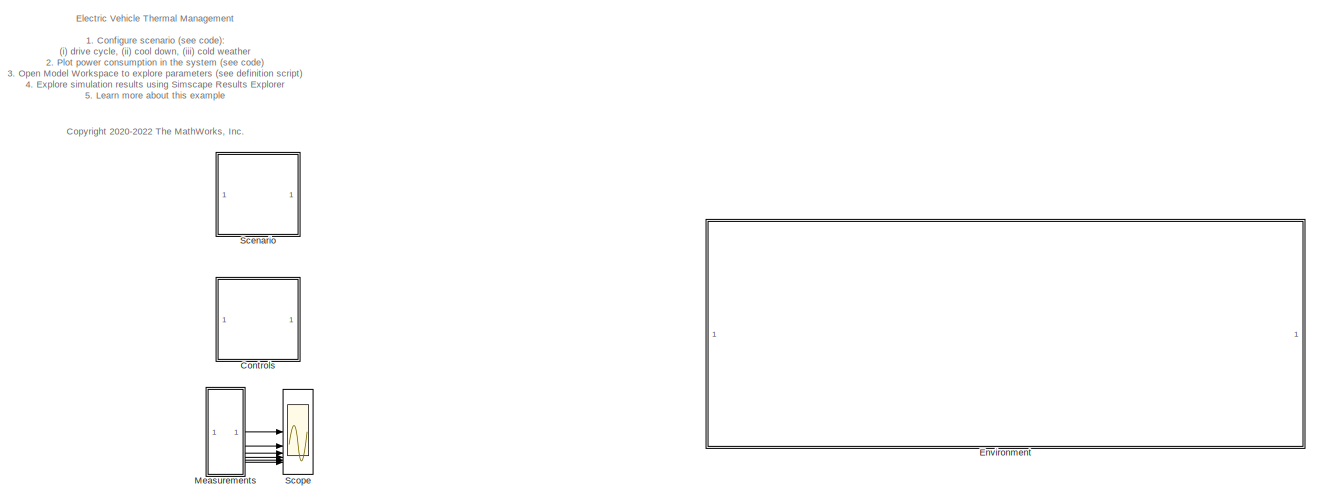
[diagram: root canvas - part 1/2, full width, top band]
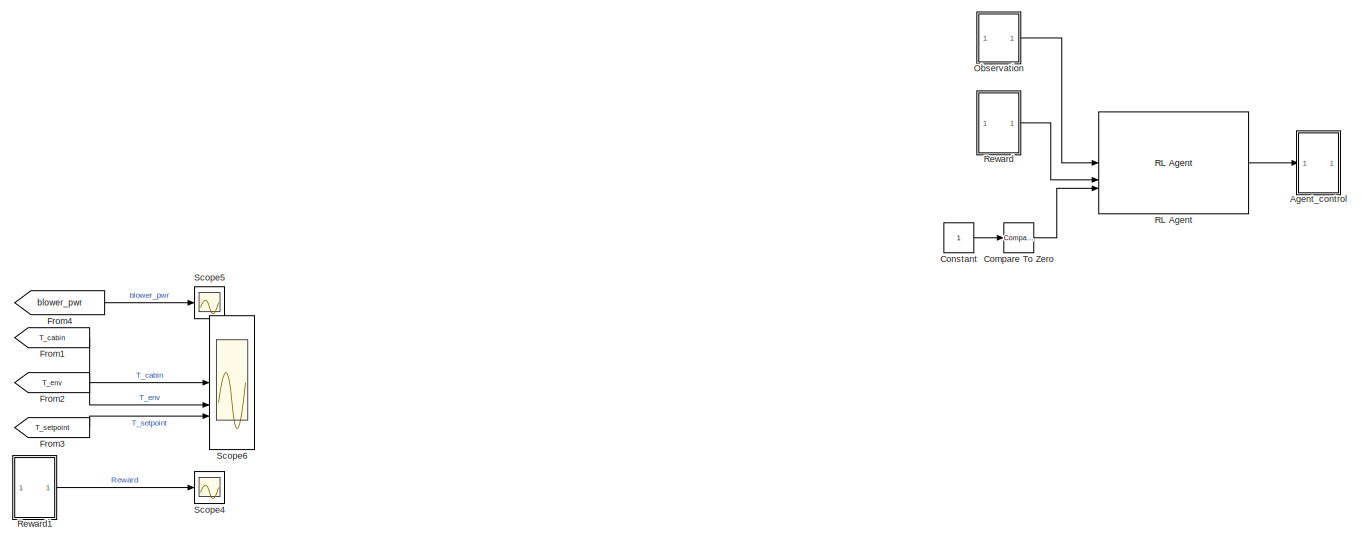
[diagram: root canvas - part 2/2, full width, bottom band]
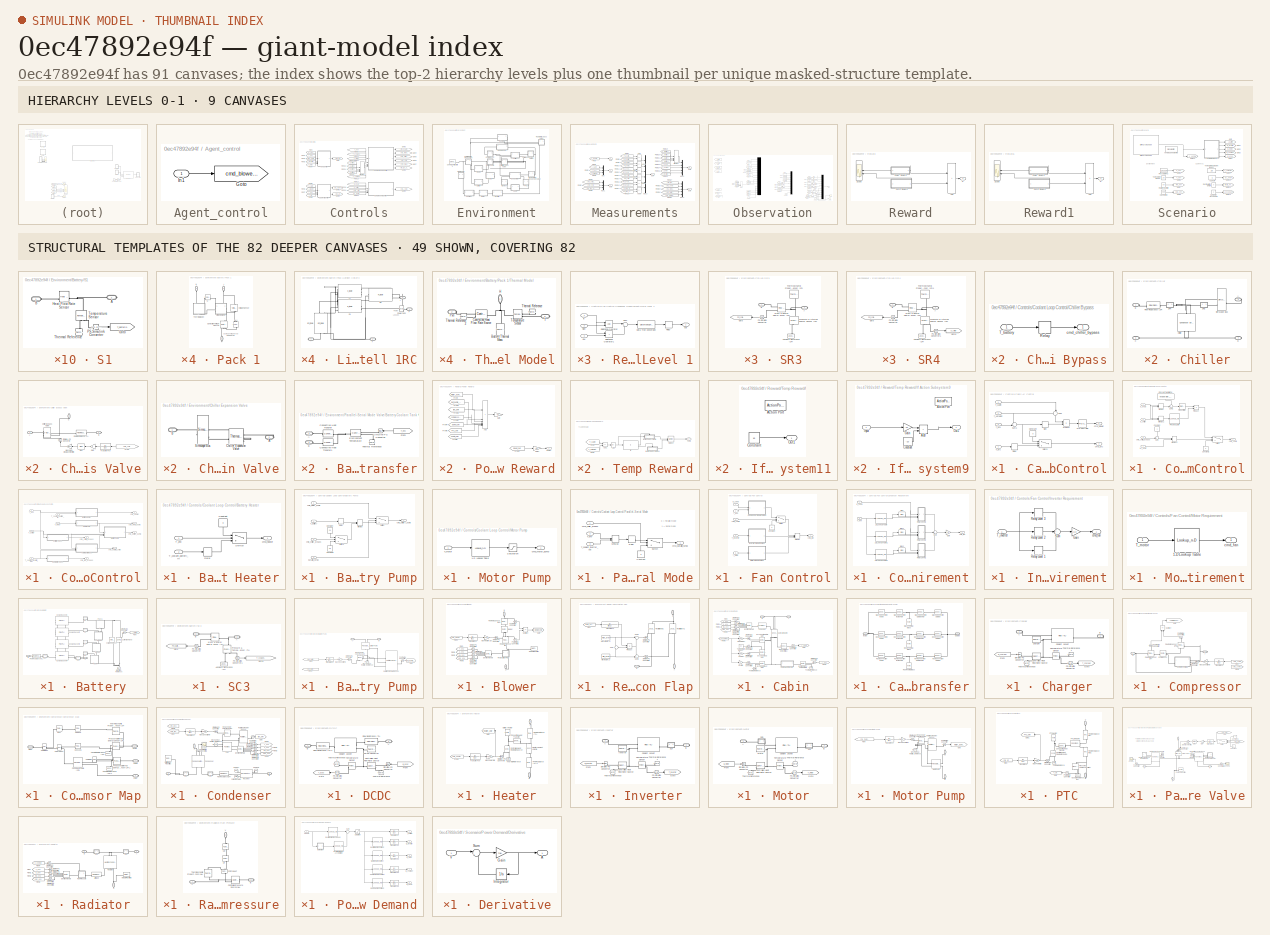
[diagram: thumbnail index - top-2 hierarchy levels (9 canvases) + 49 structural-template representatives of the remaining 82 canvases]
MODEL slx_0ec47892e94f
KIND model
CONFIG AbsTol = 1e-3
CONFIG EnableMultiTasking = off
CONFIG FixedStep = auto
CONFIG MaxStep = auto
CONFIG MinStep = auto
CONFIG RelTol = 1e-3
CONFIG SampleTimeConstraint = Unconstrained
CONFIG SolverName = VariableStepAuto
CONFIG StartTime = 0.0
CONFIG StopTime = 1000
WORKSPACE source: external: MATLAB File  (data not in archive)
BLOCK [SubSystem] Agent_control
  Commented = on
BLOCK [Goto] Agent_control/Goto
  GotoTag = cmd_blower2
  TagVisibility = global
BLOCK [Inport] Agent_control/In1
BLOCK [Reference] Compare To Zero  REF=simulink/Logic and Bit
Operations/Compare
To Zero
  Commented = on
  SourceBlock = simulink/Logic and Bit\nOperations/Compare\nTo Zero
  SourceType = Compare To Zero
BLOCK [Constant] Constant
  Commented = on
BLOCK [SubSystem] Controls
  Tag = PublishSubsystem
BLOCK [SubSystem] Controls/Cabin Air Control
BLOCK [Constant] Controls/Cabin Air Control/Constant
  NameLocation = right
  Value = 0
BLOCK [Reference] Controls/Cabin Air Control/PID Controller  REF=slpidlib/PID Controller
  SourceBlock = slpidlib/PID Controller
  SourceType = PID 1dof
BLOCK [Product] Controls/Cabin Air Control/Product
BLOCK [Relay] Controls/Cabin Air Control/Relay
  OffOutputValue = 1
  OffSwitchValue = 35
  OnOutputValue = 0
  OnSwitchValue = 45
  ZeroCross = off
BLOCK [Signum] Controls/Cabin Air Control/Sign
BLOCK [Sum] Controls/Cabin Air Control/Sum
  Inputs = -+|
  NameLocation = right
BLOCK [Sum] Controls/Cabin Air Control/Sum1
  Inputs = -+|
BLOCK [Switch] Controls/Cabin Air Control/Switch
  InputSameDT = off
  SaturateOnIntegerOverflow = off
BLOCK [Inport] Controls/Cabin Air Control/T_cabin
BLOCK [Inport] Controls/Cabin Air Control/T_env
  Port = 3
BLOCK [Inport] Controls/Cabin Air Control/T_ptc
  Port = 4
BLOCK [Inport] Controls/Cabin Air Control/T_setpoint
  Port = 2
BLOCK [Outport] Controls/Cabin Air Control/cmd_blower
BLOCK [Outport] Controls/Cabin Air Control/cmd_ptc
  Port = 2
BLOCK [SubSystem] Controls/Compressor Control
BLOCK [Constant] Controls/Compressor Control/Constant
  NameLocation = right
BLOCK [Constant] Controls/Compressor Control/Constant1
  NameLocation = right
  Value = 0
BLOCK [Lookup_n-D] Controls/Compressor Control/Freezing Cutoff
  BeginIndexSearchUsingPreviousIndexResult = on
  BreakpointsForDimension1 = [0 0.15 0.25 0.4]
  IndexSearchMethod = Linear search
  InputPortMap = u0
  InternalRulePriority = Speed
  NumberOfTableDimensions = 1
  RndMeth = Simplest
  Table = [0 0 1 1]
BLOCK [MinMax] Controls/Compressor Control/MinMax
  Function = max
  Inputs = 2
  ZeroCross = off
BLOCK [MinMax] Controls/Compressor Control/MinMax1
  Inputs = 2
  ZeroCross = off
BLOCK [MinMax] Controls/Compressor Control/MinMax2
  Function = max
  Inputs = 2
BLOCK [Reference] Controls/Compressor Control/PID Controller  REF=slpidlib/PID Controller
  SourceBlock = slpidlib/PID Controller
  SourceType = PID 1dof
BLOCK [Constant] Controls/Compressor Control/Pressure Target [MPa]
  NameLocation = right
  Value = evaporator_P_target
BLOCK [Product] Controls/Compressor Control/Product
BLOCK [Sum] Controls/Compressor Control/Sum
  Inputs = +-|
BLOCK [Sum] Controls/Compressor Control/Sum1
  Inputs = -+|
BLOCK [Switch] Controls/Compressor Control/Switch
  Criteria = u2 > Threshold
  InputSameDT = off
  SaturateOnIntegerOverflow = off
  Threshold = 0.5
BLOCK [Inport] Controls/Compressor Control/ac_onoff
  Port = 4
BLOCK [Inport] Controls/Compressor Control/cmd_chiller_bypass
  Port = 3
BLOCK [Outport] Controls/Compressor Control/cmd_comp
BLOCK [Inport] Controls/Compressor Control/p_chiller
  Port = 2
BLOCK [Inport] Controls/Compressor Control/p_evap
BLOCK [SubSystem] Controls/Coolant Loop Control
BLOCK [SubSystem] Controls/Coolant Loop Control/Battery Heater
BLOCK [Constant] Controls/Coolant Loop Control/Battery Heater/Constant
  NameLocation = right
  Value = 0
BLOCK [Relay] Controls/Coolant Loop Control/Battery Heater/Relay
  OffOutputValue = 1
  OffSwitchValue = 5
  OnOutputValue = 0
  OnSwitchValue = 15
  ZeroCross = off
BLOCK [Switch] Controls/Coolant Loop Control/Battery Heater/Switch
  Criteria = u2 > Threshold
  InputSameDT = off
  SaturateOnIntegerOverflow = off
  Threshold = 5
BLOCK [Inport] Controls/Coolant Loop Control/Battery Heater/T_coolant_battery_in
  Port = 2
BLOCK [Inport] Controls/Coolant Loop Control/Battery Heater/T_env
BLOCK [Outport] Controls/Coolant Loop Control/Battery Heater/cmd_heater
BLOCK [SubSystem] Controls/Coolant Loop Control/Battery Pump
BLOCK [Constant] Controls/Coolant Loop Control/Battery Pump/Constant
  NameLocation = right
  Value = 0.3
BLOCK [Constant] Controls/Coolant Loop Control/Battery Pump/Constant1
  NameLocation = right
  Value = 0.5
BLOCK [MinMax] Controls/Coolant Loop Control/Battery Pump/MinMax
  Function = max
  Inputs = 2
BLOCK [Relay] Controls/Coolant Loop Control/Battery Pump/Relay
  OffSwitchValue = 45
  OnSwitchValue = 50
BLOCK [Switch] Controls/Coolant Loop Control/Battery Pump/Switch
  Criteria = u2 > Threshold
  InputSameDT = off
  SaturateOnIntegerOverflow = off
  Threshold = 0.5
BLOCK [Switch] Controls/Coolant Loop Control/Battery Pump/Switch1
  Criteria = u2 > Threshold
  InputSameDT = off
  SaturateOnIntegerOverflow = off
  Threshold = 0.5
BLOCK [Inport] Controls/Coolant Loop Control/Battery Pump/T_battery
  Port = 2
BLOCK [Outport] Controls/Coolant Loop Control/Battery Pump/cmd_battery_pump
BLOCK [Inport] Controls/Coolant Loop Control/Battery Pump/cmd_chiller_bypass
  Port = 3
BLOCK [Inport] Controls/Coolant Loop Control/Battery Pump/cmd_motor_pump
BLOCK [Inport] Controls/Coolant Loop Control/Battery Pump/parallel_serial
  Port = 4
BLOCK [SubSystem] Controls/Coolant Loop Control/Chiller Bypass
BLOCK [Relay] Controls/Coolant Loop Control/Chiller Bypass/Relay
  OffOutputValue = 1
  OffSwitchValue = 30
  OnOutputValue = 0
  OnSwitchValue = 35
BLOCK [Inport] Controls/Coolant Loop Control/Chiller Bypass/T_battery
BLOCK [Outport] Controls/Coolant Loop Control/Chiller Bypass/cmd_chiller_bypass
BLOCK [SubSystem] Controls/Coolant Loop Control/Motor Pump
BLOCK [Lookup_n-D] Controls/Coolant Loop Control/Motor Pump/1-D Lookup Table
  BeginIndexSearchUsingPreviousIndexResult = on
  BreakpointsForDimension1 = [-50 45 48 52 58 60 75 130]
  IndexSearchMethod = Linear search
  InputPortMap = u0
  InternalRulePriority = Speed
  NumberOfTableDimensions = 1
  RndMeth = Simplest
  Table = [0 0 0.1 0.3 0.5 0.7 1 1]
BLOCK [Saturate] Controls/Coolant Loop Control/Motor Pump/Saturation
  LowerLimit = 0.3
  UpperLimit = 1
BLOCK [Inport] Controls/Coolant Loop Control/Motor Pump/T_motor
BLOCK [Outport] Controls/Coolant Loop Control/Motor Pump/cmd_motor_pump
BLOCK [SubSystem] Controls/Coolant Loop Control/Parallel-Serial Mode
BLOCK [Constant] Controls/Coolant Loop Control/Parallel-Serial Mode/Constant
  NameLocation = right
  Value = 0
BLOCK [MinMax] Controls/Coolant Loop Control/Parallel-Serial Mode/MinMax
  Function = max
  Inputs = 2
BLOCK [Relay] Controls/Coolant Loop Control/Parallel-Serial Mode/Relay
  OffOutputValue = 1
  OffSwitchValue = 30
  OnOutputValue = 0
  OnSwitchValue = 35
BLOCK [Switch] Controls/Coolant Loop Control/Parallel-Serial Mode/Switch
  Criteria = u2 > Threshold
  InputSameDT = off
  SaturateOnIntegerOverflow = off
  Threshold = 0.5
BLOCK [Inport] Controls/Coolant Loop Control/Parallel-Serial Mode/T_coolant_inverter_out
  Port = 3
BLOCK [Inport] Controls/Coolant Loop Control/Parallel-Serial Mode/T_env
  Port = 2
BLOCK [Inport] Controls/Coolant Loop Control/Parallel-Serial Mode/cmd_chiller_bypass
BLOCK [Outport] Controls/Coolant Loop Control/Parallel-Serial Mode/cmd_parallel_serial
BLOCK [SubSystem] Controls/Coolant Loop Control/Radiator Bypass
BLOCK [Relay] Controls/Coolant Loop Control/Radiator Bypass/Relay
  OffOutputValue = 1
  OffSwitchValue = 20
  OnOutputValue = 0
  OnSwitchValue = 25
BLOCK [Inport] Controls/Coolant Loop Control/Radiator Bypass/T_coolant_inverter_out
BLOCK [Outport] Controls/Coolant Loop Control/Radiator Bypass/cmd_rad_bypass
BLOCK [Inport] Controls/Coolant Loop Control/T_battery
  Port = 4
BLOCK [Inport] Controls/Coolant Loop Control/T_coolant_battery_in
  Port = 2
BLOCK [Inport] Controls/Coolant Loop Control/T_coolant_inverter_out
  Port = 5
BLOCK [Inport] Controls/Coolant Loop Control/T_env
BLOCK [Inport] Controls/Coolant Loop Control/T_motor
  Port = 3
BLOCK [Outport] Controls/Coolant Loop Control/cmd_battery_pump
  Port = 3
BLOCK [Outport] Controls/Coolant Loop Control/cmd_chiller_bypass
  Port = 4
BLOCK [Outport] Controls/Coolant Loop Control/cmd_heater
BLOCK [Outport] Controls/Coolant Loop Control/cmd_motor_pump
  Port = 2
BLOCK [Outport] Controls/Coolant Loop Control/cmd_parallel_serial
  Port = 5
BLOCK [Outport] Controls/Coolant Loop Control/cmd_rad_bypass
  Port = 6
BLOCK [SubSystem] Controls/Fan Control
BLOCK [SubSystem] Controls/Fan Control/Condenser Requirement
BLOCK [Lookup_n-D] Controls/Fan Control/Condenser Requirement/1-D Lookup Table
  BeginIndexSearchUsingPreviousIndexResult = on
  BreakpointsForDimension1 = [0 20 30 40 50]
  IndexSearchMethod = Linear search
  InputPortMap = u0
  InternalRulePriority = Speed
  NumberOfTableDimensions = 1
  RndMeth = Simplest
  Table = [2.0 2.0 1.8 1.5 1.3]
BLOCK [Lookup_n-D] Controls/Fan Control/Condenser Requirement/1-D Lookup Table1
  BeginIndexSearchUsingPreviousIndexResult = on
  BreakpointsForDimension1 = [0 20 30 40 50]
  IndexSearchMethod = Linear search
  InputPortMap = u0
  InternalRulePriority = Speed
  NumberOfTableDimensions = 1
  RndMeth = Simplest
  Table = [1.4 1.4 1.3 1.2 1.1]
BLOCK [Lookup_n-D] Controls/Fan Control/Condenser Requirement/1-D Lookup Table2
  BeginIndexSearchUsingPreviousIndexResult = on
  BreakpointsForDimension1 = [0 20 30 40 50]
  IndexSearchMethod = Linear search
  InputPortMap = u0
  InternalRulePriority = Speed
  NumberOfTableDimensions = 1
  RndMeth = Simplest
  Table = [0.8 0.8 0.8 0.8 0.8]
BLOCK [Bias] Controls/Fan Control/Condenser Requirement/Bias
  Bias = 0.4
  SaturateOnIntegerOverflow = off
BLOCK [Bias] Controls/Fan Control/Condenser Requirement/Bias1
  Bias = 0.4
  SaturateOnIntegerOverflow = off
BLOCK [Bias] Controls/Fan Control/Condenser Requirement/Bias2
  Bias = 0.3
  SaturateOnIntegerOverflow = off
BLOCK [Gain] Controls/Fan Control/Condenser Requirement/Gain
  Gain = 1/3
BLOCK [SubSystem] Controls/Fan Control/Condenser Requirement/Relay Level 1
BLOCK [DataTypeConversion] Controls/Fan Control/Condenser Requirement/Relay Level 1/Data Type Conversion
  RndMeth = Floor
  SaturateOnIntegerOverflow = off
BLOCK [RelationalOperator] Controls/Fan Control/Condenser Requirement/Relay Level 1/Relational Operator
  InputSameDT = off
  OutDataTypeStr = boolean
  RndMeth = Simplest
BLOCK [RelationalOperator] Controls/Fan Control/Condenser Requirement/Relay Level 1/Relational Operator1
  InputSameDT = off
  Operator = >
  OutDataTypeStr = boolean
  RndMeth = Simplest
BLOCK [Relay] Controls/Fan Control/Condenser Requirement/Relay Level 1/Relay
  OffSwitchValue = 0.5
  OnSwitchValue = 1.5
BLOCK [Sum] Controls/Fan Control/Condenser Requirement/Relay Level 1/Sum
  Inputs = |++
BLOCK [Inport] Controls/Fan Control/Condenser Requirement/Relay Level 1/high
  Port = 2
BLOCK [Inport] Controls/Fan Control/Condenser Requirement/Relay Level 1/in
BLOCK [Inport] Controls/Fan Control/Condenser Requirement/Relay Level 1/low
  Port = 3
BLOCK [Outport] Controls/Fan Control/Condenser Requirement/Relay Level 1/out
BLOCK [SubSystem] Controls/Fan Control/Condenser Requirement/Relay Level 2
BLOCK [DataTypeConversion] Controls/Fan Control/Condenser Requirement/Relay Level 2/Data Type Conversion
  RndMeth = Floor
  SaturateOnIntegerOverflow = off
BLOCK [RelationalOperator] Controls/Fan Control/Condenser Requirement/Relay Level 2/Relational Operator
  InputSameDT = off
  OutDataTypeStr = boolean
  RndMeth = Simplest
BLOCK [RelationalOperator] Controls/Fan Control/Condenser Requirement/Relay Level 2/Relational Operator1
  InputSameDT = off
  Operator = >
  OutDataTypeStr = boolean
  RndMeth = Simplest
BLOCK [Relay] Controls/Fan Control/Condenser Requirement/Relay Level 2/Relay
  OffSwitchValue = 0.5
  OnSwitchValue = 1.5
BLOCK [Sum] Controls/Fan Control/Condenser Requirement/Relay Level 2/Sum
  Inputs = |++
BLOCK [Inport] Controls/Fan Control/Condenser Requirement/Relay Level 2/high
  Port = 2
BLOCK [Inport] Controls/Fan Control/Condenser Requirement/Relay Level 2/in
BLOCK [Inport] Controls/Fan Control/Condenser Requirement/Relay Level 2/low
  Port = 3
BLOCK [Outport] Controls/Fan Control/Condenser Requirement/Relay Level 2/out
BLOCK [SubSystem] Controls/Fan Control/Condenser Requirement/Relay Level 3
BLOCK [DataTypeConversion] Controls/Fan Control/Condenser Requirement/Relay Level 3/Data Type Conversion
  RndMeth = Floor
  SaturateOnIntegerOverflow = off
BLOCK [RelationalOperator] Controls/Fan Control/Condenser Requirement/Relay Level 3/Relational Operator
  InputSameDT = off
  OutDataTypeStr = boolean
  RndMeth = Simplest
BLOCK [RelationalOperator] Controls/Fan Control/Condenser Requirement/Relay Level 3/Relational Operator1
  InputSameDT = off
  Operator = >
  OutDataTypeStr = boolean
  RndMeth = Simplest
BLOCK [Relay] Controls/Fan Control/Condenser Requirement/Relay Level 3/Relay
  OffSwitchValue = 0.5
  OnSwitchValue = 1.5
BLOCK [Sum] Controls/Fan Control/Condenser Requirement/Relay Level 3/Sum
  Inputs = |++
BLOCK [Inport] Controls/Fan Control/Condenser Requirement/Relay Level 3/high
  Port = 2
BLOCK [Inport] Controls/Fan Control/Condenser Requirement/Relay Level 3/in
BLOCK [Inport] Controls/Fan Control/Condenser Requirement/Relay Level 3/low
  Port = 3
BLOCK [Outport] Controls/Fan Control/Condenser Requirement/Relay Level 3/out
BLOCK [Sum] Controls/Fan Control/Condenser Requirement/Sum
  Inputs = +++
BLOCK [Inport] Controls/Fan Control/Condenser Requirement/T_env
  Port = 2
BLOCK [Outport] Controls/Fan Control/Condenser Requirement/cmd_fan
BLOCK [Inport] Controls/Fan Control/Condenser Requirement/p_cond
BLOCK [Constant] Controls/Fan Control/Constant
  NameLocation = right
  Value = 0
BLOCK [SubSystem] Controls/Fan Control/Inverter Requirement
BLOCK [Gain] Controls/Fan Control/Inverter Requirement/Gain
  Gain = 1/3
BLOCK [Relay] Controls/Fan Control/Inverter Requirement/Relay Level 1
  OffSwitchValue = 65
  OnSwitchValue = 75
BLOCK [Relay] Controls/Fan Control/Inverter Requirement/Relay Level 2
  OffSwitchValue = 76
  OnSwitchValue = 85
BLOCK [Relay] Controls/Fan Control/Inverter Requirement/Relay Level 3
  OffSwitchValue = 86
  OnSwitchValue = 95
BLOCK [Sum] Controls/Fan Control/Inverter Requirement/Sum
  Inputs = +++
BLOCK [Inport] Controls/Fan Control/Inverter Requirement/T_inverter
BLOCK [Outport] Controls/Fan Control/Inverter Requirement/cmd_fan
BLOCK [MinMax] Controls/Fan Control/MinMax
  Function = max
  Inputs = 3
BLOCK [SubSystem] Controls/Fan Control/Motor Requirement
BLOCK [Lookup_n-D] Controls/Fan Control/Motor Requirement/1-D Lookup Table
  BeginIndexSearchUsingPreviousIndexResult = on
  BreakpointsForDimension1 = [-50 45 48 52 58 60 75 130]
  IndexSearchMethod = Linear search
  InputPortMap = u0
  InternalRulePriority = Speed
  NumberOfTableDimensions = 1
  RndMeth = Simplest
  Table = [0 0 0.1 0.3 0.5 0.7 1 1]
BLOCK [Inport] Controls/Fan Control/Motor Requirement/T_motor
BLOCK [Outport] Controls/Fan Control/Motor Requirement/cmd_fan
BLOCK [Switch] Controls/Fan Control/Switch
  Criteria = u2 > Threshold
  InputSameDT = off
  SaturateOnIntegerOverflow = off
BLOCK [Inport] Controls/Fan Control/T_env
  Port = 2
BLOCK [Inport] Controls/Fan Control/T_inverter
  Port = 4
BLOCK [Inport] Controls/Fan Control/T_motor
  Port = 5
BLOCK [Inport] Controls/Fan Control/cmd_comp
  Port = 3
BLOCK [Outport] Controls/Fan Control/cmd_fan
BLOCK [Inport] Controls/Fan Control/p_cond
BLOCK [From] Controls/From
  GotoTag = p_cond
  TagVisibility = global
BLOCK [From] Controls/From1
  GotoTag = T_env
  TagVisibility = global
BLOCK [From] Controls/From10
  GotoTag = T_coolant_battery_in
  TagVisibility = global
BLOCK [From] Controls/From11
  GotoTag = T_motor
  TagVisibility = global
BLOCK [From] Controls/From12
  GotoTag = T_battery1
  TagVisibility = global
BLOCK [From] Controls/From13
  GotoTag = T_battery2
  TagVisibility = global
BLOCK [From] Controls/From14
  GotoTag = T_battery3
  TagVisibility = global
BLOCK [From] Controls/From15
  GotoTag = T_battery4
  TagVisibility = global
BLOCK [From] Controls/From16
  GotoTag = T_coolant_inverter_out
  TagVisibility = global
BLOCK [From] Controls/From17
  GotoTag = p_evap
  TagVisibility = global
BLOCK [From] Controls/From18
  GotoTag = p_chiller
  TagVisibility = global
BLOCK [From] Controls/From19
  GotoTag = cmd_chiller_bypass
  TagVisibility = global
BLOCK [From] Controls/From2
  GotoTag = cmd_comp
  TagVisibility = global
BLOCK [From] Controls/From20
  GotoTag = ac_onoff
  TagVisibility = global
BLOCK [From] Controls/From3
  GotoTag = T_inverter
  TagVisibility = global
BLOCK [From] Controls/From4
  GotoTag = T_motor
  TagVisibility = global
BLOCK [From] Controls/From5
  GotoTag = T_cabin
  TagVisibility = global
BLOCK [From] Controls/From6
  GotoTag = T_setpoint
  TagVisibility = global
BLOCK [From] Controls/From7
  GotoTag = T_env
  TagVisibility = global
BLOCK [From] Controls/From8
  GotoTag = T_ptc
  TagVisibility = global
BLOCK [From] Controls/From9
  GotoTag = T_env
  TagVisibility = global
BLOCK [Goto] Controls/Goto
  GotoTag = cmd_fan
  TagVisibility = global
BLOCK [Goto] Controls/Goto1
  GotoTag = cmd_blower
  TagVisibility = global
BLOCK [Goto] Controls/Goto2
  GotoTag = cmd_ptc
  TagVisibility = global
BLOCK [Goto] Controls/Goto3
  GotoTag = cmd_heater
  TagVisibility = global
BLOCK [Goto] Controls/Goto4
  GotoTag = cmd_motor_pump
  TagVisibility = global
BLOCK [Goto] Controls/Goto5
  GotoTag = cmd_battery_pump
  TagVisibility = global
BLOCK [Goto] Controls/Goto6
  GotoTag = cmd_chiller_bypass
  TagVisibility = global
BLOCK [Goto] Controls/Goto7
  GotoTag = cmd_parallel_serial
  TagVisibility = global
BLOCK [Goto] Controls/Goto8
  GotoTag = cmd_rad_bypass
  TagVisibility = global
BLOCK [Goto] Controls/Goto9
  GotoTag = cmd_comp
  TagVisibility = global
BLOCK [MinMax] Controls/MinMax
  Function = max
  Inputs = 4
BLOCK [SubSystem] Environment
BLOCK [SubSystem] Environment/Battery
  Tag = PublishSubsystem
BLOCK [SubSystem] Environment/Battery Pump
  Tag = PublishSubsystem
BLOCK [PMIOPort] Environment/Battery Pump/A
  Side = Left
BLOCK [PMIOPort] Environment/Battery Pump/B
  Port = 2
  Side = Right
BLOCK [Reference] Environment/Battery Pump/Battery Pump  REF=SimscapeFluids_lib/Thermal Liquid/Pumps & Motors/Fixed-Displacement
Pump (TL)
  NameLocation = right
  SourceBlock = SimscapeFluids_lib/Thermal Liquid/Pumps & Motors/Fixed-Displacement\nPump (TL)
  SourceType = Fixed-Displacement\nPump (TL)
BLOCK [From] Environment/Battery Pump/From
  GotoTag = cmd_battery_pump
  TagVisibility = global
BLOCK [From] Environment/Battery Pump/From1
  Commented = on
  GotoTag = cmd_battery_pump_2
BLOCK [Goto] Environment/Battery Pump/Goto
  GotoTag = bat_pump_pwr
  TagVisibility = global
BLOCK [Reference] Environment/Battery Pump/Ideal Angular Velocity Source  REF=fl_lib/Mechanical/Mechanical Sources/Ideal Angular
Velocity Source
  NameLocation = right
  SourceBlock = fl_lib/Mechanical/Mechanical Sources/Ideal Angular\nVelocity Source
  SourceType = Ideal Angular\nVelocity Source
BLOCK [Gain] Environment/Battery Pump/Max Speed [rpm]
  Gain = pump_speed_max
BLOCK [Reference] Environment/Battery Pump/Mechanical Rotational Reference  REF=fl_lib/Mechanical/Rotational Elements/Mechanical
Rotational Reference
  NameLocation = right
  SourceBlock = fl_lib/Mechanical/Rotational Elements/Mechanical\nRotational Reference
  SourceType = Mechanical\nRotational Reference
BLOCK [Reference] Environment/Battery Pump/PS-Simulink Converter  REF=nesl_utility/PS-Simulink
Converter
  SourceBlock = nesl_utility/PS-Simulink\nConverter
  SourceType = PS-Simulink\nConverter
BLOCK [Reference] Environment/Battery Pump/Rotational Power Sensor  REF=sdl_lib/Sensors/Rotational Power
Sensor
  SourceBlock = sdl_lib/Sensors/Rotational Power\nSensor
  SourceType = Rotational Power\nSensor
BLOCK [Reference] Environment/Battery Pump/Simulink-PS Converter  REF=nesl_utility/Simulink-PS
Converter
  SourceBlock = nesl_utility/Simulink-PS\nConverter
  SourceType = Simulink-PS\nConverter
BLOCK [TransferFcn] Environment/Battery Pump/Transfer Fcn
  Denominator = [5 1]
BLOCK [PMIOPort] Environment/Battery/A
  Port = 2
  Side = Right
BLOCK [PMIOPort] Environment/Battery/B
  Side = Left
BLOCK [Reference] Environment/Battery/Coolant Jacket 1  REF=SimscapeFluids_lib/Thermal Liquid/Pipes & Fittings/Pipe (TL)
  SourceBlock = SimscapeFluids_lib/Thermal Liquid/Pipes & Fittings/Pipe (TL)
  SourceType = Pipe (TL)
BLOCK [Reference] Environment/Battery/Coolant Jacket 2  REF=SimscapeFluids_lib/Thermal Liquid/Pipes & Fittings/Pipe (TL)
  SourceBlock = SimscapeFluids_lib/Thermal Liquid/Pipes & Fittings/Pipe (TL)
  SourceType = Pipe (TL)
BLOCK [Reference] Environment/Battery/Coolant Jacket 3  REF=SimscapeFluids_lib/Thermal Liquid/Pipes & Fittings/Pipe (TL)
  SourceBlock = SimscapeFluids_lib/Thermal Liquid/Pipes & Fittings/Pipe (TL)
  SourceType = Pipe (TL)
BLOCK [Reference] Environment/Battery/Coolant Jacket 4  REF=SimscapeFluids_lib/Thermal Liquid/Pipes & Fittings/Pipe (TL)
  SourceBlock = SimscapeFluids_lib/Thermal Liquid/Pipes & Fittings/Pipe (TL)
  SourceType = Pipe (TL)
BLOCK [Reference] Environment/Battery/Current Demand  REF=fl_lib/Electrical/Electrical Sources/Controlled Current
Source
  NameLocation = right
  SourceBlock = fl_lib/Electrical/Electrical Sources/Controlled Current\nSource
  SourceType = Controlled Current\nSource
BLOCK [Reference] Environment/Battery/Electrical Reference  REF=fl_lib/Electrical/Electrical Elements/Electrical Reference
  NameLocation = right
  SourceBlock = fl_lib/Electrical/Electrical Elements/Electrical Reference
  SourceType = Electrical Reference
BLOCK [Reference] Environment/Battery/Flow Resistance (TL)  REF=fl_lib/Thermal Liquid/Elements/Flow Resistance (TL)
  SourceBlock = fl_lib/Thermal Liquid/Elements/Flow Resistance (TL)
  SourceType = Flow Resistance (TL)
BLOCK [From] Environment/Battery/From
  GotoTag = I_battery
  TagVisibility = global
BLOCK [SubSystem] Environment/Battery/Pack 1
  NameLocation = right
  Tag = PublishSubsystem
BLOCK [PMIOPort] Environment/Battery/Pack 1/+
  NameLocation = right
  Port = 3
  Side = Left
BLOCK [PMIOPort] Environment/Battery/Pack 1/-
  NameLocation = right
  Side = Right
BLOCK [Reference] Environment/Battery/Pack 1/Controlled Voltage Source  REF=fl_lib/Electrical/Electrical Sources/Controlled Voltage
Source
  NameLocation = left
  SourceBlock = fl_lib/Electrical/Electrical Sources/Controlled Voltage\nSource
  SourceType = Controlled Voltage\nSource
BLOCK [PMIOPort] Environment/Battery/Pack 1/H
  NameLocation = right
  Port = 2
  Side = Left
BLOCK [SubSystem] Environment/Battery/Pack 1/Lithium Cell 1RC
  NameLocation = left
  PortSchema = {"entries":[{"content":{"sides":[{"content":{"connectorIds":[]},"type":"ConnectorPlacement.EquallySpacedRectSide","uuid":"ccb9f794-c2a7-49a2-9836-26607ca18a9f"},{"content":{"connectorIds":[],"side":"RIGHT"},"type":"ConnectorPlacement.EquallySpacedRectSide","uuid":"f1620ab9-2b03-42d4-871e-d35b8093f316"},{"content":{"connectorIds":["LConn1","LConn2"],"side":"TOP"},"type":"ConnectorPlacement.EquallyS...<+551ch>  <repeated x4 — deduplicated; at blocks: Lithium Cell 1RC>
BLOCK [PMIOPort] Environment/Battery/Pack 1/Lithium Cell 1RC/+
  Port = 2
  Side = Left
BLOCK [PMIOPort] Environment/Battery/Pack 1/Lithium Cell 1RC/-
  NameLocation = top
  Port = 4
  Side = Right
BLOCK [Reference] Environment/Battery/Pack 1/Lithium Cell 1RC/C1  REF=LiBatteryElements_lib/C_table
  NameLocation = top
  SourceBlock = LiBatteryElements_lib/C_table
  SourceType = C_table
BLOCK [Reference] Environment/Battery/Pack 1/Lithium Cell 1RC/Em_table  REF=LiBatteryElements_lib/Em_table
  NameLocation = right
  SourceBlock = LiBatteryElements_lib/Em_table
  SourceType = Em_table
BLOCK [PMIOPort] Environment/Battery/Pack 1/Lithium Cell 1RC/P
  Side = Left
BLOCK [Reference] Environment/Battery/Pack 1/Lithium Cell 1RC/Power Sum  REF=fl_lib/Physical Signals/Functions/PS Add
  NameLocation = top
  SourceBlock = fl_lib/Physical Signals/Functions/PS Add
  SourceType = PS Add
BLOCK [Reference] Environment/Battery/Pack 1/Lithium Cell 1RC/R0  REF=LiBatteryElements_lib/R_table
  SourceBlock = LiBatteryElements_lib/R_table
  SourceType = R_table
BLOCK [Reference] Environment/Battery/Pack 1/Lithium Cell 1RC/R1  REF=LiBatteryElements_lib/R_table
  SourceBlock = LiBatteryElements_lib/R_table
  SourceType = R_table
BLOCK [PMIOPort] Environment/Battery/Pack 1/Lithium Cell 1RC/T
  Port = 3
  Side = Right
BLOCK [Reference] Environment/Battery/Pack 1/N  REF=fl_lib/Physical Signals/Functions/PS Gain
  NameLocation = top
  SourceBlock = fl_lib/Physical Signals/Functions/PS Gain
  SourceType = PS Gain
BLOCK [Reference] Environment/Battery/Pack 1/N-1  REF=fl_lib/Physical Signals/Functions/PS Gain
  NameLocation = right
  SourceBlock = fl_lib/Physical Signals/Functions/PS Gain
  SourceType = PS Gain
BLOCK [SubSystem] Environment/Battery/Pack 1/Thermal Model
  NameLocation = left
BLOCK [Reference] Environment/Battery/Pack 1/Thermal Model/Battery Thermal Mass  REF=fl_lib/Thermal/Thermal Elements/Thermal Mass
  NameLocation = right
  SourceBlock = fl_lib/Thermal/Thermal Elements/Thermal Mass
  SourceType = Thermal Mass
BLOCK [Reference] Environment/Battery/Pack 1/Thermal Model/Controlled Heat Flow Rate Source  REF=fl_lib/Thermal/Thermal Sources/Controlled Heat Flow
Rate Source
  SourceBlock = fl_lib/Thermal/Thermal Sources/Controlled Heat Flow\nRate Source
  SourceType = Controlled Heat Flow\nRate Source
BLOCK [PMIOPort] Environment/Battery/Pack 1/Thermal Model/H
  NameLocation = right
  Side = Left
BLOCK [PMIOPort] Environment/Battery/Pack 1/Thermal Model/Pxn
  Port = 2
  Side = Left
BLOCK [PMIOPort] Environment/Battery/Pack 1/Thermal Model/T
  Port = 3
  Side = Right
BLOCK [Reference] Environment/Battery/Pack 1/Thermal Model/Temperature Sensor  REF=fl_lib/Thermal/Thermal Sensors/Temperature Sensor
  SourceBlock = fl_lib/Thermal/Thermal Sensors/Temperature Sensor
  SourceType = Temperature Sensor
BLOCK [Reference] Environment/Battery/Pack 1/Thermal Model/Thermal Reference  REF=fl_lib/Thermal/Thermal Elements/Thermal Reference
  NameLocation = top
  SourceBlock = fl_lib/Thermal/Thermal Elements/Thermal Reference
  SourceType = Thermal Reference
BLOCK [Reference] Environment/Battery/Pack 1/Thermal Model/Thermal Reference2  REF=fl_lib/Thermal/Thermal Elements/Thermal Reference
  SourceBlock = fl_lib/Thermal/Thermal Elements/Thermal Reference
  SourceType = Thermal Reference
BLOCK [Reference] Environment/Battery/Pack 1/Voltage Sensor  REF=fl_lib/Electrical/Electrical Sensors/Voltage Sensor
  NameLocation = right
  SourceBlock = fl_lib/Electrical/Electrical Sensors/Voltage Sensor
  SourceType = Voltage Sensor
BLOCK [SubSystem] Environment/Battery/Pack 2
  NameLocation = right
BLOCK [PMIOPort] Environment/Battery/Pack 2/+
  NameLocation = right
  Port = 3
  Side = Left
BLOCK [PMIOPort] Environment/Battery/Pack 2/-
  NameLocation = right
  Side = Right
BLOCK [Reference] Environment/Battery/Pack 2/Controlled Voltage Source  REF=fl_lib/Electrical/Electrical Sources/Controlled Voltage
Source
  NameLocation = left
  SourceBlock = fl_lib/Electrical/Electrical Sources/Controlled Voltage\nSource
  SourceType = Controlled Voltage\nSource
BLOCK [PMIOPort] Environment/Battery/Pack 2/H
  NameLocation = right
  Port = 2
  Side = Left
BLOCK [SubSystem] Environment/Battery/Pack 2/Lithium Cell 1RC
  NameLocation = left
BLOCK [PMIOPort] Environment/Battery/Pack 2/Lithium Cell 1RC/+
  Port = 2
  Side = Left
BLOCK [PMIOPort] Environment/Battery/Pack 2/Lithium Cell 1RC/-
  NameLocation = top
  Port = 4
  Side = Right
BLOCK [Reference] Environment/Battery/Pack 2/Lithium Cell 1RC/C1  REF=LiBatteryElements_lib/C_table
  NameLocation = top
  SourceBlock = LiBatteryElements_lib/C_table
  SourceType = C_table
BLOCK [Reference] Environment/Battery/Pack 2/Lithium Cell 1RC/Em_table  REF=LiBatteryElements_lib/Em_table
  NameLocation = right
  SourceBlock = LiBatteryElements_lib/Em_table
  SourceType = Em_table
BLOCK [PMIOPort] Environment/Battery/Pack 2/Lithium Cell 1RC/P
  Side = Left
BLOCK [Reference] Environment/Battery/Pack 2/Lithium Cell 1RC/Power Sum  REF=fl_lib/Physical Signals/Functions/PS Add
  NameLocation = top
  SourceBlock = fl_lib/Physical Signals/Functions/PS Add
  SourceType = PS Add
BLOCK [Reference] Environment/Battery/Pack 2/Lithium Cell 1RC/R0  REF=LiBatteryElements_lib/R_table
  SourceBlock = LiBatteryElements_lib/R_table
  SourceType = R_table
BLOCK [Reference] Environment/Battery/Pack 2/Lithium Cell 1RC/R1  REF=LiBatteryElements_lib/R_table
  SourceBlock = LiBatteryElements_lib/R_table
  SourceType = R_table
BLOCK [PMIOPort] Environment/Battery/Pack 2/Lithium Cell 1RC/T
  Port = 3
  Side = Right
BLOCK [Reference] Environment/Battery/Pack 2/N  REF=fl_lib/Physical Signals/Functions/PS Gain
  NameLocation = top
  SourceBlock = fl_lib/Physical Signals/Functions/PS Gain
  SourceType = PS Gain
BLOCK [Reference] Environment/Battery/Pack 2/N-1  REF=fl_lib/Physical Signals/Functions/PS Gain
  NameLocation = right
  SourceBlock = fl_lib/Physical Signals/Functions/PS Gain
  SourceType = PS Gain
BLOCK [SubSystem] Environment/Battery/Pack 2/Thermal Model
  NameLocation = left
BLOCK [Reference] Environment/Battery/Pack 2/Thermal Model/Battery Thermal Mass  REF=fl_lib/Thermal/Thermal Elements/Thermal Mass
  NameLocation = right
  SourceBlock = fl_lib/Thermal/Thermal Elements/Thermal Mass
  SourceType = Thermal Mass
BLOCK [Reference] Environment/Battery/Pack 2/Thermal Model/Controlled Heat Flow Rate Source  REF=fl_lib/Thermal/Thermal Sources/Controlled Heat Flow
Rate Source
  SourceBlock = fl_lib/Thermal/Thermal Sources/Controlled Heat Flow\nRate Source
  SourceType = Controlled Heat Flow\nRate Source
BLOCK [PMIOPort] Environment/Battery/Pack 2/Thermal Model/H
  NameLocation = right
  Side = Left
BLOCK [PMIOPort] Environment/Battery/Pack 2/Thermal Model/Pxn
  Port = 2
  Side = Left
BLOCK [PMIOPort] Environment/Battery/Pack 2/Thermal Model/T
  Port = 3
  Side = Right
BLOCK [Reference] Environment/Battery/Pack 2/Thermal Model/Temperature Sensor  REF=fl_lib/Thermal/Thermal Sensors/Temperature Sensor
  SourceBlock = fl_lib/Thermal/Thermal Sensors/Temperature Sensor
  SourceType = Temperature Sensor
BLOCK [Reference] Environment/Battery/Pack 2/Thermal Model/Thermal Reference  REF=fl_lib/Thermal/Thermal Elements/Thermal Reference
  NameLocation = top
  SourceBlock = fl_lib/Thermal/Thermal Elements/Thermal Reference
  SourceType = Thermal Reference
BLOCK [Reference] Environment/Battery/Pack 2/Thermal Model/Thermal Reference2  REF=fl_lib/Thermal/Thermal Elements/Thermal Reference
  SourceBlock = fl_lib/Thermal/Thermal Elements/Thermal Reference
  SourceType = Thermal Reference
BLOCK [Reference] Environment/Battery/Pack 2/Voltage Sensor  REF=fl_lib/Electrical/Electrical Sensors/Voltage Sensor
  NameLocation = right
  SourceBlock = fl_lib/Electrical/Electrical Sensors/Voltage Sensor
  SourceType = Voltage Sensor
BLOCK [SubSystem] Environment/Battery/Pack 3
  NameLocation = right
BLOCK [PMIOPort] Environment/Battery/Pack 3/+
  NameLocation = right
  Port = 3
  Side = Left
BLOCK [PMIOPort] Environment/Battery/Pack 3/-
  NameLocation = right
  Side = Right
BLOCK [Reference] Environment/Battery/Pack 3/Controlled Voltage Source  REF=fl_lib/Electrical/Electrical Sources/Controlled Voltage
Source
  NameLocation = left
  SourceBlock = fl_lib/Electrical/Electrical Sources/Controlled Voltage\nSource
  SourceType = Controlled Voltage\nSource
BLOCK [PMIOPort] Environment/Battery/Pack 3/H
  NameLocation = right
  Port = 2
  Side = Left
BLOCK [SubSystem] Environment/Battery/Pack 3/Lithium Cell 1RC
  NameLocation = left
BLOCK [PMIOPort] Environment/Battery/Pack 3/Lithium Cell 1RC/+
  Port = 2
  Side = Left
BLOCK [PMIOPort] Environment/Battery/Pack 3/Lithium Cell 1RC/-
  NameLocation = top
  Port = 4
  Side = Right
BLOCK [Reference] Environment/Battery/Pack 3/Lithium Cell 1RC/C1  REF=LiBatteryElements_lib/C_table
  NameLocation = top
  SourceBlock = LiBatteryElements_lib/C_table
  SourceType = C_table
BLOCK [Reference] Environment/Battery/Pack 3/Lithium Cell 1RC/Em_table  REF=LiBatteryElements_lib/Em_table
  NameLocation = right
  SourceBlock = LiBatteryElements_lib/Em_table
  SourceType = Em_table
BLOCK [PMIOPort] Environment/Battery/Pack 3/Lithium Cell 1RC/P
  Side = Left
BLOCK [Reference] Environment/Battery/Pack 3/Lithium Cell 1RC/Power Sum  REF=fl_lib/Physical Signals/Functions/PS Add
  NameLocation = top
  SourceBlock = fl_lib/Physical Signals/Functions/PS Add
  SourceType = PS Add
BLOCK [Reference] Environment/Battery/Pack 3/Lithium Cell 1RC/R0  REF=LiBatteryElements_lib/R_table
  SourceBlock = LiBatteryElements_lib/R_table
  SourceType = R_table
BLOCK [Reference] Environment/Battery/Pack 3/Lithium Cell 1RC/R1  REF=LiBatteryElements_lib/R_table
  SourceBlock = LiBatteryElements_lib/R_table
  SourceType = R_table
BLOCK [PMIOPort] Environment/Battery/Pack 3/Lithium Cell 1RC/T
  Port = 3
  Side = Right
BLOCK [Reference] Environment/Battery/Pack 3/N  REF=fl_lib/Physical Signals/Functions/PS Gain
  NameLocation = top
  SourceBlock = fl_lib/Physical Signals/Functions/PS Gain
  SourceType = PS Gain
BLOCK [Reference] Environment/Battery/Pack 3/N-1  REF=fl_lib/Physical Signals/Functions/PS Gain
  NameLocation = right
  SourceBlock = fl_lib/Physical Signals/Functions/PS Gain
  SourceType = PS Gain
BLOCK [SubSystem] Environment/Battery/Pack 3/Thermal Model
  NameLocation = left
BLOCK [Reference] Environment/Battery/Pack 3/Thermal Model/Battery Thermal Mass  REF=fl_lib/Thermal/Thermal Elements/Thermal Mass
  NameLocation = right
  SourceBlock = fl_lib/Thermal/Thermal Elements/Thermal Mass
  SourceType = Thermal Mass
BLOCK [Reference] Environment/Battery/Pack 3/Thermal Model/Controlled Heat Flow Rate Source  REF=fl_lib/Thermal/Thermal Sources/Controlled Heat Flow
Rate Source
  SourceBlock = fl_lib/Thermal/Thermal Sources/Controlled Heat Flow\nRate Source
  SourceType = Controlled Heat Flow\nRate Source
BLOCK [PMIOPort] Environment/Battery/Pack 3/Thermal Model/H
  NameLocation = right
  Side = Left
BLOCK [PMIOPort] Environment/Battery/Pack 3/Thermal Model/Pxn
  Port = 2
  Side = Left
BLOCK [PMIOPort] Environment/Battery/Pack 3/Thermal Model/T
  Port = 3
  Side = Right
BLOCK [Reference] Environment/Battery/Pack 3/Thermal Model/Temperature Sensor  REF=fl_lib/Thermal/Thermal Sensors/Temperature Sensor
  SourceBlock = fl_lib/Thermal/Thermal Sensors/Temperature Sensor
  SourceType = Temperature Sensor
BLOCK [Reference] Environment/Battery/Pack 3/Thermal Model/Thermal Reference  REF=fl_lib/Thermal/Thermal Elements/Thermal Reference
  NameLocation = top
  SourceBlock = fl_lib/Thermal/Thermal Elements/Thermal Reference
  SourceType = Thermal Reference
BLOCK [Reference] Environment/Battery/Pack 3/Thermal Model/Thermal Reference2  REF=fl_lib/Thermal/Thermal Elements/Thermal Reference
  SourceBlock = fl_lib/Thermal/Thermal Elements/Thermal Reference
  SourceType = Thermal Reference
BLOCK [Reference] Environment/Battery/Pack 3/Voltage Sensor  REF=fl_lib/Electrical/Electrical Sensors/Voltage Sensor
  NameLocation = right
  SourceBlock = fl_lib/Electrical/Electrical Sensors/Voltage Sensor
  SourceType = Voltage Sensor
BLOCK [SubSystem] Environment/Battery/Pack 4
  NameLocation = right
BLOCK [PMIOPort] Environment/Battery/Pack 4/+
  NameLocation = right
  Port = 3
  Side = Left
BLOCK [PMIOPort] Environment/Battery/Pack 4/-
  NameLocation = right
  Side = Right
BLOCK [Reference] Environment/Battery/Pack 4/Controlled Voltage Source  REF=fl_lib/Electrical/Electrical Sources/Controlled Voltage
Source
  NameLocation = left
  SourceBlock = fl_lib/Electrical/Electrical Sources/Controlled Voltage\nSource
  SourceType = Controlled Voltage\nSource
BLOCK [PMIOPort] Environment/Battery/Pack 4/H
  NameLocation = right
  Port = 2
  Side = Left
BLOCK [SubSystem] Environment/Battery/Pack 4/Lithium Cell 1RC
  NameLocation = left
BLOCK [PMIOPort] Environment/Battery/Pack 4/Lithium Cell 1RC/+
  Port = 2
  Side = Left
BLOCK [PMIOPort] Environment/Battery/Pack 4/Lithium Cell 1RC/-
  NameLocation = top
  Port = 4
  Side = Right
BLOCK [Reference] Environment/Battery/Pack 4/Lithium Cell 1RC/C1  REF=LiBatteryElements_lib/C_table
  NameLocation = top
  SourceBlock = LiBatteryElements_lib/C_table
  SourceType = C_table
BLOCK [Reference] Environment/Battery/Pack 4/Lithium Cell 1RC/Em_table  REF=LiBatteryElements_lib/Em_table
  NameLocation = right
  SourceBlock = LiBatteryElements_lib/Em_table
  SourceType = Em_table
BLOCK [PMIOPort] Environment/Battery/Pack 4/Lithium Cell 1RC/P
  Side = Left
BLOCK [Reference] Environment/Battery/Pack 4/Lithium Cell 1RC/Power Sum  REF=fl_lib/Physical Signals/Functions/PS Add
  NameLocation = top
  SourceBlock = fl_lib/Physical Signals/Functions/PS Add
  SourceType = PS Add
BLOCK [Reference] Environment/Battery/Pack 4/Lithium Cell 1RC/R0  REF=LiBatteryElements_lib/R_table
  SourceBlock = LiBatteryElements_lib/R_table
  SourceType = R_table
BLOCK [Reference] Environment/Battery/Pack 4/Lithium Cell 1RC/R1  REF=LiBatteryElements_lib/R_table
  SourceBlock = LiBatteryElements_lib/R_table
  SourceType = R_table
BLOCK [PMIOPort] Environment/Battery/Pack 4/Lithium Cell 1RC/T
  Port = 3
  Side = Right
BLOCK [Reference] Environment/Battery/Pack 4/N  REF=fl_lib/Physical Signals/Functions/PS Gain
  NameLocation = top
  SourceBlock = fl_lib/Physical Signals/Functions/PS Gain
  SourceType = PS Gain
BLOCK [Reference] Environment/Battery/Pack 4/N-1  REF=fl_lib/Physical Signals/Functions/PS Gain
  NameLocation = right
  SourceBlock = fl_lib/Physical Signals/Functions/PS Gain
  SourceType = PS Gain
BLOCK [SubSystem] Environment/Battery/Pack 4/Thermal Model
  NameLocation = left
BLOCK [Reference] Environment/Battery/Pack 4/Thermal Model/Battery Thermal Mass  REF=fl_lib/Thermal/Thermal Elements/Thermal Mass
  NameLocation = right
  SourceBlock = fl_lib/Thermal/Thermal Elements/Thermal Mass
  SourceType = Thermal Mass
BLOCK [Reference] Environment/Battery/Pack 4/Thermal Model/Controlled Heat Flow Rate Source  REF=fl_lib/Thermal/Thermal Sources/Controlled Heat Flow
Rate Source
  SourceBlock = fl_lib/Thermal/Thermal Sources/Controlled Heat Flow\nRate Source
  SourceType = Controlled Heat Flow\nRate Source
BLOCK [PMIOPort] Environment/Battery/Pack 4/Thermal Model/H
  NameLocation = right
  Side = Left
BLOCK [PMIOPort] Environment/Battery/Pack 4/Thermal Model/Pxn
  Port = 2
  Side = Left
BLOCK [PMIOPort] Environment/Battery/Pack 4/Thermal Model/T
  Port = 3
  Side = Right
BLOCK [Reference] Environment/Battery/Pack 4/Thermal Model/Temperature Sensor  REF=fl_lib/Thermal/Thermal Sensors/Temperature Sensor
  SourceBlock = fl_lib/Thermal/Thermal Sensors/Temperature Sensor
  SourceType = Temperature Sensor
BLOCK [Reference] Environment/Battery/Pack 4/Thermal Model/Thermal Reference  REF=fl_lib/Thermal/Thermal Elements/Thermal Reference
  NameLocation = top
  SourceBlock = fl_lib/Thermal/Thermal Elements/Thermal Reference
  SourceType = Thermal Reference
BLOCK [Reference] Environment/Battery/Pack 4/Thermal Model/Thermal Reference2  REF=fl_lib/Thermal/Thermal Elements/Thermal Reference
  SourceBlock = fl_lib/Thermal/Thermal Elements/Thermal Reference
  SourceType = Thermal Reference
BLOCK [Reference] Environment/Battery/Pack 4/Voltage Sensor  REF=fl_lib/Electrical/Electrical Sensors/Voltage Sensor
  NameLocation = right
  SourceBlock = fl_lib/Electrical/Electrical Sensors/Voltage Sensor
  SourceType = Voltage Sensor
BLOCK [SubSystem] Environment/Battery/S1
BLOCK [PMIOPort] Environment/Battery/S1/A
  Port = 2
  Side = Right
BLOCK [PMIOPort] Environment/Battery/S1/B
  Side = Left
BLOCK [Goto] Environment/Battery/S1/Goto
  GotoTag = T_battery1
  TagVisibility = global
BLOCK [Reference] Environment/Battery/S1/Heat Flow Rate Sensor  REF=fl_lib/Thermal/Thermal Sensors/Heat Flow Rate
Sensor
  SourceBlock = fl_lib/Thermal/Thermal Sensors/Heat Flow Rate\nSensor
  SourceType = Heat Flow Rate\nSensor
BLOCK [Reference] Environment/Battery/S1/PS-Simulink Converter  REF=nesl_utility/PS-Simulink
Converter
  SourceBlock = nesl_utility/PS-Simulink\nConverter
  SourceType = PS-Simulink\nConverter
BLOCK [Reference] Environment/Battery/S1/Temperature Sensor  REF=fl_lib/Thermal/Thermal Sensors/Temperature Sensor
  NameLocation = right
  SourceBlock = fl_lib/Thermal/Thermal Sensors/Temperature Sensor
  SourceType = Temperature Sensor
BLOCK [Reference] Environment/Battery/S1/Thermal Reference  REF=fl_lib/Thermal/Thermal Elements/Thermal Reference
  NameLocation = right
  SourceBlock = fl_lib/Thermal/Thermal Elements/Thermal Reference
  SourceType = Thermal Reference
BLOCK [SubSystem] Environment/Battery/S2
BLOCK [PMIOPort] Environment/Battery/S2/A
  Port = 2
  Side = Right
BLOCK [PMIOPort] Environment/Battery/S2/B
  Side = Left
BLOCK [Goto] Environment/Battery/S2/Goto
  GotoTag = T_battery2
  TagVisibility = global
BLOCK [Reference] Environment/Battery/S2/Heat Flow Rate Sensor  REF=fl_lib/Thermal/Thermal Sensors/Heat Flow Rate
Sensor
  SourceBlock = fl_lib/Thermal/Thermal Sensors/Heat Flow Rate\nSensor
  SourceType = Heat Flow Rate\nSensor
BLOCK [Reference] Environment/Battery/S2/PS-Simulink Converter  REF=nesl_utility/PS-Simulink
Converter
  SourceBlock = nesl_utility/PS-Simulink\nConverter
  SourceType = PS-Simulink\nConverter
BLOCK [Reference] Environment/Battery/S2/Temperature Sensor  REF=fl_lib/Thermal/Thermal Sensors/Temperature Sensor
  NameLocation = right
  SourceBlock = fl_lib/Thermal/Thermal Sensors/Temperature Sensor
  SourceType = Temperature Sensor
BLOCK [Reference] Environment/Battery/S2/Thermal Reference  REF=fl_lib/Thermal/Thermal Elements/Thermal Reference
  NameLocation = right
  SourceBlock = fl_lib/Thermal/Thermal Elements/Thermal Reference
  SourceType = Thermal Reference
BLOCK [SubSystem] Environment/Battery/S3
BLOCK [PMIOPort] Environment/Battery/S3/A
  Port = 2
  Side = Right
BLOCK [PMIOPort] Environment/Battery/S3/B
  Side = Left
BLOCK [Goto] Environment/Battery/S3/Goto
  GotoTag = T_battery3
  TagVisibility = global
BLOCK [Reference] Environment/Battery/S3/Heat Flow Rate Sensor  REF=fl_lib/Thermal/Thermal Sensors/Heat Flow Rate
Sensor
  SourceBlock = fl_lib/Thermal/Thermal Sensors/Heat Flow Rate\nSensor
  SourceType = Heat Flow Rate\nSensor
BLOCK [Reference] Environment/Battery/S3/PS-Simulink Converter  REF=nesl_utility/PS-Simulink
Converter
  SourceBlock = nesl_utility/PS-Simulink\nConverter
  SourceType = PS-Simulink\nConverter
BLOCK [Reference] Environment/Battery/S3/Temperature Sensor  REF=fl_lib/Thermal/Thermal Sensors/Temperature Sensor
  NameLocation = right
  SourceBlock = fl_lib/Thermal/Thermal Sensors/Temperature Sensor
  SourceType = Temperature Sensor
BLOCK [Reference] Environment/Battery/S3/Thermal Reference  REF=fl_lib/Thermal/Thermal Elements/Thermal Reference
  NameLocation = right
  SourceBlock = fl_lib/Thermal/Thermal Elements/Thermal Reference
  SourceType = Thermal Reference
BLOCK [SubSystem] Environment/Battery/S4
BLOCK [PMIOPort] Environment/Battery/S4/A
  Port = 2
  Side = Right
BLOCK [PMIOPort] Environment/Battery/S4/B
  Side = Left
BLOCK [Goto] Environment/Battery/S4/Goto
  GotoTag = T_battery4
  TagVisibility = global
BLOCK [Reference] Environment/Battery/S4/Heat Flow Rate Sensor  REF=fl_lib/Thermal/Thermal Sensors/Heat Flow Rate
Sensor
  SourceBlock = fl_lib/Thermal/Thermal Sensors/Heat Flow Rate\nSensor
  SourceType = Heat Flow Rate\nSensor
BLOCK [Reference] Environment/Battery/S4/PS-Simulink Converter  REF=nesl_utility/PS-Simulink
Converter
  SourceBlock = nesl_utility/PS-Simulink\nConverter
  SourceType = PS-Simulink\nConverter
BLOCK [Reference] Environment/Battery/S4/Temperature Sensor  REF=fl_lib/Thermal/Thermal Sensors/Temperature Sensor
  NameLocation = right
  SourceBlock = fl_lib/Thermal/Thermal Sensors/Temperature Sensor
  SourceType = Temperature Sensor
BLOCK [Reference] Environment/Battery/S4/Thermal Reference  REF=fl_lib/Thermal/Thermal Elements/Thermal Reference
  NameLocation = right
  SourceBlock = fl_lib/Thermal/Thermal Elements/Thermal Reference
  SourceType = Thermal Reference
BLOCK [SubSystem] Environment/Battery/SC3
BLOCK [PMIOPort] Environment/Battery/SC3/A
  Port = 2
  Side = Right
BLOCK [Reference] Environment/Battery/SC3/Absolute Reference (TL)  REF=fl_lib/Thermal Liquid/Elements/Absolute Reference
(TL)
  NameLocation = right
  SourceBlock = fl_lib/Thermal Liquid/Elements/Absolute Reference\n(TL)
  SourceType = Absolute Reference\n(TL)
BLOCK [PMIOPort] Environment/Battery/SC3/B
  Side = Left
BLOCK [Goto] Environment/Battery/SC3/Goto
  GotoTag = Phi_battery_in
  TagVisibility = global
BLOCK [Goto] Environment/Battery/SC3/Goto1
  GotoTag = T_coolant_battery_in
  TagVisibility = global
BLOCK [Reference] Environment/Battery/SC3/Mass & Energy Flow Rate Sensor (TL)  REF=fl_lib/Thermal Liquid/Sensors/Flow Rate Sensor
(TL)
  SourceBlock = fl_lib/Thermal Liquid/Sensors/Flow Rate Sensor\n(TL)
  SourceType = Flow Rate Sensor\n(TL)
BLOCK [Reference] Environment/Battery/SC3/PS-Simulink Converter  REF=nesl_utility/PS-Simulink
Converter
  SourceBlock = nesl_utility/PS-Simulink\nConverter
  SourceType = PS-Simulink\nConverter
BLOCK [Reference] Environment/Battery/SC3/PS-Simulink Converter1  REF=nesl_utility/PS-Simulink
Converter
  SourceBlock = nesl_utility/PS-Simulink\nConverter
  SourceType = PS-Simulink\nConverter
BLOCK [Reference] Environment/Battery/SC3/Pressure & Temperature Sensor (TL)  REF=fl_lib/Thermal Liquid/Sensors/Pressure &
Temperature Sensor
(TL)
  NameLocation = right
  SourceBlock = fl_lib/Thermal Liquid/Sensors/Pressure &\nTemperature Sensor\n(TL)
  SourceType = Pressure &\nTemperature Sensor\n(TL)
BLOCK [SubSystem] Environment/Battery/SC4
BLOCK [PMIOPort] Environment/Battery/SC4/A
  Port = 2
  Side = Right
BLOCK [Reference] Environment/Battery/SC4/Absolute Reference (TL)  REF=fl_lib/Thermal Liquid/Elements/Absolute Reference
(TL)
  NameLocation = right
  SourceBlock = fl_lib/Thermal Liquid/Elements/Absolute Reference\n(TL)
  SourceType = Absolute Reference\n(TL)
BLOCK [PMIOPort] Environment/Battery/SC4/B
  Side = Left
BLOCK [Goto] Environment/Battery/SC4/Goto
  GotoTag = Phi_battery_out
  TagVisibility = global
BLOCK [Reference] Environment/Battery/SC4/Mass & Energy Flow Rate Sensor (TL)  REF=fl_lib/Thermal Liquid/Sensors/Flow Rate Sensor
(TL)
  SourceBlock = fl_lib/Thermal Liquid/Sensors/Flow Rate Sensor\n(TL)
  SourceType = Flow Rate Sensor\n(TL)
BLOCK [Reference] Environment/Battery/SC4/PS-Simulink Converter  REF=nesl_utility/PS-Simulink
Converter
  SourceBlock = nesl_utility/PS-Simulink\nConverter
  SourceType = PS-Simulink\nConverter
BLOCK [Reference] Environment/Battery/SC4/Pressure & Temperature Sensor (TL)  REF=fl_lib/Thermal Liquid/Sensors/Pressure &
Temperature Sensor
(TL)
  NameLocation = right
  SourceBlock = fl_lib/Thermal Liquid/Sensors/Pressure &\nTemperature Sensor\n(TL)
  SourceType = Pressure &\nTemperature Sensor\n(TL)
BLOCK [Reference] Environment/Battery/Simulink-PS Converter  REF=nesl_utility/Simulink-PS
Converter
  SourceBlock = nesl_utility/Simulink-PS\nConverter
  SourceType = Simulink-PS\nConverter
BLOCK [Reference] Environment/Battery/Voltage Sensor  REF=fl_lib/Electrical/Electrical Sensors/Voltage Sensor
  NameLocation = left
  SourceBlock = fl_lib/Electrical/Electrical Sensors/Voltage Sensor
  SourceType = Voltage Sensor
BLOCK [SubSystem] Environment/Blower
  PortSchema = {"entries":[{"content":{"sides":[{"content":{"connectorIds":[]},"type":"ConnectorPlacement.EquallySpacedRectSide","uuid":"e68f4e4f-d2a0-4f21-a3dd-a8ccea0ce87c"},{"content":{"connectorIds":[],"side":"RIGHT"},"type":"ConnectorPlacement.EquallySpacedRectSide","uuid":"01f15736-e6d7-4b17-9e84-cef8e8356dfe"},{"content":{"connectorIds":["LConn1"],"side":"TOP"},"type":"ConnectorPlacement.EquallySpacedRect...<+533ch>  <repeated x4 — deduplicated; at blocks: Blower, Heater, Motor Pump, PTC>
  Tag = PublishSubsystem
BLOCK [PMIOPort] Environment/Blower/A
  NameLocation = right
  Port = 2
  Side = Right
BLOCK [PMIOPort] Environment/Blower/B
  NameLocation = right
  Side = Left
BLOCK [Reference] Environment/Blower/Blower  REF=fl_lib/Moist Air/Sources/Controlled
Volumetric Flow Rate
Source (MA)
  NameLocation = right
  SourceBlock = fl_lib/Moist Air/Sources/Controlled\nVolumetric Flow Rate\nSource (MA)
  SourceType = Controlled\nVolumetric Flow Rate\nSource (MA)
BLOCK [Reference] Environment/Blower/Environment Air  REF=fl_lib/Moist Air/Elements/Controlled Reservoir
(MA)
  SourceBlock = fl_lib/Moist Air/Elements/Controlled Reservoir\n(MA)
  SourceType = Controlled Reservoir\n(MA)
BLOCK [Reference] Environment/Blower/Flow Rate Sensor (MA)  REF=fl_lib/Moist Air/Sensors/Flow Rate Sensor
(MA)
  NameLocation = right
  SourceBlock = fl_lib/Moist Air/Sensors/Flow Rate Sensor\n(MA)
  SourceType = Flow Rate Sensor\n(MA)
BLOCK [Reference] Environment/Blower/Flow Rate Sensor (MA)1  REF=fl_lib/Moist Air/Sensors/Flow Rate Sensor
(MA)
  NameLocation = right
  SourceBlock = fl_lib/Moist Air/Sensors/Flow Rate Sensor\n(MA)
  SourceType = Flow Rate Sensor\n(MA)
BLOCK [From] Environment/Blower/From
  GotoTag = T_env
  TagVisibility = global
BLOCK [From] Environment/Blower/From1
  GotoTag = p_env
  TagVisibility = global
BLOCK [From] Environment/Blower/From2
  GotoTag = RH_env
  TagVisibility = global
BLOCK [From] Environment/Blower/From3
  GotoTag = CO2_env
  TagVisibility = global
BLOCK [From] Environment/Blower/From4
  GotoTag = cmd_blower
  TagVisibility = global
BLOCK [Goto] Environment/Blower/Goto
  GotoTag = blower_pwr
  TagVisibility = global
BLOCK [Gain] Environment/Blower/Max Flow [m^3//s]
  Gain = 0.15
BLOCK [Reference] Environment/Blower/Moist Air Properties  REF=fl_lib/Moist Air/Utilities/Moist Air Properties
(MA)
  SourceBlock = fl_lib/Moist Air/Utilities/Moist Air Properties\n(MA)
  SourceType = Moist Air Properties\n(MA)
BLOCK [Reference] Environment/Blower/PS-Simulink Converter  REF=nesl_utility/PS-Simulink
Converter
  SourceBlock = nesl_utility/PS-Simulink\nConverter
  SourceType = PS-Simulink\nConverter
BLOCK [Reference] Environment/Blower/PS-Simulink Converter1  REF=nesl_utility/PS-Simulink
Converter
  SourceBlock = nesl_utility/PS-Simulink\nConverter
  SourceType = PS-Simulink\nConverter
BLOCK [SubSystem] Environment/Blower/Recirculation Flap
  NameLocation = right
  PortSchema = {"entries":[{"content":{"sides":[{"content":{"connectorIds":["LConn1"]},"type":"ConnectorPlacement.EquallySpacedRectSide","uuid":"955749ca-45ab-4941-92ab-355bdf9f0774"},{"content":{"connectorIds":[],"side":"RIGHT"},"type":"ConnectorPlacement.EquallySpacedRectSide","uuid":"c92dcc5f-a0c1-47cb-824d-a6fc82e3fc14"},{"content":{"connectorIds":["LConn2"],"side":"TOP"},"type":"ConnectorPlacement.EquallySp...<+541ch>
  Tag = PublishSubsystem
BLOCK [PMIOPort] Environment/Blower/Recirculation Flap/A
  NameLocation = right
  Port = 3
  Side = Right
BLOCK [PMIOPort] Environment/Blower/Recirculation Flap/B
  Side = Left
BLOCK [PMIOPort] Environment/Blower/Recirculation Flap/C
  NameLocation = right
  Port = 2
  Side = Left
BLOCK [From] Environment/Blower/Recirculation Flap/From
  GotoTag = recirc_onoff
  TagVisibility = global
BLOCK [Constant] Environment/Blower/Recirculation Flap/Max Area [m^2]
  Value = max_area
BLOCK [Constant] Environment/Blower/Recirculation Flap/Min Area [m^2]
  Value = min_area
BLOCK [Product] Environment/Blower/Recirculation Flap/Product
BLOCK [Reference] Environment/Blower/Recirculation Flap/Restriction AC  REF=fl_lib/Moist Air/Elements/Local Restriction
(MA)
  NameLocation = right
  SourceBlock = fl_lib/Moist Air/Elements/Local Restriction\n(MA)
  SourceType = Local Restriction\n(MA)
BLOCK [Reference] Environment/Blower/Recirculation Flap/Restriction BC  REF=fl_lib/Moist Air/Elements/Local Restriction
(MA)
  NameLocation = right
  SourceBlock = fl_lib/Moist Air/Elements/Local Restriction\n(MA)
  SourceType = Local Restriction\n(MA)
BLOCK [Reference] Environment/Blower/Recirculation Flap/Simulink-PS Converter  REF=nesl_utility/Simulink-PS
Converter
  SourceBlock = nesl_utility/Simulink-PS\nConverter
  SourceType = Simulink-PS\nConverter
BLOCK [Reference] Environment/Blower/Recirculation Flap/Simulink-PS Converter1  REF=nesl_utility/Simulink-PS
Converter
  SourceBlock = nesl_utility/Simulink-PS\nConverter
  SourceType = Simulink-PS\nConverter
BLOCK [Sum] Environment/Blower/Recirculation Flap/Sum
  Inputs = +|-
BLOCK [Sum] Environment/Blower/Recirculation Flap/Sum1
  Inputs = |+-
BLOCK [Sum] Environment/Blower/Recirculation Flap/Sum2
  Inputs = ++|
BLOCK [TransferFcn] Environment/Blower/Recirculation Flap/Transfer Fcn
  Denominator = [tau 1]
BLOCK [Reference] Environment/Blower/Simulink-PS Converter  REF=nesl_utility/Simulink-PS
Converter
  SourceBlock = nesl_utility/Simulink-PS\nConverter
  SourceType = Simulink-PS\nConverter
BLOCK [Reference] Environment/Blower/Simulink-PS Converter1  REF=nesl_utility/Simulink-PS
Converter
  SourceBlock = nesl_utility/Simulink-PS\nConverter
  SourceType = Simulink-PS\nConverter
BLOCK [Reference] Environment/Blower/Simulink-PS Converter2  REF=nesl_utility/Simulink-PS
Converter
  SourceBlock = nesl_utility/Simulink-PS\nConverter
  SourceType = Simulink-PS\nConverter
BLOCK [Reference] Environment/Blower/Simulink-PS Converter3  REF=nesl_utility/Simulink-PS
Converter
  SourceBlock = nesl_utility/Simulink-PS\nConverter
  SourceType = Simulink-PS\nConverter
BLOCK [Reference] Environment/Blower/Simulink-PS Converter4  REF=nesl_utility/Simulink-PS
Converter
  SourceBlock = nesl_utility/Simulink-PS\nConverter
  SourceType = Simulink-PS\nConverter
BLOCK [Sum] Environment/Blower/Subtract
  IconShape = rectangular
  Inputs = +-
BLOCK [TransferFcn] Environment/Blower/Transfer Fcn
  Denominator = [5 1]
BLOCK [SubSystem] Environment/Cabin
  Tag = PublishSubsystem
BLOCK [PMIOPort] Environment/Cabin/A
  Port = 2
  Side = Right
BLOCK [PMIOPort] Environment/Cabin/B
  Side = Left
BLOCK [Gain] Environment/Cabin/CO2 [g//s]
  Gain = 0.01
BLOCK [Reference] Environment/Cabin/Cabin Air Volume  REF=fl_lib/Moist Air/Elements/Constant Volume
Chamber (MA)
  NameLocation = right
  SourceBlock = fl_lib/Moist Air/Elements/Constant Volume\nChamber (MA)
  SourceType = Constant Volume\nChamber (MA)
BLOCK [SubSystem] Environment/Cabin/Cabin Heat Transfer
  Tag = PublishSubsystem
BLOCK [Reference] Environment/Cabin/Cabin Heat Transfer/Doors Conduction Inside Half  REF=fl_lib/Thermal/Thermal Elements/Conductive Heat
Transfer
  SourceBlock = fl_lib/Thermal/Thermal Elements/Conductive Heat\nTransfer
  SourceType = Conductive Heat\nTransfer
BLOCK [Reference] Environment/Cabin/Cabin Heat Transfer/Doors Conduction Outside Half  REF=fl_lib/Thermal/Thermal Elements/Conductive Heat
Transfer
  SourceBlock = fl_lib/Thermal/Thermal Elements/Conductive Heat\nTransfer
  SourceType = Conductive Heat\nTransfer
BLOCK [Reference] Environment/Cabin/Cabin Heat Transfer/Doors Convection Inside  REF=fl_lib/Thermal/Thermal Elements/Convective Heat
Transfer
  SourceBlock = fl_lib/Thermal/Thermal Elements/Convective Heat\nTransfer
  SourceType = Convective Heat\nTransfer
BLOCK [Reference] Environment/Cabin/Cabin Heat Transfer/Doors Convection Outside  REF=fl_lib/Thermal/Thermal Elements/Convective Heat
Transfer
  SourceBlock = fl_lib/Thermal/Thermal Elements/Convective Heat\nTransfer
  SourceType = Convective Heat\nTransfer
BLOCK [Reference] Environment/Cabin/Cabin Heat Transfer/Doors Thermal Mass  REF=fl_lib/Thermal/Thermal Elements/Thermal Mass
  SourceBlock = fl_lib/Thermal/Thermal Elements/Thermal Mass
  SourceType = Thermal Mass
BLOCK [Reference] Environment/Cabin/Cabin Heat Transfer/Glass Convection Inside  REF=fl_lib/Thermal/Thermal Elements/Convective Heat
Transfer
  SourceBlock = fl_lib/Thermal/Thermal Elements/Convective Heat\nTransfer
  SourceType = Convective Heat\nTransfer
BLOCK [Reference] Environment/Cabin/Cabin Heat Transfer/Glass Convection Inside Half  REF=fl_lib/Thermal/Thermal Elements/Conductive Heat
Transfer
  SourceBlock = fl_lib/Thermal/Thermal Elements/Conductive Heat\nTransfer
  SourceType = Conductive Heat\nTransfer
BLOCK [Reference] Environment/Cabin/Cabin Heat Transfer/Glass Convection Outside  REF=fl_lib/Thermal/Thermal Elements/Convective Heat
Transfer
  SourceBlock = fl_lib/Thermal/Thermal Elements/Convective Heat\nTransfer
  SourceType = Convective Heat\nTransfer
BLOCK [Reference] Environment/Cabin/Cabin Heat Transfer/Glass Convection Outside Half  REF=fl_lib/Thermal/Thermal Elements/Conductive Heat
Transfer
  SourceBlock = fl_lib/Thermal/Thermal Elements/Conductive Heat\nTransfer
  SourceType = Conductive Heat\nTransfer
BLOCK [Reference] Environment/Cabin/Cabin Heat Transfer/Glass Thermal Mass  REF=fl_lib/Thermal/Thermal Elements/Thermal Mass
  SourceBlock = fl_lib/Thermal/Thermal Elements/Thermal Mass
  SourceType = Thermal Mass
BLOCK [PMIOPort] Environment/Cabin/Cabin Heat Transfer/Inside
  Side = Left
BLOCK [PMIOPort] Environment/Cabin/Cabin Heat Transfer/Outside
  Port = 2
  Side = Right
BLOCK [Reference] Environment/Cabin/Cabin Heat Transfer/Roof Conduction Inside Half  REF=fl_lib/Thermal/Thermal Elements/Conductive Heat
Transfer
  SourceBlock = fl_lib/Thermal/Thermal Elements/Conductive Heat\nTransfer
  SourceType = Conductive Heat\nTransfer
BLOCK [Reference] Environment/Cabin/Cabin Heat Transfer/Roof Conduction Outside Half  REF=fl_lib/Thermal/Thermal Elements/Conductive Heat
Transfer
  SourceBlock = fl_lib/Thermal/Thermal Elements/Conductive Heat\nTransfer
  SourceType = Conductive Heat\nTransfer
BLOCK [Reference] Environment/Cabin/Cabin Heat Transfer/Roof Convection Inside  REF=fl_lib/Thermal/Thermal Elements/Convective Heat
Transfer
  SourceBlock = fl_lib/Thermal/Thermal Elements/Convective Heat\nTransfer
  SourceType = Convective Heat\nTransfer
BLOCK [Reference] Environment/Cabin/Cabin Heat Transfer/Roof Convection Outside  REF=fl_lib/Thermal/Thermal Elements/Convective Heat
Transfer
  SourceBlock = fl_lib/Thermal/Thermal Elements/Convective Heat\nTransfer
  SourceType = Convective Heat\nTransfer
BLOCK [Reference] Environment/Cabin/Cabin Heat Transfer/Roof Thermal Mass  REF=fl_lib/Thermal/Thermal Elements/Thermal Mass
  SourceBlock = fl_lib/Thermal/Thermal Elements/Thermal Mass
  SourceType = Thermal Mass
BLOCK [Reference] Environment/Cabin/Environment Air  REF=fl_lib/Moist Air/Elements/Controlled Reservoir
(MA)
  SourceBlock = fl_lib/Moist Air/Elements/Controlled Reservoir\n(MA)
  SourceType = Controlled Reservoir\n(MA)
BLOCK [Reference] Environment/Cabin/Environment Temperature  REF=fl_lib/Thermal/Thermal Sources/Controlled
Temperature Source
  SourceBlock = fl_lib/Thermal/Thermal Sources/Controlled\nTemperature Source
  SourceType = Controlled\nTemperature Source
BLOCK [From] Environment/Cabin/From
  GotoTag = T_env
  TagVisibility = global
BLOCK [From] Environment/Cabin/From1
  GotoTag = p_env
  TagVisibility = global
BLOCK [From] Environment/Cabin/From2
  GotoTag = RH_env
  TagVisibility = global
BLOCK [From] Environment/Cabin/From3
  GotoTag = CO2_env
  TagVisibility = global
BLOCK [From] Environment/Cabin/From4
  GotoTag = T_env
  TagVisibility = global
BLOCK [From] Environment/Cabin/From5
  GotoTag = N_occupant
  TagVisibility = global
BLOCK [Goto] Environment/Cabin/Goto
  GotoTag = T_cabin
  TagVisibility = global
BLOCK [Gain] Environment/Cabin/Heat [W]
  Gain = 70
BLOCK [Reference] Environment/Cabin/Leakage  REF=fl_lib/Moist Air/Elements/Local Restriction
(MA)
  SourceBlock = fl_lib/Moist Air/Elements/Local Restriction\n(MA)
  SourceType = Local Restriction\n(MA)
BLOCK [Reference] Environment/Cabin/Measurement Selector (MA)  REF=fl_lib/Moist Air/Sensors/Measurement Selector
(MA)
  SourceBlock = fl_lib/Moist Air/Sensors/Measurement Selector\n(MA)
  SourceType = Measurement Selector\n(MA)
BLOCK [Gain] Environment/Cabin/Moisture [g//s]
  Gain = 0.04
BLOCK [Reference] Environment/Cabin/Occupant CO2 Gain  REF=fl_lib/Moist Air/Sources/Moisture & Trace Gas
Sources/Controlled Trace Gas
Source (MA)
  SourceBlock = fl_lib/Moist Air/Sources/Moisture & Trace Gas\nSources/Controlled Trace Gas\nSource (MA)
  SourceType = Controlled Trace Gas\nSource (MA)
BLOCK [Reference] Environment/Cabin/Occupant Heat Gain  REF=fl_lib/Thermal/Thermal Sources/Controlled Heat Flow
Rate Source
  SourceBlock = fl_lib/Thermal/Thermal Sources/Controlled Heat Flow\nRate Source
  SourceType = Controlled Heat Flow\nRate Source
BLOCK [Reference] Environment/Cabin/Occupant Moisture Gain  REF=fl_lib/Moist Air/Sources/Moisture & Trace Gas
Sources/Controlled Moisture
Source (MA)
  SourceBlock = fl_lib/Moist Air/Sources/Moisture & Trace Gas\nSources/Controlled Moisture\nSource (MA)
  SourceType = Controlled Moisture\nSource (MA)
BLOCK [Reference] Environment/Cabin/PS-Simulink Converter  REF=nesl_utility/PS-Simulink
Converter
  SourceBlock = nesl_utility/PS-Simulink\nConverter
  SourceType = PS-Simulink\nConverter
BLOCK [Reference] Environment/Cabin/Simulink-PS Converter  REF=nesl_utility/Simulink-PS
Converter
  SourceBlock = nesl_utility/Simulink-PS\nConverter
  SourceType = Simulink-PS\nConverter
BLOCK [Reference] Environment/Cabin/Simulink-PS Converter1  REF=nesl_utility/Simulink-PS
Converter
  SourceBlock = nesl_utility/Simulink-PS\nConverter
  SourceType = Simulink-PS\nConverter
BLOCK [Reference] Environment/Cabin/Simulink-PS Converter2  REF=nesl_utility/Simulink-PS
Converter
  SourceBlock = nesl_utility/Simulink-PS\nConverter
  SourceType = Simulink-PS\nConverter
BLOCK [Reference] Environment/Cabin/Simulink-PS Converter3  REF=nesl_utility/Simulink-PS
Converter
  SourceBlock = nesl_utility/Simulink-PS\nConverter
  SourceType = Simulink-PS\nConverter
BLOCK [Reference] Environment/Cabin/Simulink-PS Converter4  REF=nesl_utility/Simulink-PS
Converter
  SourceBlock = nesl_utility/Simulink-PS\nConverter
  SourceType = Simulink-PS\nConverter
BLOCK [Reference] Environment/Cabin/Simulink-PS Converter5  REF=nesl_utility/Simulink-PS
Converter
  SourceBlock = nesl_utility/Simulink-PS\nConverter
  SourceType = Simulink-PS\nConverter
BLOCK [Reference] Environment/Cabin/Simulink-PS Converter6  REF=nesl_utility/Simulink-PS
Converter
  SourceBlock = nesl_utility/Simulink-PS\nConverter
  SourceType = Simulink-PS\nConverter
BLOCK [Reference] Environment/Cabin/Simulink-PS Converter7  REF=nesl_utility/Simulink-PS
Converter
  SourceBlock = nesl_utility/Simulink-PS\nConverter
  SourceType = Simulink-PS\nConverter
BLOCK [Reference] Environment/Cabin/Simulink-PS Converter8  REF=nesl_utility/Simulink-PS
Converter
  SourceBlock = nesl_utility/Simulink-PS\nConverter
  SourceType = Simulink-PS\nConverter
BLOCK [Constant] Environment/Cabin/Temperature [degC]
  Value = 30
BLOCK [Reference] Environment/Cabin/Thermal Reference  REF=fl_lib/Thermal/Thermal Elements/Thermal Reference
  NameLocation = right
  SourceBlock = fl_lib/Thermal/Thermal Elements/Thermal Reference
  SourceType = Thermal Reference
BLOCK [Reference] Environment/Cabin/Thermal Reference1  REF=fl_lib/Thermal/Thermal Elements/Thermal Reference
  NameLocation = right
  SourceBlock = fl_lib/Thermal/Thermal Elements/Thermal Reference
  SourceType = Thermal Reference
BLOCK [SubSystem] Environment/Charger
  Tag = PublishSubsystem
BLOCK [PMIOPort] Environment/Charger/A
  Side = Left
BLOCK [PMIOPort] Environment/Charger/B
  Port = 2
  Side = Right
BLOCK [Reference] Environment/Charger/Charger  REF=fl_lib/Thermal/Thermal Elements/Thermal Mass
  SourceBlock = fl_lib/Thermal/Thermal Elements/Thermal Mass
  SourceType = Thermal Mass
BLOCK [Reference] Environment/Charger/Controlled Heat Flow Rate Source  REF=fl_lib/Thermal/Thermal Sources/Controlled Heat Flow
Rate Source
  SourceBlock = fl_lib/Thermal/Thermal Sources/Controlled Heat Flow\nRate Source
  SourceType = Controlled Heat Flow\nRate Source
BLOCK [Reference] Environment/Charger/Coolant Jacket  REF=SimscapeFluids_lib/Thermal Liquid/Pipes & Fittings/Pipe (TL)
  SourceBlock = SimscapeFluids_lib/Thermal Liquid/Pipes & Fittings/Pipe (TL)
  SourceType = Pipe (TL)
BLOCK [From] Environment/Charger/From
  GotoTag = Q_charger
  TagVisibility = global
BLOCK [Goto] Environment/Charger/Goto
  GotoTag = T_charger
  TagVisibility = global
BLOCK [Reference] Environment/Charger/PS-Simulink Converter  REF=nesl_utility/PS-Simulink
Converter
  SourceBlock = nesl_utility/PS-Simulink\nConverter
  SourceType = PS-Simulink\nConverter
BLOCK [Reference] Environment/Charger/Simulink-PS Converter  REF=nesl_utility/Simulink-PS
Converter
  SourceBlock = nesl_utility/Simulink-PS\nConverter
  SourceType = Simulink-PS\nConverter
BLOCK [Reference] Environment/Charger/Temperature Sensor  REF=fl_lib/Thermal/Thermal Sensors/Temperature Sensor
  SourceBlock = fl_lib/Thermal/Thermal Sensors/Temperature Sensor
  SourceType = Temperature Sensor
BLOCK [Reference] Environment/Charger/Thermal Reference  REF=fl_lib/Thermal/Thermal Elements/Thermal Reference
  NameLocation = right
  SourceBlock = fl_lib/Thermal/Thermal Elements/Thermal Reference
  SourceType = Thermal Reference
BLOCK [Reference] Environment/Charger/Thermal Reference1  REF=fl_lib/Thermal/Thermal Elements/Thermal Reference
  SourceBlock = fl_lib/Thermal/Thermal Elements/Thermal Reference
  SourceType = Thermal Reference
BLOCK [SubSystem] Environment/Chiller
  Tag = PublishSubsystem
BLOCK [SubSystem] Environment/Chiller Bypass Valve
  PortSchema = {"entries":[{"content":{"sides":[{"content":{"connectorIds":["LConn1"]},"type":"ConnectorPlacement.EquallySpacedRectSide","uuid":"c08eba77-a229-49ef-96a6-5debb89bda6a"},{"content":{"connectorIds":["RConn1"],"side":"RIGHT"},"type":"ConnectorPlacement.EquallySpacedRectSide","uuid":"bf1c3c92-2d76-498b-aaec-772d925127f1"},{"content":{"connectorIds":["LConn2"],"side":"TOP"},"type":"ConnectorPlacement.E...<+397ch>
  Tag = PublishSubsystem
BLOCK [PMIOPort] Environment/Chiller Bypass Valve/A
  Side = Left
BLOCK [PMIOPort] Environment/Chiller Bypass Valve/B
  Port = 3
  Side = Right
BLOCK [Bias] Environment/Chiller Bypass Valve/Bias
  Bias = -1
  SaturateOnIntegerOverflow = off
BLOCK [PMIOPort] Environment/Chiller Bypass Valve/C
  NameLocation = right
  Port = 2
  Side = Left
BLOCK [Reference] Environment/Chiller Bypass Valve/Chiller Bypass Valve  REF=SimscapeFluids_lib/Thermal Liquid/Valves & Orifices/Directional Control
Valves/3-Way Directional
Valve (TL)
  SourceBlock = SimscapeFluids_lib/Thermal Liquid/Valves & Orifices/Directional Control\nValves/3-Way Directional\nValve (TL)
  SourceType = 3-Way Directional\nValve (TL)
BLOCK [Reference] Environment/Chiller Bypass Valve/Flow Resistance (TL)  REF=fl_lib/Thermal Liquid/Elements/Flow Resistance (TL)
  SourceBlock = fl_lib/Thermal Liquid/Elements/Flow Resistance (TL)
  SourceType = Flow Resistance (TL)
BLOCK [From] Environment/Chiller Bypass Valve/From
  GotoTag = cmd_chiller_bypass
  TagVisibility = global
BLOCK [Gain] Environment/Chiller Bypass Valve/Gain
  Gain = 2
BLOCK [Gain] Environment/Chiller Bypass Valve/Max Valve Displacement [m]
  Gain = coolant_valve_displacement
BLOCK [Reference] Environment/Chiller Bypass Valve/Simulink-PS Converter  REF=nesl_utility/Simulink-PS
Converter
  NameLocation = right
  SourceBlock = nesl_utility/Simulink-PS\nConverter
  SourceType = Simulink-PS\nConverter
BLOCK [TransferFcn] Environment/Chiller Bypass Valve/Transfer Fcn
  Denominator = [1 1]
BLOCK [SubSystem] Environment/Chiller Expansion Valve
  Tag = PublishSubsystem
BLOCK [PMIOPort] Environment/Chiller Expansion Valve/A
  Port = 2
  Side = Right
BLOCK [PMIOPort] Environment/Chiller Expansion Valve/B
  Side = Left
BLOCK [Reference] Environment/Chiller Expansion Valve/Chiller Expansion Valve  REF=SimscapeFluids_lib/Two-Phase Fluid/Valves & Orifices/Flow Control Valves/Thermostatic
Expansion Valve (2P)
  SourceBlock = SimscapeFluids_lib/Two-Phase Fluid/Valves & Orifices/Flow Control Valves/Thermostatic\nExpansion Valve (2P)
  SourceType = Thermostatic\nExpansion Valve (2P)
BLOCK [SimscapeBus] Environment/Chiller Expansion Valve/Simscape Bus
  HierarchyStrings = bulb;outlet
BLOCK [PMIOPort] Environment/Chiller/A
  Port = 2
  Side = Right
BLOCK [PMIOPort] Environment/Chiller/B
  Side = Left
BLOCK [PMIOPort] Environment/Chiller/C
  Port = 3
  Side = Left
BLOCK [Reference] Environment/Chiller/Chiller  REF=SimscapeFluids_lib/Fluid Network
Interfaces/Heat Exchangers/Condenser Evaporator
(TL-2P)
  NameLocation = right
  SourceBlock = SimscapeFluids_lib/Fluid Network\nInterfaces/Heat Exchangers/Condenser Evaporator\n(TL-2P)
  SourceType = Condenser Evaporator\n(TL-2P)
BLOCK [PMIOPort] Environment/Chiller/D
  Port = 4
  Side = Right
BLOCK [Reference] Environment/Chiller/Flow Resistance (2P)  REF=fl_lib/Two-Phase Fluid/Elements/Flow Resistance (2P)
  SourceBlock = fl_lib/Two-Phase Fluid/Elements/Flow Resistance (2P)
  SourceType = Flow Resistance (2P)
BLOCK [SubSystem] Environment/Chiller/SR3
BLOCK [PMIOPort] Environment/Chiller/SR3/A
  Port = 2
  Side = Right
BLOCK [Reference] Environment/Chiller/SR3/Absolute Reference (2P)  REF=fl_lib/Two-Phase Fluid/Elements/Absolute Reference
(2P)
  NameLocation = right
  SourceBlock = fl_lib/Two-Phase Fluid/Elements/Absolute Reference\n(2P)
  SourceType = Absolute Reference\n(2P)
BLOCK [PMIOPort] Environment/Chiller/SR3/B
  Side = Left
BLOCK [Goto] Environment/Chiller/SR3/Goto
  GotoTag = Phi_chiller_in
  TagVisibility = global
BLOCK [Reference] Environment/Chiller/SR3/Mass & Energy Flow Rate Sensor (2P)  REF=fl_lib/Two-Phase Fluid/Sensors/Flow Rate Sensor
(2P)
  SourceBlock = fl_lib/Two-Phase Fluid/Sensors/Flow Rate Sensor\n(2P)
  SourceType = Flow Rate Sensor\n(2P)
BLOCK [Reference] Environment/Chiller/SR3/PS-Simulink Converter  REF=nesl_utility/PS-Simulink
Converter
  SourceBlock = nesl_utility/PS-Simulink\nConverter
  SourceType = PS-Simulink\nConverter
BLOCK [Reference] Environment/Chiller/SR3/Pressure & Internal Energy Sensor (2P)  REF=fl_lib/Two-Phase Fluid/Sensors/Pressure,
Temperature &
Internal Energy
Sensor (2P)
  NameLocation = right
  SourceBlock = fl_lib/Two-Phase Fluid/Sensors/Pressure,\nTemperature &\nInternal Energy\nSensor (2P)
  SourceType = Pressure,\nTemperature &\nInternal Energy\nSensor (2P)
BLOCK [Reference] Environment/Chiller/SR3/Thermodynamic Properties Sensor (2P)  REF=fl_lib/Two-Phase Fluid/Sensors/Thermodynamic
Properties Sensor
(2P)
  NameLocation = right
  SourceBlock = fl_lib/Two-Phase Fluid/Sensors/Thermodynamic\nProperties Sensor\n(2P)
  SourceType = Thermodynamic\nProperties Sensor\n(2P)
BLOCK [SubSystem] Environment/Chiller/SR4
BLOCK [PMIOPort] Environment/Chiller/SR4/A
  Port = 2
  Side = Right
BLOCK [Reference] Environment/Chiller/SR4/Absolute Reference (2P)  REF=fl_lib/Two-Phase Fluid/Elements/Absolute Reference
(2P)
  NameLocation = right
  SourceBlock = fl_lib/Two-Phase Fluid/Elements/Absolute Reference\n(2P)
  SourceType = Absolute Reference\n(2P)
BLOCK [PMIOPort] Environment/Chiller/SR4/B
  Side = Left
BLOCK [Goto] Environment/Chiller/SR4/Goto
  GotoTag = Phi_chiller_out
  TagVisibility = global
BLOCK [Goto] Environment/Chiller/SR4/Goto1
  GotoTag = p_chiller
  TagVisibility = global
BLOCK [Reference] Environment/Chiller/SR4/Mass & Energy Flow Rate Sensor (2P)  REF=fl_lib/Two-Phase Fluid/Sensors/Flow Rate Sensor
(2P)
  SourceBlock = fl_lib/Two-Phase Fluid/Sensors/Flow Rate Sensor\n(2P)
  SourceType = Flow Rate Sensor\n(2P)
BLOCK [Reference] Environment/Chiller/SR4/PS-Simulink Converter  REF=nesl_utility/PS-Simulink
Converter
  SourceBlock = nesl_utility/PS-Simulink\nConverter
  SourceType = PS-Simulink\nConverter
BLOCK [Reference] Environment/Chiller/SR4/PS-Simulink Converter1  REF=nesl_utility/PS-Simulink
Converter
  SourceBlock = nesl_utility/PS-Simulink\nConverter
  SourceType = PS-Simulink\nConverter
BLOCK [Reference] Environment/Chiller/SR4/Pressure & Internal Energy Sensor (2P)  REF=fl_lib/Two-Phase Fluid/Sensors/Pressure,
Temperature &
Internal Energy
Sensor (2P)
  NameLocation = right
  SourceBlock = fl_lib/Two-Phase Fluid/Sensors/Pressure,\nTemperature &\nInternal Energy\nSensor (2P)
  SourceType = Pressure,\nTemperature &\nInternal Energy\nSensor (2P)
BLOCK [Reference] Environment/Chiller/SR4/Thermodynamic Properties Sensor (2P)1  REF=fl_lib/Two-Phase Fluid/Sensors/Thermodynamic
Properties Sensor
(2P)
  NameLocation = right
  SourceBlock = fl_lib/Two-Phase Fluid/Sensors/Thermodynamic\nProperties Sensor\n(2P)
  SourceType = Thermodynamic\nProperties Sensor\n(2P)
BLOCK [SimscapeBus] Environment/Chiller/Simscape Bus
  HierarchyStrings = bulb;outlet
BLOCK [SubSystem] Environment/Compressor
  Tag = PublishSubsystem
BLOCK [PMIOPort] Environment/Compressor/A
  Port = 2
  Side = Right
BLOCK [PMIOPort] Environment/Compressor/B
  Side = Left
BLOCK [Reference] Environment/Compressor/Compressor  REF=fl_lib/Two-Phase Fluid/Sources/Controlled Mass Flow
Rate Source (2P)
  SourceBlock = fl_lib/Two-Phase Fluid/Sources/Controlled Mass Flow\nRate Source (2P)
  SourceType = Controlled Mass Flow\nRate Source (2P)
BLOCK [SubSystem] Environment/Compressor/Compressor Map
BLOCK [Reference] Environment/Compressor/Compressor Map/1 // 101325  REF=fl_lib/Physical Signals/Functions/PS Gain
  SourceBlock = fl_lib/Physical Signals/Functions/PS Gain
  SourceType = PS Gain
BLOCK [Reference] Environment/Compressor/Compressor Map/1 // 288.15  REF=fl_lib/Physical Signals/Functions/PS Gain
  SourceBlock = fl_lib/Physical Signals/Functions/PS Gain
  SourceType = PS Gain
BLOCK [Reference] Environment/Compressor/Compressor Map/Absolute Reference (2P)  REF=fl_lib/Two-Phase Fluid/Elements/Absolute Reference
(2P)
  NameLocation = right
  SourceBlock = fl_lib/Two-Phase Fluid/Elements/Absolute Reference\n(2P)
  SourceType = Absolute Reference\n(2P)
BLOCK [Reference] Environment/Compressor/Compressor Map/Absolute Reference (2P)1  REF=fl_lib/Two-Phase Fluid/Elements/Absolute Reference
(2P)
  NameLocation = right
  SourceBlock = fl_lib/Two-Phase Fluid/Elements/Absolute Reference\n(2P)
  SourceType = Absolute Reference\n(2P)
BLOCK [Reference] Environment/Compressor/Compressor Map/PS Divide  REF=fl_lib/Physical Signals/Functions/PS Divide
  SourceBlock = fl_lib/Physical Signals/Functions/PS Divide
  SourceType = PS Divide
BLOCK [Reference] Environment/Compressor/Compressor Map/PS Divide1  REF=fl_lib/Physical Signals/Functions/PS Divide
  SourceBlock = fl_lib/Physical Signals/Functions/PS Divide
  SourceType = PS Divide
BLOCK [Reference] Environment/Compressor/Compressor Map/PS Lookup Table (2D)  REF=fl_lib/Physical Signals/Lookup Tables/PS Lookup Table (2D)
  SourceBlock = fl_lib/Physical Signals/Lookup Tables/PS Lookup Table (2D)
  SourceType = PS Lookup Table (2D)
BLOCK [Reference] Environment/Compressor/Compressor Map/PS Product  REF=fl_lib/Physical Signals/Functions/PS Product
  SourceBlock = fl_lib/Physical Signals/Functions/PS Product
  SourceType = PS Product
BLOCK [Reference] Environment/Compressor/Compressor Map/Pressure & Internal Energy Sensor (2P)  REF=fl_lib/Two-Phase Fluid/Sensors/Pressure,
Temperature &
Internal Energy
Sensor (2P)
  SourceBlock = fl_lib/Two-Phase Fluid/Sensors/Pressure,\nTemperature &\nInternal Energy\nSensor (2P)
  SourceType = Pressure,\nTemperature &\nInternal Energy\nSensor (2P)
BLOCK [Reference] Environment/Compressor/Compressor Map/Pressure & Internal Energy Sensor (2P)1  REF=fl_lib/Two-Phase Fluid/Sensors/Pressure,
Temperature &
Internal Energy
Sensor (2P)
  SourceBlock = fl_lib/Two-Phase Fluid/Sensors/Pressure,\nTemperature &\nInternal Energy\nSensor (2P)
  SourceType = Pressure,\nTemperature &\nInternal Energy\nSensor (2P)
BLOCK [Reference] Environment/Compressor/Compressor Map/Thermodynamic Properties Sensor (2P)  REF=fl_lib/Two-Phase Fluid/Sensors/Thermodynamic
Properties Sensor
(2P)
  SourceBlock = fl_lib/Two-Phase Fluid/Sensors/Thermodynamic\nProperties Sensor\n(2P)
  SourceType = Thermodynamic\nProperties Sensor\n(2P)
BLOCK [PMIOPort] Environment/Compressor/Compressor Map/cond
  Port = 4
  Side = Right
BLOCK [PMIOPort] Environment/Compressor/Compressor Map/evap
  Port = 2
  Side = Right
BLOCK [PMIOPort] Environment/Compressor/Compressor Map/mdot
  Side = Left
BLOCK [PMIOPort] Environment/Compressor/Compressor Map/rpm
  Port = 3
  Side = Right
BLOCK [Reference] Environment/Compressor/Compressor Map/sqrt  REF=fl_lib/Physical Signals/Functions/PS Math Function
  SourceBlock = fl_lib/Physical Signals/Functions/PS Math Function
  SourceType = PS Math Function
BLOCK [Reference] Environment/Compressor/Flow Rate Sensor (2P)  REF=fl_lib/Two-Phase Fluid/Sensors/Flow Rate Sensor
(2P)
  NameLocation = top
  SourceBlock = fl_lib/Two-Phase Fluid/Sensors/Flow Rate Sensor\n(2P)
  SourceType = Flow Rate Sensor\n(2P)
BLOCK [Reference] Environment/Compressor/Flow Rate Sensor (2P)1  REF=fl_lib/Two-Phase Fluid/Sensors/Flow Rate Sensor
(2P)
  NameLocation = top
  SourceBlock = fl_lib/Two-Phase Fluid/Sensors/Flow Rate Sensor\n(2P)
  SourceType = Flow Rate Sensor\n(2P)
BLOCK [From] Environment/Compressor/From
  GotoTag = cmd_comp
  TagVisibility = global
BLOCK [From] Environment/Compressor/From1
  Commented = on
  GotoTag = cmd_comp2
BLOCK [Goto] Environment/Compressor/Goto
  GotoTag = compressor_pwr
  TagVisibility = global
BLOCK [Gain] Environment/Compressor/Max Speed [rpm]
  Gain = max(compressor_rpm_LUT)
BLOCK [Reference] Environment/Compressor/PS-Simulink Converter  REF=nesl_utility/PS-Simulink
Converter
  NameLocation = right
  SourceBlock = nesl_utility/PS-Simulink\nConverter
  SourceType = PS-Simulink\nConverter
BLOCK [Reference] Environment/Compressor/PS-Simulink Converter1  REF=nesl_utility/PS-Simulink
Converter
  NameLocation = right
  SourceBlock = nesl_utility/PS-Simulink\nConverter
  SourceType = PS-Simulink\nConverter
BLOCK [Reference] Environment/Compressor/Simulink-PS Converter  REF=nesl_utility/Simulink-PS
Converter
  SourceBlock = nesl_utility/Simulink-PS\nConverter
  SourceType = Simulink-PS\nConverter
BLOCK [Sum] Environment/Compressor/Subtract
  IconShape = rectangular
  Inputs = +-
  NameLocation = right
BLOCK [TransferFcn] Environment/Compressor/Transfer Fcn
  Denominator = [5 1]
BLOCK [SubSystem] Environment/Condenser
  PortSchema = {"entries":[{"content":{"sides":[{"content":{"connectorIds":["LConn1"]},"type":"ConnectorPlacement.EquallySpacedRectSide","uuid":"1c8aa983-a374-4f1b-b303-31d972477bc1"},{"content":{"connectorIds":["RConn1"],"side":"RIGHT"},"type":"ConnectorPlacement.EquallySpacedRectSide","uuid":"9470a7c4-8d01-4f33-b281-130c1633b9af"},{"content":{"connectorIds":["LConn2"],"side":"TOP"},"type":"ConnectorPlacement.E...<+397ch>
  Tag = PublishSubsystem
BLOCK [PMIOPort] Environment/Condenser/A
  Side = Left
BLOCK [PMIOPort] Environment/Condenser/B
  Port = 3
  Side = Right
BLOCK [Reference] Environment/Condenser/Cap (2P)  REF=fl_lib/Two-Phase Fluid/Elements/Cap (2P)
  SourceBlock = fl_lib/Two-Phase Fluid/Elements/Cap (2P)
  SourceType = Cap (2P)
BLOCK [Reference] Environment/Condenser/Cap (2P)1  REF=fl_lib/Two-Phase Fluid/Elements/Cap (2P)
  SourceBlock = fl_lib/Two-Phase Fluid/Elements/Cap (2P)
  SourceType = Cap (2P)
BLOCK [Reference] Environment/Condenser/Condenser  REF=SimscapeFluids_lib/Fluid Network
Interfaces/Heat Exchangers/Condenser Evaporator
(2P-MA)
  NameLocation = right
  SourceBlock = SimscapeFluids_lib/Fluid Network\nInterfaces/Heat Exchangers/Condenser Evaporator\n(2P-MA)
  SourceType = Condenser Evaporator\n(2P-MA)
BLOCK [Reference] Environment/Condenser/Environment Air  REF=fl_lib/Moist Air/Elements/Controlled Reservoir
(MA)
  SourceBlock = fl_lib/Moist Air/Elements/Controlled Reservoir\n(MA)
  SourceType = Controlled Reservoir\n(MA)
BLOCK [Reference] Environment/Condenser/Fan  REF=SimscapeFluids_lib/Moist Air/Turbomachinery/Fan (MA)
  SourceBlock = SimscapeFluids_lib/Moist Air/Turbomachinery/Fan (MA)
  SourceType = Fan (MA)
BLOCK [Reference] Environment/Condenser/Flow Resistance (2P)  REF=fl_lib/Two-Phase Fluid/Elements/Flow Resistance (2P)
  SourceBlock = fl_lib/Two-Phase Fluid/Elements/Flow Resistance (2P)
  SourceType = Flow Resistance (2P)
BLOCK [From] Environment/Condenser/From
  GotoTag = cmd_fan
  TagVisibility = global
BLOCK [From] Environment/Condenser/From1
  GotoTag = T_env
  TagVisibility = global
BLOCK [From] Environment/Condenser/From2
  GotoTag = p_env
  TagVisibility = global
BLOCK [From] Environment/Condenser/From3
  GotoTag = RH_env
  TagVisibility = global
BLOCK [From] Environment/Condenser/From4
  GotoTag = CO2_env
  TagVisibility = global
BLOCK [From] Environment/Condenser/From5
  Commented = on
  GotoTag = cmd_fan2
BLOCK [Goto] Environment/Condenser/Goto
  GotoTag = fan_pwr
  TagVisibility = global
BLOCK [Reference] Environment/Condenser/Ideal Angular Velocity Source  REF=fl_lib/Mechanical/Mechanical Sources/Ideal Angular
Velocity Source
  SourceBlock = fl_lib/Mechanical/Mechanical Sources/Ideal Angular\nVelocity Source
  SourceType = Ideal Angular\nVelocity Source
BLOCK [Gain] Environment/Condenser/Max Speed [rpm]
  Gain = 3000
BLOCK [Reference] Environment/Condenser/Mechanical Rotational Reference  REF=fl_lib/Mechanical/Rotational Elements/Mechanical
Rotational Reference
  SourceBlock = fl_lib/Mechanical/Rotational Elements/Mechanical\nRotational Reference
  SourceType = Mechanical\nRotational Reference
BLOCK [Reference] Environment/Condenser/PS-Simulink Converter  REF=nesl_utility/PS-Simulink
Converter
  SourceBlock = nesl_utility/PS-Simulink\nConverter
  SourceType = PS-Simulink\nConverter
BLOCK [Reference] Environment/Condenser/PS-Simulink Converter1  REF=nesl_utility/PS-Simulink
Converter
  NameLocation = right
  SourceBlock = nesl_utility/PS-Simulink\nConverter
  SourceType = PS-Simulink\nConverter
BLOCK [Reference] Environment/Condenser/Perfect Insulator  REF=fl_lib/Thermal/Thermal Elements/Perfect Insulator
  SourceBlock = fl_lib/Thermal/Thermal Elements/Perfect Insulator
  SourceType = Perfect Insulator
BLOCK [Reference] Environment/Condenser/Receiver  REF=SimscapeFluids_lib/Two-Phase Fluid/Tanks & Accumulators/Receiver Accumulator
(2P)
  SourceBlock = SimscapeFluids_lib/Two-Phase Fluid/Tanks & Accumulators/Receiver Accumulator\n(2P)
  SourceType = Receiver Accumulator\n(2P)
BLOCK [Reference] Environment/Condenser/Refrigerant Properties  REF=SimscapeFluids_lib/Two-Phase Fluid/Utilities/Two-Phase Fluid
Predefined
Properties (2P)
  SourceBlock = SimscapeFluids_lib/Two-Phase Fluid/Utilities/Two-Phase Fluid\nPredefined\nProperties (2P)
  SourceType = Two-Phase Fluid\nPredefined\nProperties (2P)
BLOCK [Reference] Environment/Condenser/Rotational Power Sensor  REF=sdl_lib/Sensors/Rotational Power
Sensor
  SourceBlock = sdl_lib/Sensors/Rotational Power\nSensor
  SourceType = Rotational Power\nSensor
BLOCK [SubSystem] Environment/Condenser/SR1
BLOCK [PMIOPort] Environment/Condenser/SR1/A
  Side = Left
BLOCK [Reference] Environment/Condenser/SR1/Absolute Reference (2P)  REF=fl_lib/Two-Phase Fluid/Elements/Absolute Reference
(2P)
  NameLocation = right
  SourceBlock = fl_lib/Two-Phase Fluid/Elements/Absolute Reference\n(2P)
  SourceType = Absolute Reference\n(2P)
BLOCK [PMIOPort] Environment/Condenser/SR1/B
  Port = 2
  Side = Right
BLOCK [Goto] Environment/Condenser/SR1/Goto
  GotoTag = Phi_cond_in
  TagVisibility = global
BLOCK [Reference] Environment/Condenser/SR1/Mass & Energy Flow Rate Sensor (2P)  REF=fl_lib/Two-Phase Fluid/Sensors/Flow Rate Sensor
(2P)
  SourceBlock = fl_lib/Two-Phase Fluid/Sensors/Flow Rate Sensor\n(2P)
  SourceType = Flow Rate Sensor\n(2P)
BLOCK [Reference] Environment/Condenser/SR1/PS-Simulink Converter  REF=nesl_utility/PS-Simulink
Converter
  SourceBlock = nesl_utility/PS-Simulink\nConverter
  SourceType = PS-Simulink\nConverter
BLOCK [Reference] Environment/Condenser/SR1/Pressure & Internal Energy Sensor (2P)  REF=fl_lib/Two-Phase Fluid/Sensors/Pressure,
Temperature &
Internal Energy
Sensor (2P)
  NameLocation = left
  SourceBlock = fl_lib/Two-Phase Fluid/Sensors/Pressure,\nTemperature &\nInternal Energy\nSensor (2P)
  SourceType = Pressure,\nTemperature &\nInternal Energy\nSensor (2P)
BLOCK [Reference] Environment/Condenser/SR1/Thermodynamic Properties Sensor (2P)  REF=fl_lib/Two-Phase Fluid/Sensors/Thermodynamic
Properties Sensor
(2P)
  NameLocation = right
  SourceBlock = fl_lib/Two-Phase Fluid/Sensors/Thermodynamic\nProperties Sensor\n(2P)
  SourceType = Thermodynamic\nProperties Sensor\n(2P)
BLOCK [SubSystem] Environment/Condenser/SR2
BLOCK [PMIOPort] Environment/Condenser/SR2/A
  Side = Left
BLOCK [Reference] Environment/Condenser/SR2/Absolute Reference (2P)  REF=fl_lib/Two-Phase Fluid/Elements/Absolute Reference
(2P)
  NameLocation = right
  SourceBlock = fl_lib/Two-Phase Fluid/Elements/Absolute Reference\n(2P)
  SourceType = Absolute Reference\n(2P)
BLOCK [PMIOPort] Environment/Condenser/SR2/B
  Port = 2
  Side = Right
BLOCK [Goto] Environment/Condenser/SR2/Goto
  GotoTag = Phi_cond_out
  TagVisibility = global
BLOCK [Goto] Environment/Condenser/SR2/Goto1
  GotoTag = p_cond
  TagVisibility = global
BLOCK [Reference] Environment/Condenser/SR2/Mass & Energy Flow Rate Sensor (2P)  REF=fl_lib/Two-Phase Fluid/Sensors/Flow Rate Sensor
(2P)
  SourceBlock = fl_lib/Two-Phase Fluid/Sensors/Flow Rate Sensor\n(2P)
  SourceType = Flow Rate Sensor\n(2P)
BLOCK [Reference] Environment/Condenser/SR2/PS-Simulink Converter  REF=nesl_utility/PS-Simulink
Converter
  SourceBlock = nesl_utility/PS-Simulink\nConverter
  SourceType = PS-Simulink\nConverter
BLOCK [Reference] Environment/Condenser/SR2/PS-Simulink Converter1  REF=nesl_utility/PS-Simulink
Converter
  SourceBlock = nesl_utility/PS-Simulink\nConverter
  SourceType = PS-Simulink\nConverter
BLOCK [Reference] Environment/Condenser/SR2/Pressure & Internal Energy Sensor (2P)  REF=fl_lib/Two-Phase Fluid/Sensors/Pressure,
Temperature &
Internal Energy
Sensor (2P)
  NameLocation = left
  SourceBlock = fl_lib/Two-Phase Fluid/Sensors/Pressure,\nTemperature &\nInternal Energy\nSensor (2P)
  SourceType = Pressure,\nTemperature &\nInternal Energy\nSensor (2P)
BLOCK [Reference] Environment/Condenser/SR2/Thermodynamic Properties Sensor (2P)  REF=fl_lib/Two-Phase Fluid/Sensors/Thermodynamic
Properties Sensor
(2P)
  NameLocation = right
  SourceBlock = fl_lib/Two-Phase Fluid/Sensors/Thermodynamic\nProperties Sensor\n(2P)
  SourceType = Thermodynamic\nProperties Sensor\n(2P)
BLOCK [Scope] Environment/Condenser/Scope
  Floating = off
  NumInputPorts = 1
  ScopeSpecificationString = Simulink.scopes.TimeScopeBlockCfg('CurrentConfiguration', extmgr.ConfigurationSet(extmgr.Configuration('Core','General UI',true),extmgr.Configuration('Core','Source UI',true),extmgr.Configuration('Sources','WiredSimulink',true,'DataLoggingVariableName','ScopeData4'),extmgr.Configuration('Visuals','Time Domain',true),extmgr.Configuration('Tools','Plot Navigation',true),extmgr.Configuration('Tools',...<+40ch>
BLOCK [Reference] Environment/Condenser/Simulink-PS Converter  REF=nesl_utility/Simulink-PS
Converter
  SourceBlock = nesl_utility/Simulink-PS\nConverter
  SourceType = Simulink-PS\nConverter
BLOCK [Reference] Environment/Condenser/Simulink-PS Converter1  REF=nesl_utility/Simulink-PS
Converter
  SourceBlock = nesl_utility/Simulink-PS\nConverter
  SourceType = Simulink-PS\nConverter
BLOCK [Reference] Environment/Condenser/Simulink-PS Converter2  REF=nesl_utility/Simulink-PS
Converter
  SourceBlock = nesl_utility/Simulink-PS\nConverter
  SourceType = Simulink-PS\nConverter
BLOCK [Reference] Environment/Condenser/Simulink-PS Converter3  REF=nesl_utility/Simulink-PS
Converter
  SourceBlock = nesl_utility/Simulink-PS\nConverter
  SourceType = Simulink-PS\nConverter
BLOCK [Reference] Environment/Condenser/Simulink-PS Converter4  REF=nesl_utility/Simulink-PS
Converter
  SourceBlock = nesl_utility/Simulink-PS\nConverter
  SourceType = Simulink-PS\nConverter
BLOCK [PMIOPort] Environment/Condenser/T
  NameLocation = right
  Port = 2
  Side = Left
BLOCK [TransferFcn] Environment/Condenser/Transfer Fcn
  Denominator = [5 1]
BLOCK [SubSystem] Environment/DCDC
  Tag = PublishSubsystem
BLOCK [PMIOPort] Environment/DCDC/A
  Port = 2
  Side = Right
BLOCK [PMIOPort] Environment/DCDC/B
  Side = Left
BLOCK [Reference] Environment/DCDC/Controlled Heat Flow Rate Source  REF=fl_lib/Thermal/Thermal Sources/Controlled Heat Flow
Rate Source
  SourceBlock = fl_lib/Thermal/Thermal Sources/Controlled Heat Flow\nRate Source
  SourceType = Controlled Heat Flow\nRate Source
BLOCK [Reference] Environment/DCDC/Coolant Jacket  REF=SimscapeFluids_lib/Thermal Liquid/Pipes & Fittings/Pipe (TL)
  SourceBlock = SimscapeFluids_lib/Thermal Liquid/Pipes & Fittings/Pipe (TL)
  SourceType = Pipe (TL)
BLOCK [Reference] Environment/DCDC/DC-DC Converter  REF=fl_lib/Thermal/Thermal Elements/Thermal Mass
  SourceBlock = fl_lib/Thermal/Thermal Elements/Thermal Mass
  SourceType = Thermal Mass
BLOCK [Reference] Environment/DCDC/Flow Resistance (TL)  REF=fl_lib/Thermal Liquid/Elements/Flow Resistance (TL)
  SourceBlock = fl_lib/Thermal Liquid/Elements/Flow Resistance (TL)
  SourceType = Flow Resistance (TL)
BLOCK [Reference] Environment/DCDC/Flow Resistance (TL)1  REF=fl_lib/Thermal Liquid/Elements/Flow Resistance (TL)
  SourceBlock = fl_lib/Thermal Liquid/Elements/Flow Resistance (TL)
  SourceType = Flow Resistance (TL)
BLOCK [From] Environment/DCDC/From
  GotoTag = Q_dcdc
  TagVisibility = global
BLOCK [Goto] Environment/DCDC/Goto
  GotoTag = T_dcdc
  TagVisibility = global
BLOCK [Reference] Environment/DCDC/PS-Simulink Converter  REF=nesl_utility/PS-Simulink
Converter
  SourceBlock = nesl_utility/PS-Simulink\nConverter
  SourceType = PS-Simulink\nConverter
BLOCK [Reference] Environment/DCDC/Simulink-PS Converter  REF=nesl_utility/Simulink-PS
Converter
  SourceBlock = nesl_utility/Simulink-PS\nConverter
  SourceType = Simulink-PS\nConverter
BLOCK [Reference] Environment/DCDC/Temperature Sensor  REF=fl_lib/Thermal/Thermal Sensors/Temperature Sensor
  SourceBlock = fl_lib/Thermal/Thermal Sensors/Temperature Sensor
  SourceType = Temperature Sensor
BLOCK [Reference] Environment/DCDC/Thermal Reference  REF=fl_lib/Thermal/Thermal Elements/Thermal Reference
  NameLocation = right
  SourceBlock = fl_lib/Thermal/Thermal Elements/Thermal Reference
  SourceType = Thermal Reference
BLOCK [Reference] Environment/DCDC/Thermal Reference1  REF=fl_lib/Thermal/Thermal Elements/Thermal Reference
  SourceBlock = fl_lib/Thermal/Thermal Elements/Thermal Reference
  SourceType = Thermal Reference
BLOCK [SubSystem] Environment/Evaporator
  Tag = PublishSubsystem
BLOCK [SubSystem] Environment/Evaporator Expansion Valve
  Tag = PublishSubsystem
BLOCK [PMIOPort] Environment/Evaporator Expansion Valve/A
  Port = 2
  Side = Right
BLOCK [PMIOPort] Environment/Evaporator Expansion Valve/B
  Side = Left
BLOCK [Reference] Environment/Evaporator Expansion Valve/Evaporator Expansion Valve  REF=SimscapeFluids_lib/Two-Phase Fluid/Valves & Orifices/Flow Control Valves/Thermostatic
Expansion Valve (2P)
  SourceBlock = SimscapeFluids_lib/Two-Phase Fluid/Valves & Orifices/Flow Control Valves/Thermostatic\nExpansion Valve (2P)
  SourceType = Thermostatic\nExpansion Valve (2P)
BLOCK [SimscapeBus] Environment/Evaporator Expansion Valve/Simscape Bus
  HierarchyStrings = bulb;outlet
BLOCK [PMIOPort] Environment/Evaporator/A
  Port = 2
  Side = Right
BLOCK [PMIOPort] Environment/Evaporator/B
  Side = Left
BLOCK [PMIOPort] Environment/Evaporator/C
  Port = 3
  Side = Left
BLOCK [PMIOPort] Environment/Evaporator/D
  Port = 4
  Side = Right
BLOCK [Reference] Environment/Evaporator/Evaporator  REF=SimscapeFluids_lib/Fluid Network
Interfaces/Heat Exchangers/Condenser Evaporator
(2P-MA)
  NameLocation = right
  SourceBlock = SimscapeFluids_lib/Fluid Network\nInterfaces/Heat Exchangers/Condenser Evaporator\n(2P-MA)
  SourceType = Condenser Evaporator\n(2P-MA)
BLOCK [Reference] Environment/Evaporator/Flow Resistance (2P)  REF=fl_lib/Two-Phase Fluid/Elements/Flow Resistance (2P)
  SourceBlock = fl_lib/Two-Phase Fluid/Elements/Flow Resistance (2P)
  SourceType = Flow Resistance (2P)
BLOCK [SubSystem] Environment/Evaporator/SR5
BLOCK [PMIOPort] Environment/Evaporator/SR5/A
  Port = 2
  Side = Right
BLOCK [Reference] Environment/Evaporator/SR5/Absolute Reference (2P)  REF=fl_lib/Two-Phase Fluid/Elements/Absolute Reference
(2P)
  NameLocation = right
  SourceBlock = fl_lib/Two-Phase Fluid/Elements/Absolute Reference\n(2P)
  SourceType = Absolute Reference\n(2P)
BLOCK [PMIOPort] Environment/Evaporator/SR5/B
  Side = Left
BLOCK [Goto] Environment/Evaporator/SR5/Goto
  GotoTag = Phi_evap_in
  TagVisibility = global
BLOCK [Reference] Environment/Evaporator/SR5/Mass & Energy Flow Rate Sensor (2P)  REF=fl_lib/Two-Phase Fluid/Sensors/Flow Rate Sensor
(2P)
  SourceBlock = fl_lib/Two-Phase Fluid/Sensors/Flow Rate Sensor\n(2P)
  SourceType = Flow Rate Sensor\n(2P)
BLOCK [Reference] Environment/Evaporator/SR5/PS-Simulink Converter  REF=nesl_utility/PS-Simulink
Converter
  SourceBlock = nesl_utility/PS-Simulink\nConverter
  SourceType = PS-Simulink\nConverter
BLOCK [Reference] Environment/Evaporator/SR5/Pressure & Internal Energy Sensor (2P)  REF=fl_lib/Two-Phase Fluid/Sensors/Pressure,
Temperature &
Internal Energy
Sensor (2P)
  NameLocation = right
  SourceBlock = fl_lib/Two-Phase Fluid/Sensors/Pressure,\nTemperature &\nInternal Energy\nSensor (2P)
  SourceType = Pressure,\nTemperature &\nInternal Energy\nSensor (2P)
BLOCK [Reference] Environment/Evaporator/SR5/Thermodynamic Properties Sensor (2P)1  REF=fl_lib/Two-Phase Fluid/Sensors/Thermodynamic
Properties Sensor
(2P)
  NameLocation = right
  SourceBlock = fl_lib/Two-Phase Fluid/Sensors/Thermodynamic\nProperties Sensor\n(2P)
  SourceType = Thermodynamic\nProperties Sensor\n(2P)
BLOCK [SubSystem] Environment/Evaporator/SR6
BLOCK [PMIOPort] Environment/Evaporator/SR6/A
  Port = 2
  Side = Right
BLOCK [Reference] Environment/Evaporator/SR6/Absolute Reference (2P)  REF=fl_lib/Two-Phase Fluid/Elements/Absolute Reference
(2P)
  NameLocation = right
  SourceBlock = fl_lib/Two-Phase Fluid/Elements/Absolute Reference\n(2P)
  SourceType = Absolute Reference\n(2P)
BLOCK [PMIOPort] Environment/Evaporator/SR6/B
  Side = Left
BLOCK [Goto] Environment/Evaporator/SR6/Goto
  GotoTag = Phi_evap_out
  TagVisibility = global
BLOCK [Goto] Environment/Evaporator/SR6/Goto1
  GotoTag = p_evap
  TagVisibility = global
BLOCK [Reference] Environment/Evaporator/SR6/Mass & Energy Flow Rate Sensor (2P)  REF=fl_lib/Two-Phase Fluid/Sensors/Flow Rate Sensor
(2P)
  SourceBlock = fl_lib/Two-Phase Fluid/Sensors/Flow Rate Sensor\n(2P)
  SourceType = Flow Rate Sensor\n(2P)
BLOCK [Reference] Environment/Evaporator/SR6/PS-Simulink Converter  REF=nesl_utility/PS-Simulink
Converter
  SourceBlock = nesl_utility/PS-Simulink\nConverter
  SourceType = PS-Simulink\nConverter
BLOCK [Reference] Environment/Evaporator/SR6/PS-Simulink Converter1  REF=nesl_utility/PS-Simulink
Converter
  SourceBlock = nesl_utility/PS-Simulink\nConverter
  SourceType = PS-Simulink\nConverter
BLOCK [Reference] Environment/Evaporator/SR6/Pressure & Internal Energy Sensor (2P)  REF=fl_lib/Two-Phase Fluid/Sensors/Pressure,
Temperature &
Internal Energy
Sensor (2P)
  NameLocation = right
  SourceBlock = fl_lib/Two-Phase Fluid/Sensors/Pressure,\nTemperature &\nInternal Energy\nSensor (2P)
  SourceType = Pressure,\nTemperature &\nInternal Energy\nSensor (2P)
BLOCK [Reference] Environment/Evaporator/SR6/Thermodynamic Properties Sensor (2P)1  REF=fl_lib/Two-Phase Fluid/Sensors/Thermodynamic
Properties Sensor
(2P)
  NameLocation = right
  SourceBlock = fl_lib/Two-Phase Fluid/Sensors/Thermodynamic\nProperties Sensor\n(2P)
  SourceType = Thermodynamic\nProperties Sensor\n(2P)
BLOCK [SimscapeBus] Environment/Evaporator/Simscape Bus
  HierarchyStrings = bulb;outlet
BLOCK [SubSystem] Environment/Heater
  Tag = PublishSubsystem
BLOCK [PMIOPort] Environment/Heater/A
  NameLocation = right
  Side = Left
BLOCK [PMIOPort] Environment/Heater/B
  NameLocation = right
  Port = 2
  Side = Right
BLOCK [Reference] Environment/Heater/Battery Heater  REF=fl_lib/Thermal/Thermal Elements/Thermal Mass
  NameLocation = right
  SourceBlock = fl_lib/Thermal/Thermal Elements/Thermal Mass
  SourceType = Thermal Mass
BLOCK [Reference] Environment/Heater/Controlled Heat Flow Rate Source  REF=fl_lib/Thermal/Thermal Sources/Controlled Heat Flow
Rate Source
  NameLocation = right
  SourceBlock = fl_lib/Thermal/Thermal Sources/Controlled Heat Flow\nRate Source
  SourceType = Controlled Heat Flow\nRate Source
BLOCK [Reference] Environment/Heater/Convective Heat Transfer  REF=fl_lib/Thermal/Thermal Elements/Convective Heat
Transfer
  SourceBlock = fl_lib/Thermal/Thermal Elements/Convective Heat\nTransfer
  SourceType = Convective Heat\nTransfer
BLOCK [Reference] Environment/Heater/Flow Resistance (TL)  REF=fl_lib/Thermal Liquid/Elements/Flow Resistance (TL)
  NameLocation = right
  SourceBlock = fl_lib/Thermal Liquid/Elements/Flow Resistance (TL)
  SourceType = Flow Resistance (TL)
BLOCK [Reference] Environment/Heater/Flow Resistance (TL)1  REF=fl_lib/Thermal Liquid/Elements/Flow Resistance (TL)
  NameLocation = right
  SourceBlock = fl_lib/Thermal Liquid/Elements/Flow Resistance (TL)
  SourceType = Flow Resistance (TL)
BLOCK [From] Environment/Heater/From
  GotoTag = cmd_heater
  TagVisibility = global
BLOCK [Goto] Environment/Heater/Goto
  GotoTag = heater_pwr
  NameLocation = top
  TagVisibility = global
BLOCK [Reference] Environment/Heater/Heater Coolant Volume  REF=fl_lib/Thermal Liquid/Elements/Constant Volume
Chamber (TL)
  NameLocation = right
  SourceBlock = fl_lib/Thermal Liquid/Elements/Constant Volume\nChamber (TL)
  SourceType = Constant Volume\nChamber (TL)
BLOCK [Gain] Environment/Heater/Max Power [W]
  Gain = 4000
BLOCK [Reference] Environment/Heater/Simulink-PS Converter  REF=nesl_utility/Simulink-PS
Converter
  SourceBlock = nesl_utility/Simulink-PS\nConverter
  SourceType = Simulink-PS\nConverter
BLOCK [Reference] Environment/Heater/Thermal Reference  REF=fl_lib/Thermal/Thermal Elements/Thermal Reference
  NameLocation = right
  SourceBlock = fl_lib/Thermal/Thermal Elements/Thermal Reference
  SourceType = Thermal Reference
BLOCK [TransferFcn] Environment/Heater/Transfer Fcn
  Denominator = [1 1]
BLOCK [SubSystem] Environment/Inverter
  Tag = PublishSubsystem
BLOCK [PMIOPort] Environment/Inverter/A
  Side = Left
BLOCK [PMIOPort] Environment/Inverter/B
  Port = 2
  Side = Right
BLOCK [Reference] Environment/Inverter/Controlled Heat Flow Rate Source  REF=fl_lib/Thermal/Thermal Sources/Controlled Heat Flow
Rate Source
  SourceBlock = fl_lib/Thermal/Thermal Sources/Controlled Heat Flow\nRate Source
  SourceType = Controlled Heat Flow\nRate Source
BLOCK [Reference] Environment/Inverter/Coolant Jacket  REF=SimscapeFluids_lib/Thermal Liquid/Pipes & Fittings/Pipe (TL)
  SourceBlock = SimscapeFluids_lib/Thermal Liquid/Pipes & Fittings/Pipe (TL)
  SourceType = Pipe (TL)
BLOCK [From] Environment/Inverter/From
  GotoTag = Q_inverter
  TagVisibility = global
BLOCK [Goto] Environment/Inverter/Goto
  GotoTag = T_inverter
  TagVisibility = global
BLOCK [Reference] Environment/Inverter/Inverter  REF=fl_lib/Thermal/Thermal Elements/Thermal Mass
  SourceBlock = fl_lib/Thermal/Thermal Elements/Thermal Mass
  SourceType = Thermal Mass
BLOCK [Reference] Environment/Inverter/PS-Simulink Converter  REF=nesl_utility/PS-Simulink
Converter
  SourceBlock = nesl_utility/PS-Simulink\nConverter
  SourceType = PS-Simulink\nConverter
BLOCK [SubSystem] Environment/Inverter/SC7
BLOCK [PMIOPort] Environment/Inverter/SC7/A
  Side = Left
BLOCK [Reference] Environment/Inverter/SC7/Absolute Reference (TL)  REF=fl_lib/Thermal Liquid/Elements/Absolute Reference
(TL)
  NameLocation = right
  SourceBlock = fl_lib/Thermal Liquid/Elements/Absolute Reference\n(TL)
  SourceType = Absolute Reference\n(TL)
BLOCK [PMIOPort] Environment/Inverter/SC7/B
  Port = 2
  Side = Right
BLOCK [Goto] Environment/Inverter/SC7/Goto1
  GotoTag = T_coolant_inverter_out
  TagVisibility = global
BLOCK [Reference] Environment/Inverter/SC7/Mass & Energy Flow Rate Sensor (TL)  REF=fl_lib/Thermal Liquid/Sensors/Flow Rate Sensor
(TL)
  SourceBlock = fl_lib/Thermal Liquid/Sensors/Flow Rate Sensor\n(TL)
  SourceType = Flow Rate Sensor\n(TL)
BLOCK [Reference] Environment/Inverter/SC7/PS-Simulink Converter1  REF=nesl_utility/PS-Simulink
Converter
  SourceBlock = nesl_utility/PS-Simulink\nConverter
  SourceType = PS-Simulink\nConverter
BLOCK [Reference] Environment/Inverter/SC7/Pressure & Temperature Sensor (TL)  REF=fl_lib/Thermal Liquid/Sensors/Pressure &
Temperature Sensor
(TL)
  NameLocation = right
  SourceBlock = fl_lib/Thermal Liquid/Sensors/Pressure &\nTemperature Sensor\n(TL)
  SourceType = Pressure &\nTemperature Sensor\n(TL)
BLOCK [Reference] Environment/Inverter/Simulink-PS Converter  REF=nesl_utility/Simulink-PS
Converter
  SourceBlock = nesl_utility/Simulink-PS\nConverter
  SourceType = Simulink-PS\nConverter
BLOCK [Reference] Environment/Inverter/Temperature Sensor  REF=fl_lib/Thermal/Thermal Sensors/Temperature Sensor
  SourceBlock = fl_lib/Thermal/Thermal Sensors/Temperature Sensor
  SourceType = Temperature Sensor
BLOCK [Reference] Environment/Inverter/Thermal Reference  REF=fl_lib/Thermal/Thermal Elements/Thermal Reference
  NameLocation = right
  SourceBlock = fl_lib/Thermal/Thermal Elements/Thermal Reference
  SourceType = Thermal Reference
BLOCK [Reference] Environment/Inverter/Thermal Reference1  REF=fl_lib/Thermal/Thermal Elements/Thermal Reference
  SourceBlock = fl_lib/Thermal/Thermal Elements/Thermal Reference
  SourceType = Thermal Reference
BLOCK [SubSystem] Environment/Motor
  Tag = PublishSubsystem
BLOCK [SubSystem] Environment/Motor Pump
  Tag = PublishSubsystem
BLOCK [PMIOPort] Environment/Motor Pump/A
  NameLocation = right
  Side = Left
BLOCK [PMIOPort] Environment/Motor Pump/B
  NameLocation = right
  Port = 2
  Side = Right
BLOCK [From] Environment/Motor Pump/From
  GotoTag = cmd_motor_pump
  TagVisibility = global
BLOCK [Goto] Environment/Motor Pump/Goto
  GotoTag = motor_pump_pwr
  TagVisibility = global
BLOCK [Reference] Environment/Motor Pump/Ideal Angular Velocity Source  REF=fl_lib/Mechanical/Mechanical Sources/Ideal Angular
Velocity Source
  SourceBlock = fl_lib/Mechanical/Mechanical Sources/Ideal Angular\nVelocity Source
  SourceType = Ideal Angular\nVelocity Source
BLOCK [Gain] Environment/Motor Pump/Max Speed [rpm]
  Gain = pump_speed_max
BLOCK [Reference] Environment/Motor Pump/Mechanical Rotational Reference  REF=fl_lib/Mechanical/Rotational Elements/Mechanical
Rotational Reference
  NameLocation = right
  SourceBlock = fl_lib/Mechanical/Rotational Elements/Mechanical\nRotational Reference
  SourceType = Mechanical\nRotational Reference
BLOCK [Reference] Environment/Motor Pump/Motor Pump  REF=SimscapeFluids_lib/Thermal Liquid/Pumps & Motors/Fixed-Displacement
Pump (TL)
  SourceBlock = SimscapeFluids_lib/Thermal Liquid/Pumps & Motors/Fixed-Displacement\nPump (TL)
  SourceType = Fixed-Displacement\nPump (TL)
BLOCK [Reference] Environment/Motor Pump/PS-Simulink Converter  REF=nesl_utility/PS-Simulink
Converter
  SourceBlock = nesl_utility/PS-Simulink\nConverter
  SourceType = PS-Simulink\nConverter
BLOCK [Reference] Environment/Motor Pump/Rotational Power Sensor  REF=sdl_lib/Sensors/Rotational Power
Sensor
  SourceBlock = sdl_lib/Sensors/Rotational Power\nSensor
  SourceType = Rotational Power\nSensor
BLOCK [Reference] Environment/Motor Pump/Simulink-PS Converter  REF=nesl_utility/Simulink-PS
Converter
  SourceBlock = nesl_utility/Simulink-PS\nConverter
  SourceType = Simulink-PS\nConverter
BLOCK [TransferFcn] Environment/Motor Pump/Transfer Fcn
  Denominator = [5 1]
BLOCK [PMIOPort] Environment/Motor/A
  Side = Left
BLOCK [PMIOPort] Environment/Motor/B
  Port = 2
  Side = Right
BLOCK [Reference] Environment/Motor/Controlled Heat Flow Rate Source  REF=fl_lib/Thermal/Thermal Sources/Controlled Heat Flow
Rate Source
  SourceBlock = fl_lib/Thermal/Thermal Sources/Controlled Heat Flow\nRate Source
  SourceType = Controlled Heat Flow\nRate Source
BLOCK [Reference] Environment/Motor/Coolant Jacket  REF=SimscapeFluids_lib/Thermal Liquid/Pipes & Fittings/Pipe (TL)
  SourceBlock = SimscapeFluids_lib/Thermal Liquid/Pipes & Fittings/Pipe (TL)
  SourceType = Pipe (TL)
BLOCK [From] Environment/Motor/From
  GotoTag = Q_motor
  TagVisibility = global
BLOCK [Goto] Environment/Motor/Goto
  GotoTag = T_motor
  TagVisibility = global
BLOCK [Reference] Environment/Motor/Motor  REF=fl_lib/Thermal/Thermal Elements/Thermal Mass
  SourceBlock = fl_lib/Thermal/Thermal Elements/Thermal Mass
  SourceType = Thermal Mass
BLOCK [Reference] Environment/Motor/PS-Simulink Converter  REF=nesl_utility/PS-Simulink
Converter
  SourceBlock = nesl_utility/PS-Simulink\nConverter
  SourceType = PS-Simulink\nConverter
BLOCK [SubSystem] Environment/Motor/SC5
BLOCK [PMIOPort] Environment/Motor/SC5/A
  Side = Left
BLOCK [Reference] Environment/Motor/SC5/Absolute Reference (TL)  REF=fl_lib/Thermal Liquid/Elements/Absolute Reference
(TL)
  NameLocation = right
  SourceBlock = fl_lib/Thermal Liquid/Elements/Absolute Reference\n(TL)
  SourceType = Absolute Reference\n(TL)
BLOCK [PMIOPort] Environment/Motor/SC5/B
  Port = 2
  Side = Right
BLOCK [Goto] Environment/Motor/SC5/Goto
  GotoTag = Phi_motor_in
  TagVisibility = global
BLOCK [Reference] Environment/Motor/SC5/Mass & Energy Flow Rate Sensor (TL)  REF=fl_lib/Thermal Liquid/Sensors/Flow Rate Sensor
(TL)
  SourceBlock = fl_lib/Thermal Liquid/Sensors/Flow Rate Sensor\n(TL)
  SourceType = Flow Rate Sensor\n(TL)
BLOCK [Reference] Environment/Motor/SC5/PS-Simulink Converter  REF=nesl_utility/PS-Simulink
Converter
  SourceBlock = nesl_utility/PS-Simulink\nConverter
  SourceType = PS-Simulink\nConverter
BLOCK [Reference] Environment/Motor/SC5/Pressure & Temperature Sensor (TL)  REF=fl_lib/Thermal Liquid/Sensors/Pressure &
Temperature Sensor
(TL)
  NameLocation = right
  SourceBlock = fl_lib/Thermal Liquid/Sensors/Pressure &\nTemperature Sensor\n(TL)
  SourceType = Pressure &\nTemperature Sensor\n(TL)
BLOCK [SubSystem] Environment/Motor/SC6
BLOCK [PMIOPort] Environment/Motor/SC6/A
  Side = Left
BLOCK [Reference] Environment/Motor/SC6/Absolute Reference (TL)  REF=fl_lib/Thermal Liquid/Elements/Absolute Reference
(TL)
  NameLocation = right
  SourceBlock = fl_lib/Thermal Liquid/Elements/Absolute Reference\n(TL)
  SourceType = Absolute Reference\n(TL)
BLOCK [PMIOPort] Environment/Motor/SC6/B
  Port = 2
  Side = Right
BLOCK [Goto] Environment/Motor/SC6/Goto
  GotoTag = Phi_motor_out
  TagVisibility = global
BLOCK [Reference] Environment/Motor/SC6/Mass & Energy Flow Rate Sensor (TL)  REF=fl_lib/Thermal Liquid/Sensors/Flow Rate Sensor
(TL)
  SourceBlock = fl_lib/Thermal Liquid/Sensors/Flow Rate Sensor\n(TL)
  SourceType = Flow Rate Sensor\n(TL)
BLOCK [Reference] Environment/Motor/SC6/PS-Simulink Converter  REF=nesl_utility/PS-Simulink
Converter
  SourceBlock = nesl_utility/PS-Simulink\nConverter
  SourceType = PS-Simulink\nConverter
BLOCK [Reference] Environment/Motor/SC6/Pressure & Temperature Sensor (TL)  REF=fl_lib/Thermal Liquid/Sensors/Pressure &
Temperature Sensor
(TL)
  NameLocation = right
  SourceBlock = fl_lib/Thermal Liquid/Sensors/Pressure &\nTemperature Sensor\n(TL)
  SourceType = Pressure &\nTemperature Sensor\n(TL)
BLOCK [Reference] Environment/Motor/Simulink-PS Converter  REF=nesl_utility/Simulink-PS
Converter
  SourceBlock = nesl_utility/Simulink-PS\nConverter
  SourceType = Simulink-PS\nConverter
BLOCK [Reference] Environment/Motor/Temperature Sensor  REF=fl_lib/Thermal/Thermal Sensors/Temperature Sensor
  SourceBlock = fl_lib/Thermal/Thermal Sensors/Temperature Sensor
  SourceType = Temperature Sensor
BLOCK [Reference] Environment/Motor/Thermal Reference  REF=fl_lib/Thermal/Thermal Elements/Thermal Reference
  NameLocation = right
  SourceBlock = fl_lib/Thermal/Thermal Elements/Thermal Reference
  SourceType = Thermal Reference
BLOCK [Reference] Environment/Motor/Thermal Reference1  REF=fl_lib/Thermal/Thermal Elements/Thermal Reference
  SourceBlock = fl_lib/Thermal/Thermal Elements/Thermal Reference
  SourceType = Thermal Reference
BLOCK [SubSystem] Environment/PTC
  Tag = PublishSubsystem
BLOCK [PMIOPort] Environment/PTC/A
  NameLocation = right
  Side = Left
BLOCK [Reference] Environment/PTC/Absolute Reference (MA)  REF=fl_lib/Moist Air/Elements/Absolute Reference
(MA)
  NameLocation = right
  SourceBlock = fl_lib/Moist Air/Elements/Absolute Reference\n(MA)
  SourceType = Absolute Reference\n(MA)
BLOCK [PMIOPort] Environment/PTC/B
  NameLocation = right
  Port = 2
  Side = Right
BLOCK [Reference] Environment/PTC/Controlled Heat Flow Rate Source  REF=fl_lib/Thermal/Thermal Sources/Controlled Heat Flow
Rate Source
  NameLocation = right
  SourceBlock = fl_lib/Thermal/Thermal Sources/Controlled Heat Flow\nRate Source
  SourceType = Controlled Heat Flow\nRate Source
BLOCK [Reference] Environment/PTC/Convective Heat Transfer  REF=fl_lib/Thermal/Thermal Elements/Convective Heat
Transfer
  SourceBlock = fl_lib/Thermal/Thermal Elements/Convective Heat\nTransfer
  SourceType = Convective Heat\nTransfer
BLOCK [Reference] Environment/PTC/Flow Resistance (MA)  REF=fl_lib/Moist Air/Elements/Flow Resistance (MA)
  NameLocation = right
  SourceBlock = fl_lib/Moist Air/Elements/Flow Resistance (MA)
  SourceType = Flow Resistance (MA)
BLOCK [Reference] Environment/PTC/Flow Resistance (MA)1  REF=fl_lib/Moist Air/Elements/Flow Resistance (MA)
  NameLocation = right
  SourceBlock = fl_lib/Moist Air/Elements/Flow Resistance (MA)
  SourceType = Flow Resistance (MA)
BLOCK [From] Environment/PTC/From
  GotoTag = cmd_ptc
  TagVisibility = global
BLOCK [Goto] Environment/PTC/Goto
  GotoTag = T_ptc
  TagVisibility = global
BLOCK [Goto] Environment/PTC/Goto1
  GotoTag = PTC_pwr
  NameLocation = top
  TagVisibility = global
BLOCK [Gain] Environment/PTC/Max Power [W]
  Gain = 2500
BLOCK [Reference] Environment/PTC/PS-Simulink Converter  REF=nesl_utility/PS-Simulink
Converter
  SourceBlock = nesl_utility/PS-Simulink\nConverter
  SourceType = PS-Simulink\nConverter
BLOCK [Reference] Environment/PTC/PTC Air Volume  REF=fl_lib/Moist Air/Elements/Constant Volume
Chamber (MA)
  SourceBlock = fl_lib/Moist Air/Elements/Constant Volume\nChamber (MA)
  SourceType = Constant Volume\nChamber (MA)
BLOCK [Reference] Environment/PTC/PTC Heater  REF=fl_lib/Thermal/Thermal Elements/Thermal Mass
  NameLocation = right
  SourceBlock = fl_lib/Thermal/Thermal Elements/Thermal Mass
  SourceType = Thermal Mass
BLOCK [Reference] Environment/PTC/Pressure & Temperature Sensor (MA)  REF=fl_lib/Moist Air/Sensors/Pressure &
Temperature Sensor
(MA)
  NameLocation = right
  SourceBlock = fl_lib/Moist Air/Sensors/Pressure &\nTemperature Sensor\n(MA)
  SourceType = Pressure &\nTemperature Sensor\n(MA)
BLOCK [Reference] Environment/PTC/Simulink-PS Converter  REF=nesl_utility/Simulink-PS
Converter
  SourceBlock = nesl_utility/Simulink-PS\nConverter
  SourceType = Simulink-PS\nConverter
BLOCK [Reference] Environment/PTC/Thermal Reference  REF=fl_lib/Thermal/Thermal Elements/Thermal Reference
  NameLocation = right
  SourceBlock = fl_lib/Thermal/Thermal Elements/Thermal Reference
  SourceType = Thermal Reference
BLOCK [TransferFcn] Environment/PTC/Transfer Fcn
  Denominator = [1 1]
BLOCK [SubSystem] Environment/Parallel-Serial Mode Valve
  PortSchema = {"entries":[{"content":{"sides":[{"content":{"connectorIds":["LConn1"]},"type":"ConnectorPlacement.EquallySpacedRectSide","uuid":"769cdae0-dc58-4cfd-92d9-ac32508c6b10"},{"content":{"connectorIds":["RConn1"],"side":"RIGHT"},"type":"ConnectorPlacement.EquallySpacedRectSide","uuid":"df63fb06-baf4-4717-a479-9d23ab47f4aa"},{"content":{"connectorIds":["LConn2"],"side":"TOP"},"type":"ConnectorPlacement.E...<+549ch>
  Tag = PublishSubsystem
BLOCK [Reference] Environment/Parallel-Serial Mode Valve/4-Way Valve  REF=SimscapeFluids_lib/Thermal Liquid/Valves & Orifices/Directional Control
Valves/4-Way 3-Position
Directional Valve
(TL)
  NameLocation = right
  SourceBlock = SimscapeFluids_lib/Thermal Liquid/Valves & Orifices/Directional Control\nValves/4-Way 3-Position\nDirectional Valve\n(TL)
  SourceType = 4-Way 3-Position\nDirectional Valve\n(TL)
BLOCK [PMIOPort] Environment/Parallel-Serial Mode Valve/A
  NameLocation = right
  Port = 2
  Side = Left
BLOCK [PMIOPort] Environment/Parallel-Serial Mode Valve/B
  Port = 3
  Side = Right
BLOCK [Reference] Environment/Parallel-Serial Mode Valve/Battery Coolant Tank  REF=SimscapeFluids_lib/Fluid Network
Interfaces/Tanks & Accumulators/Tank (G-TL)
  SourceBlock = SimscapeFluids_lib/Fluid Network\nInterfaces/Tanks & Accumulators/Tank (G-TL)
  SourceType = Tank (G-TL)
BLOCK [SubSystem] Environment/Parallel-Serial Mode Valve/Battery Coolant Tank Heat Transfer
BLOCK [PMIOPort] Environment/Parallel-Serial Mode Valve/Battery Coolant Tank Heat Transfer/A
  Side = Left
BLOCK [PMIOPort] Environment/Parallel-Serial Mode Valve/Battery Coolant Tank Heat Transfer/B
  Port = 2
  Side = Left
BLOCK [Reference] Environment/Parallel-Serial Mode Valve/Battery Coolant Tank Heat Transfer/Convective Heat Transfer  REF=fl_lib/Thermal/Thermal Elements/Convective Heat
Transfer
  SourceBlock = fl_lib/Thermal/Thermal Elements/Convective Heat\nTransfer
  SourceType = Convective Heat\nTransfer
BLOCK [Reference] Environment/Parallel-Serial Mode Valve/Battery Coolant Tank Heat Transfer/Convective Heat Transfer1  REF=fl_lib/Thermal/Thermal Elements/Convective Heat
Transfer
  SourceBlock = fl_lib/Thermal/Thermal Elements/Convective Heat\nTransfer
  SourceType = Convective Heat\nTransfer
BLOCK [Reference] Environment/Parallel-Serial Mode Valve/Battery Coolant Tank Heat Transfer/Environment Temperature  REF=fl_lib/Thermal/Thermal Sources/Controlled
Temperature Source
  SourceBlock = fl_lib/Thermal/Thermal Sources/Controlled\nTemperature Source
  SourceType = Controlled\nTemperature Source
BLOCK [From] Environment/Parallel-Serial Mode Valve/Battery Coolant Tank Heat Transfer/From
  GotoTag = T_env
  TagVisibility = global
BLOCK [Reference] Environment/Parallel-Serial Mode Valve/Battery Coolant Tank Heat Transfer/Simulink-PS Converter  REF=nesl_utility/Simulink-PS
Converter
  SourceBlock = nesl_utility/Simulink-PS\nConverter
  SourceType = Simulink-PS\nConverter
BLOCK [Reference] Environment/Parallel-Serial Mode Valve/Battery Coolant Tank Heat Transfer/Thermal Reference  REF=fl_lib/Thermal/Thermal Elements/Thermal Reference
  NameLocation = right
  SourceBlock = fl_lib/Thermal/Thermal Elements/Thermal Reference
  SourceType = Thermal Reference
BLOCK [Bias] Environment/Parallel-Serial Mode Valve/Bias
  Bias = -1
  SaturateOnIntegerOverflow = off
BLOCK [PMIOPort] Environment/Parallel-Serial Mode Valve/C
  NameLocation = right
  Port = 4
  Side = Right
BLOCK [Reference] Environment/Parallel-Serial Mode Valve/Cap (G)  REF=fl_lib/Gas/Elements/Cap (G)
  SourceBlock = fl_lib/Gas/Elements/Cap (G)
  SourceType = Cap (G)
BLOCK [Reference] Environment/Parallel-Serial Mode Valve/Cap (G)1  REF=fl_lib/Gas/Elements/Cap (G)
  SourceBlock = fl_lib/Gas/Elements/Cap (G)
  SourceType = Cap (G)
BLOCK [Reference] Environment/Parallel-Serial Mode Valve/Cap (G)2  REF=fl_lib/Gas/Elements/Cap (G)
  SourceBlock = fl_lib/Gas/Elements/Cap (G)
  SourceType = Cap (G)
BLOCK [Reference] Environment/Parallel-Serial Mode Valve/Cap (G)3  REF=fl_lib/Gas/Elements/Cap (G)
  SourceBlock = fl_lib/Gas/Elements/Cap (G)
  SourceType = Cap (G)
BLOCK [Constant] Environment/Parallel-Serial Mode Valve/Constant
  Commented = on
  NameLocation = top
  Value = 0
BLOCK [Constant] Environment/Parallel-Serial Mode Valve/Constant1
  Commented = on
  NameLocation = top
BLOCK [Reference] Environment/Parallel-Serial Mode Valve/Coolant Properties  REF=SimscapeFluids_lib/Thermal Liquid/Utilities/Thermal Liquid
Properties (TL)
  SourceBlock = SimscapeFluids_lib/Thermal Liquid/Utilities/Thermal Liquid\nProperties (TL)
  SourceType = Thermal Liquid\nProperties (TL)
BLOCK [PMIOPort] Environment/Parallel-Serial Mode Valve/D
  Side = Left
BLOCK [From] Environment/Parallel-Serial Mode Valve/From
  GotoTag = cmd_parallel_serial
  TagVisibility = global
BLOCK [From] Environment/Parallel-Serial Mode Valve/From1
  Commented = on
  GotoTag = cmd_parallel_serial2
BLOCK [Gain] Environment/Parallel-Serial Mode Valve/Gain
  Gain = 2
BLOCK [Gain] Environment/Parallel-Serial Mode Valve/Max Valve Displacement [m]
  Gain = coolant_valve_displacement
BLOCK [Reference] Environment/Parallel-Serial Mode Valve/Motor Coolant Tank  REF=SimscapeFluids_lib/Fluid Network
Interfaces/Tanks & Accumulators/Tank (G-TL)
  SourceBlock = SimscapeFluids_lib/Fluid Network\nInterfaces/Tanks & Accumulators/Tank (G-TL)
  SourceType = Tank (G-TL)
BLOCK [SubSystem] Environment/Parallel-Serial Mode Valve/Motor Coolant Tank Heat Transfer
BLOCK [PMIOPort] Environment/Parallel-Serial Mode Valve/Motor Coolant Tank Heat Transfer/A
  Side = Right
BLOCK [PMIOPort] Environment/Parallel-Serial Mode Valve/Motor Coolant Tank Heat Transfer/B
  Port = 2
  Side = Right
BLOCK [Reference] Environment/Parallel-Serial Mode Valve/Motor Coolant Tank Heat Transfer/Convective Heat Transfer  REF=fl_lib/Thermal/Thermal Elements/Convective Heat
Transfer
  SourceBlock = fl_lib/Thermal/Thermal Elements/Convective Heat\nTransfer
  SourceType = Convective Heat\nTransfer
BLOCK [Reference] Environment/Parallel-Serial Mode Valve/Motor Coolant Tank Heat Transfer/Convective Heat Transfer1  REF=fl_lib/Thermal/Thermal Elements/Convective Heat
Transfer
  SourceBlock = fl_lib/Thermal/Thermal Elements/Convective Heat\nTransfer
  SourceType = Convective Heat\nTransfer
BLOCK [Reference] Environment/Parallel-Serial Mode Valve/Motor Coolant Tank Heat Transfer/Environment Temperature  REF=fl_lib/Thermal/Thermal Sources/Controlled
Temperature Source
  SourceBlock = fl_lib/Thermal/Thermal Sources/Controlled\nTemperature Source
  SourceType = Controlled\nTemperature Source
BLOCK [From] Environment/Parallel-Serial Mode Valve/Motor Coolant Tank Heat Transfer/From
  GotoTag = T_env
  TagVisibility = global
BLOCK [Reference] Environment/Parallel-Serial Mode Valve/Motor Coolant Tank Heat Transfer/Simulink-PS Converter  REF=nesl_utility/Simulink-PS
Converter
  SourceBlock = nesl_utility/Simulink-PS\nConverter
  SourceType = Simulink-PS\nConverter
BLOCK [Reference] Environment/Parallel-Serial Mode Valve/Motor Coolant Tank Heat Transfer/Thermal Reference  REF=fl_lib/Thermal/Thermal Elements/Thermal Reference
  NameLocation = right
  SourceBlock = fl_lib/Thermal/Thermal Elements/Thermal Reference
  SourceType = Thermal Reference
BLOCK [Reference] Environment/Parallel-Serial Mode Valve/PS-Simulink Converter  REF=nesl_utility/PS-Simulink
Converter
  NameLocation = top
  SourceBlock = nesl_utility/PS-Simulink\nConverter
  SourceType = PS-Simulink\nConverter
BLOCK [Reference] Environment/Parallel-Serial Mode Valve/PS-Simulink Converter1  REF=nesl_utility/PS-Simulink
Converter
  SourceBlock = nesl_utility/PS-Simulink\nConverter
  SourceType = PS-Simulink\nConverter
BLOCK [Scope] Environment/Parallel-Serial Mode Valve/Scope
  Floating = off
  NameLocation = top
  NumInputPorts = 1
  ScopeSpecificationString = Simulink.scopes.TimeScopeBlockCfg('CurrentConfiguration', extmgr.ConfigurationSet(extmgr.Configuration('Core','General UI',true),extmgr.Configuration('Core','Source UI',true),extmgr.Configuration('Sources','WiredSimulink',true,'DataLoggingVariableName','ScopeData2'),extmgr.Configuration('Visuals','Time Domain',true,'SerializedDisplays',{struct('MinYLimReal','0.00127186','MaxYLimReal','0.00127281',...<+1431ch>
BLOCK [Scope] Environment/Parallel-Serial Mode Valve/Scope1
  Floating = off
  NumInputPorts = 1
  ScopeSpecificationString = Simulink.scopes.TimeScopeBlockCfg('CurrentConfiguration', extmgr.ConfigurationSet(extmgr.Configuration('Core','General UI',true),extmgr.Configuration('Core','Source UI',true),extmgr.Configuration('Sources','WiredSimulink',true,'DataLoggingVariableName','ScopeData3'),extmgr.Configuration('Visuals','Time Domain',true,'SerializedDisplays',{struct('MinYLimReal','0.001256849','MaxYLimReal','0.001256903...<+1440ch>
BLOCK [Reference] Environment/Parallel-Serial Mode Valve/Simulink-PS Converter  REF=nesl_utility/Simulink-PS
Converter
  NameLocation = right
  SourceBlock = nesl_utility/Simulink-PS\nConverter
  SourceType = Simulink-PS\nConverter
BLOCK [Switch] Environment/Parallel-Serial Mode Valve/Switch
  Commented = on
  Criteria = u2 > Threshold
  InputSameDT = off
  NameLocation = top
  SaturateOnIntegerOverflow = off
  Threshold = 0.5
BLOCK [TransferFcn] Environment/Parallel-Serial Mode Valve/Transfer Fcn
  Denominator = [1 1]
BLOCK [SubSystem] Environment/Radiator
  PortSchema = {"entries":[{"content":{"sides":[{"content":{"connectorIds":["LConn1"]},"type":"ConnectorPlacement.EquallySpacedRectSide","uuid":"c41edd26-4d41-4ef4-bf36-0d7d2de0fe84"},{"content":{"connectorIds":["RConn1"],"side":"RIGHT"},"type":"ConnectorPlacement.EquallySpacedRectSide","uuid":"d74127b5-b0c6-43ff-8d29-bbb0795bdd4e"},{"content":{"connectorIds":[],"side":"TOP"},"type":"ConnectorPlacement.EquallySp...<+541ch>
  Tag = PublishSubsystem
BLOCK [SubSystem] Environment/Radiator Bypass Valve
  PortSchema = {"entries":[{"content":{"sides":[{"content":{"connectorIds":["LConn1"]},"type":"ConnectorPlacement.EquallySpacedRectSide","uuid":"1991dfbd-c304-4807-b100-246bfad34882"},{"content":{"connectorIds":[],"side":"RIGHT"},"type":"ConnectorPlacement.EquallySpacedRectSide","uuid":"8dd83d3e-3811-40e7-af6b-04929d024ef5"},{"content":{"connectorIds":["LConn2"],"side":"TOP"},"type":"ConnectorPlacement.EquallySp...<+541ch>
  Tag = PublishSubsystem
BLOCK [PMIOPort] Environment/Radiator Bypass Valve/A
  NameLocation = right
  Port = 3
  Side = Right
BLOCK [PMIOPort] Environment/Radiator Bypass Valve/B
  Side = Left
BLOCK [Bias] Environment/Radiator Bypass Valve/Bias
  Bias = -1
  SaturateOnIntegerOverflow = off
BLOCK [PMIOPort] Environment/Radiator Bypass Valve/C
  NameLocation = right
  Port = 2
  Side = Left
BLOCK [Reference] Environment/Radiator Bypass Valve/Flow Resistance (TL)  REF=fl_lib/Thermal Liquid/Elements/Flow Resistance (TL)
  SourceBlock = fl_lib/Thermal Liquid/Elements/Flow Resistance (TL)
  SourceType = Flow Resistance (TL)
BLOCK [From] Environment/Radiator Bypass Valve/From
  GotoTag = cmd_rad_bypass
  TagVisibility = global
BLOCK [Gain] Environment/Radiator Bypass Valve/Gain
  Gain = 2
BLOCK [Gain] Environment/Radiator Bypass Valve/Max Valve Displacement [m]
  Gain = coolant_valve_displacement
BLOCK [Reference] Environment/Radiator Bypass Valve/Radiator Bypass Valve  REF=SimscapeFluids_lib/Thermal Liquid/Valves & Orifices/Directional Control
Valves/3-Way Directional
Valve (TL)
  NameLocation = right
  SourceBlock = SimscapeFluids_lib/Thermal Liquid/Valves & Orifices/Directional Control\nValves/3-Way Directional\nValve (TL)
  SourceType = 3-Way Directional\nValve (TL)
BLOCK [Reference] Environment/Radiator Bypass Valve/Simulink-PS Converter  REF=nesl_utility/Simulink-PS
Converter
  SourceBlock = nesl_utility/Simulink-PS\nConverter
  SourceType = Simulink-PS\nConverter
BLOCK [TransferFcn] Environment/Radiator Bypass Valve/Transfer Fcn
  Denominator = [1 1]
BLOCK [PMIOPort] Environment/Radiator/A
  Port = 2
  Side = Right
BLOCK [Reference] Environment/Radiator/Air Intake  REF=fl_lib/Moist Air/Elements/Flow Resistance (MA)
  SourceBlock = fl_lib/Moist Air/Elements/Flow Resistance (MA)
  SourceType = Flow Resistance (MA)
BLOCK [PMIOPort] Environment/Radiator/B
  Side = Left
BLOCK [Reference] Environment/Radiator/Environment Air  REF=fl_lib/Moist Air/Elements/Controlled Reservoir
(MA)
  SourceBlock = fl_lib/Moist Air/Elements/Controlled Reservoir\n(MA)
  SourceType = Controlled Reservoir\n(MA)
BLOCK [From] Environment/Radiator/From
  GotoTag = T_env
  TagVisibility = global
BLOCK [From] Environment/Radiator/From1
  GotoTag = p_env
  TagVisibility = global
BLOCK [From] Environment/Radiator/From2
  GotoTag = RH_env
  TagVisibility = global
BLOCK [From] Environment/Radiator/From3
  GotoTag = CO2_env
  TagVisibility = global
BLOCK [From] Environment/Radiator/From4
  GotoTag = v_vehicle
  TagVisibility = global
BLOCK [Reference] Environment/Radiator/Moist Air Properties  REF=fl_lib/Moist Air/Utilities/Moist Air Properties
(MA)
  SourceBlock = fl_lib/Moist Air/Utilities/Moist Air Properties\n(MA)
  SourceType = Moist Air Properties\n(MA)
BLOCK [Reference] Environment/Radiator/Radiator  REF=SimscapeFluids_lib/Fluid Network
Interfaces/Heat Exchangers/Heat Exchanger
(TL-MA)
  NameLocation = right
  SourceBlock = SimscapeFluids_lib/Fluid Network\nInterfaces/Heat Exchangers/Heat Exchanger\n(TL-MA)
  SourceType = Heat Exchanger\n(TL-MA)
BLOCK [SubSystem] Environment/Radiator/Ram Pressure
  PortSchema = {"entries":[{"content":{"sides":[{"content":{"connectorIds":["LConn1"]},"type":"ConnectorPlacement.EquallySpacedRectSide","uuid":"75e3029b-49fb-4aa2-a270-5647ec8f7cc2"},{"content":{"connectorIds":["RConn1"],"side":"RIGHT"},"type":"ConnectorPlacement.EquallySpacedRectSide","uuid":"a5773782-5ea1-4526-866f-91c4aa99dd69"},{"content":{"connectorIds":["LConn2"],"side":"TOP"},"type":"ConnectorPlacement.E...<+253ch>
BLOCK [Reference] Environment/Radiator/Ram Pressure/1//2  REF=fl_lib/Physical Signals/Functions/PS Gain
  NameLocation = right
  SourceBlock = fl_lib/Physical Signals/Functions/PS Gain
  SourceType = PS Gain
BLOCK [PMIOPort] Environment/Radiator/Ram Pressure/A
  Side = Left
BLOCK [PMIOPort] Environment/Radiator/Ram Pressure/B
  Port = 3
  Side = Right
BLOCK [Reference] Environment/Radiator/Ram Pressure/Controlled Pressure Source (MA)  REF=fl_lib/Moist Air/Sources/Controlled Pressure
Source (MA)
  SourceBlock = fl_lib/Moist Air/Sources/Controlled Pressure\nSource (MA)
  SourceType = Controlled Pressure\nSource (MA)
BLOCK [Reference] Environment/Radiator/Ram Pressure/PS Product  REF=fl_lib/Physical Signals/Functions/PS Product
  NameLocation = right
  SourceBlock = fl_lib/Physical Signals/Functions/PS Product
  SourceType = PS Product
BLOCK [Reference] Environment/Radiator/Ram Pressure/Thermodynamic Properties Sensor (MA)  REF=fl_lib/Moist Air/Sensors/Thermodynamic
Properties Sensor
(MA)
  NameLocation = right
  SourceBlock = fl_lib/Moist Air/Sensors/Thermodynamic\nProperties Sensor\n(MA)
  SourceType = Thermodynamic\nProperties Sensor\n(MA)
BLOCK [PMIOPort] Environment/Radiator/Ram Pressure/V
  NameLocation = right
  Port = 2
  Side = Left
BLOCK [Reference] Environment/Radiator/Ram Pressure/sqr  REF=fl_lib/Physical Signals/Functions/PS Math Function
  NameLocation = right
  SourceBlock = fl_lib/Physical Signals/Functions/PS Math Function
  SourceType = PS Math Function
BLOCK [SubSystem] Environment/Radiator/SC1
BLOCK [PMIOPort] Environment/Radiator/SC1/A
  Port = 2
  Side = Right
BLOCK [Reference] Environment/Radiator/SC1/Absolute Reference (TL)  REF=fl_lib/Thermal Liquid/Elements/Absolute Reference
(TL)
  NameLocation = right
  SourceBlock = fl_lib/Thermal Liquid/Elements/Absolute Reference\n(TL)
  SourceType = Absolute Reference\n(TL)
BLOCK [PMIOPort] Environment/Radiator/SC1/B
  Side = Left
BLOCK [Goto] Environment/Radiator/SC1/Goto
  GotoTag = Phi_rad_in
  TagVisibility = global
BLOCK [Reference] Environment/Radiator/SC1/Mass & Energy Flow Rate Sensor (TL)  REF=fl_lib/Thermal Liquid/Sensors/Flow Rate Sensor
(TL)
  SourceBlock = fl_lib/Thermal Liquid/Sensors/Flow Rate Sensor\n(TL)
  SourceType = Flow Rate Sensor\n(TL)
BLOCK [Reference] Environment/Radiator/SC1/PS-Simulink Converter  REF=nesl_utility/PS-Simulink
Converter
  SourceBlock = nesl_utility/PS-Simulink\nConverter
  SourceType = PS-Simulink\nConverter
BLOCK [Reference] Environment/Radiator/SC1/Pressure & Temperature Sensor (TL)  REF=fl_lib/Thermal Liquid/Sensors/Pressure &
Temperature Sensor
(TL)
  NameLocation = right
  SourceBlock = fl_lib/Thermal Liquid/Sensors/Pressure &\nTemperature Sensor\n(TL)
  SourceType = Pressure &\nTemperature Sensor\n(TL)
BLOCK [SubSystem] Environment/Radiator/SC2
BLOCK [PMIOPort] Environment/Radiator/SC2/A
  Port = 2
  Side = Right
BLOCK [Reference] Environment/Radiator/SC2/Absolute Reference (TL)  REF=fl_lib/Thermal Liquid/Elements/Absolute Reference
(TL)
  NameLocation = right
  SourceBlock = fl_lib/Thermal Liquid/Elements/Absolute Reference\n(TL)
  SourceType = Absolute Reference\n(TL)
BLOCK [PMIOPort] Environment/Radiator/SC2/B
  Side = Left
BLOCK [Goto] Environment/Radiator/SC2/Goto
  GotoTag = Phi_rad_out
  TagVisibility = global
BLOCK [Reference] Environment/Radiator/SC2/Mass & Energy Flow Rate Sensor (TL)  REF=fl_lib/Thermal Liquid/Sensors/Flow Rate Sensor
(TL)
  SourceBlock = fl_lib/Thermal Liquid/Sensors/Flow Rate Sensor\n(TL)
  SourceType = Flow Rate Sensor\n(TL)
BLOCK [Reference] Environment/Radiator/SC2/PS-Simulink Converter  REF=nesl_utility/PS-Simulink
Converter
  SourceBlock = nesl_utility/PS-Simulink\nConverter
  SourceType = PS-Simulink\nConverter
BLOCK [Reference] Environment/Radiator/SC2/Pressure & Temperature Sensor (TL)  REF=fl_lib/Thermal Liquid/Sensors/Pressure &
Temperature Sensor
(TL)
  NameLocation = right
  SourceBlock = fl_lib/Thermal Liquid/Sensors/Pressure &\nTemperature Sensor\n(TL)
  SourceType = Pressure &\nTemperature Sensor\n(TL)
BLOCK [Reference] Environment/Radiator/Simulink-PS Converter  REF=nesl_utility/Simulink-PS
Converter
  SourceBlock = nesl_utility/Simulink-PS\nConverter
  SourceType = Simulink-PS\nConverter
BLOCK [Reference] Environment/Radiator/Simulink-PS Converter1  REF=nesl_utility/Simulink-PS
Converter
  SourceBlock = nesl_utility/Simulink-PS\nConverter
  SourceType = Simulink-PS\nConverter
BLOCK [Reference] Environment/Radiator/Simulink-PS Converter2  REF=nesl_utility/Simulink-PS
Converter
  SourceBlock = nesl_utility/Simulink-PS\nConverter
  SourceType = Simulink-PS\nConverter
BLOCK [Reference] Environment/Radiator/Simulink-PS Converter3  REF=nesl_utility/Simulink-PS
Converter
  SourceBlock = nesl_utility/Simulink-PS\nConverter
  SourceType = Simulink-PS\nConverter
BLOCK [Reference] Environment/Radiator/Simulink-PS Converter4  REF=nesl_utility/Simulink-PS
Converter
  SourceBlock = nesl_utility/Simulink-PS\nConverter
  SourceType = Simulink-PS\nConverter
BLOCK [PMIOPort] Environment/Radiator/T
  NameLocation = right
  Port = 3
  Side = Right
BLOCK [Reference] Environment/Solver Configuration  REF=nesl_utility/Solver
Configuration
  SourceBlock = nesl_utility/Solver\nConfiguration
  SourceType = Solver\nConfiguration
BLOCK [From] From1
  GotoTag = T_cabin
  TagVisibility = global
BLOCK [From] From2
  GotoTag = T_env
  TagVisibility = global
BLOCK [From] From3
  GotoTag = T_setpoint
  TagVisibility = global
BLOCK [From] From4
  GotoTag = blower_pwr
  TagVisibility = global
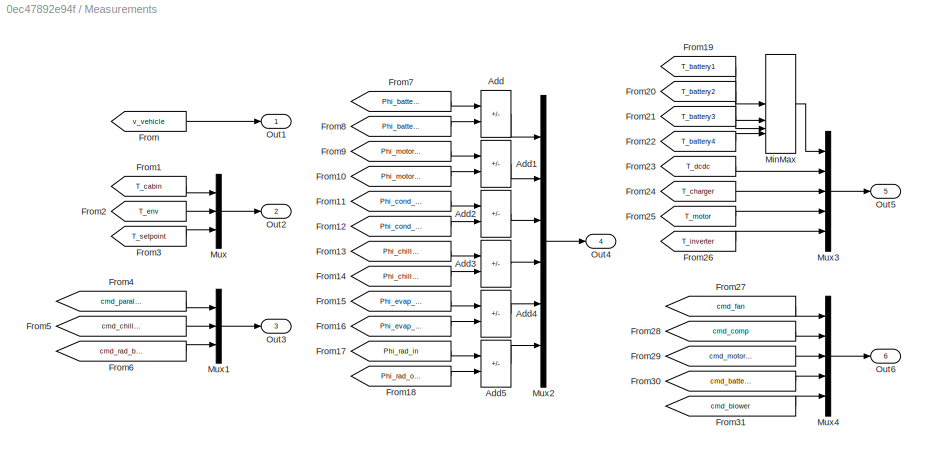
BLOCK [SubSystem] Measurements
BLOCK [Sum] Measurements/Add
  IconShape = rectangular
  Inputs = -+
BLOCK [Sum] Measurements/Add1
  IconShape = rectangular
  Inputs = -+
BLOCK [Sum] Measurements/Add2
  IconShape = rectangular
  Inputs = +-
BLOCK [Sum] Measurements/Add3
  IconShape = rectangular
  Inputs = -+
BLOCK [Sum] Measurements/Add4
  IconShape = rectangular
  Inputs = -+
BLOCK [Sum] Measurements/Add5
  IconShape = rectangular
  Inputs = +-
BLOCK [From] Measurements/From
  GotoTag = v_vehicle
  TagVisibility = global
BLOCK [From] Measurements/From1
  GotoTag = T_cabin
  TagVisibility = global
BLOCK [From] Measurements/From10
  GotoTag = Phi_motor_out
  TagVisibility = global
BLOCK [From] Measurements/From11
  GotoTag = Phi_cond_in
  TagVisibility = global
BLOCK [From] Measurements/From12
  GotoTag = Phi_cond_out
  TagVisibility = global
BLOCK [From] Measurements/From13
  GotoTag = Phi_chiller_in
  TagVisibility = global
BLOCK [From] Measurements/From14
  GotoTag = Phi_chiller_out
  TagVisibility = global
BLOCK [From] Measurements/From15
  GotoTag = Phi_evap_in
  TagVisibility = global
BLOCK [From] Measurements/From16
  GotoTag = Phi_evap_out
  TagVisibility = global
BLOCK [From] Measurements/From17
  GotoTag = Phi_rad_in
  TagVisibility = global
BLOCK [From] Measurements/From18
  GotoTag = Phi_rad_out
  TagVisibility = global
BLOCK [From] Measurements/From19
  GotoTag = T_battery1
  TagVisibility = global
BLOCK [From] Measurements/From2
  GotoTag = T_env
  TagVisibility = global
BLOCK [From] Measurements/From20
  GotoTag = T_battery2
  TagVisibility = global
BLOCK [From] Measurements/From21
  GotoTag = T_battery3
  TagVisibility = global
BLOCK [From] Measurements/From22
  GotoTag = T_battery4
  TagVisibility = global
BLOCK [From] Measurements/From23
  GotoTag = T_dcdc
  TagVisibility = global
BLOCK [From] Measurements/From24
  GotoTag = T_charger
  TagVisibility = global
BLOCK [From] Measurements/From25
  GotoTag = T_motor
  TagVisibility = global
BLOCK [From] Measurements/From26
  GotoTag = T_inverter
  TagVisibility = global
BLOCK [From] Measurements/From27
  GotoTag = cmd_fan
  TagVisibility = global
BLOCK [From] Measurements/From28
  GotoTag = cmd_comp
  TagVisibility = global
BLOCK [From] Measurements/From29
  GotoTag = cmd_motor_pump
  TagVisibility = global
BLOCK [From] Measurements/From3
  GotoTag = T_setpoint
  TagVisibility = global
BLOCK [From] Measurements/From30
  GotoTag = cmd_battery_pump
  TagVisibility = global
BLOCK [From] Measurements/From31
  GotoTag = cmd_blower
  TagVisibility = global
BLOCK [From] Measurements/From4
  GotoTag = cmd_parallel_serial
  TagVisibility = global
BLOCK [From] Measurements/From5
  GotoTag = cmd_chiller_bypass
  TagVisibility = global
BLOCK [From] Measurements/From6
  GotoTag = cmd_rad_bypass
  TagVisibility = global
BLOCK [From] Measurements/From7
  GotoTag = Phi_battery_in
  TagVisibility = global
BLOCK [From] Measurements/From8
  GotoTag = Phi_battery_out
  TagVisibility = global
BLOCK [From] Measurements/From9
  GotoTag = Phi_motor_in
  TagVisibility = global
BLOCK [MinMax] Measurements/MinMax
  Function = max
  Inputs = 4
BLOCK [Mux] Measurements/Mux
  DisplayOption = bar
  Inputs = 3
BLOCK [Mux] Measurements/Mux1
  DisplayOption = bar
  Inputs = 3
BLOCK [Mux] Measurements/Mux2
  DisplayOption = bar
  Inputs = 6
BLOCK [Mux] Measurements/Mux3
  DisplayOption = bar
  Inputs = 5
BLOCK [Mux] Measurements/Mux4
  DisplayOption = bar
  Inputs = 5
BLOCK [Outport] Measurements/Out1
BLOCK [Outport] Measurements/Out2
  Port = 2
BLOCK [Outport] Measurements/Out3
  Port = 3
BLOCK [Outport] Measurements/Out4
  Port = 4
BLOCK [Outport] Measurements/Out5
  Port = 5
BLOCK [Outport] Measurements/Out6
  Port = 6
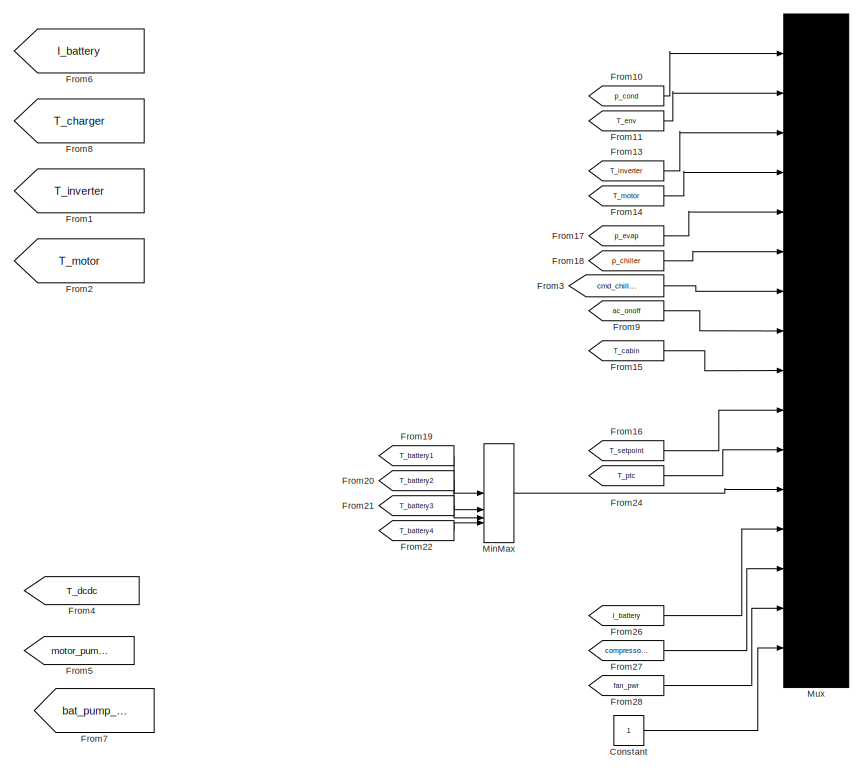
[diagram: Observation - part 1/2, left side, full height]
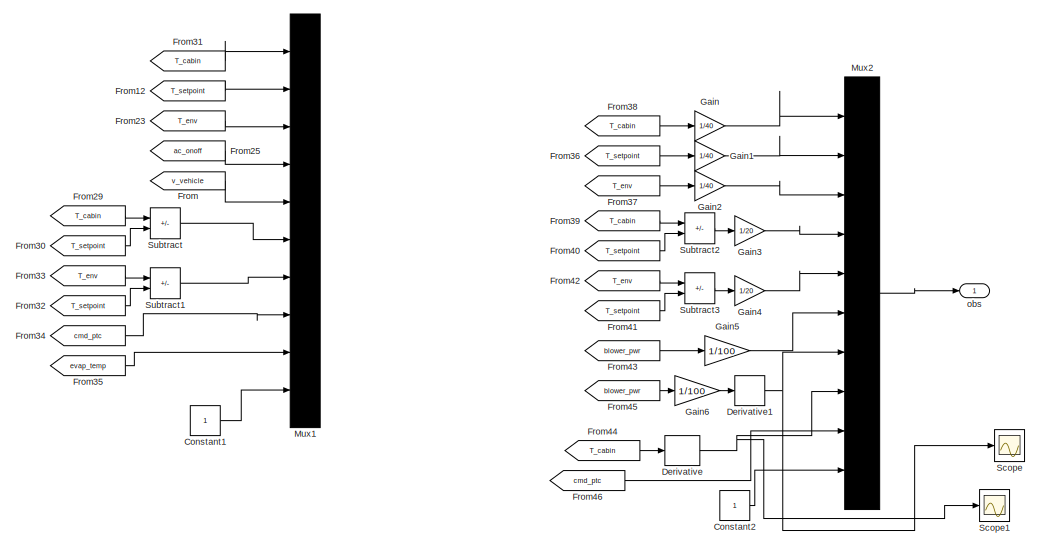
[diagram: Observation - part 2/2, middle right region]
BLOCK [SubSystem] Observation
  Commented = on
BLOCK [Constant] Observation/Constant
  Commented = on
BLOCK [Constant] Observation/Constant1
  Commented = on
BLOCK [Constant] Observation/Constant2
BLOCK [Derivative] Observation/Derivative
BLOCK [Derivative] Observation/Derivative1
BLOCK [From] Observation/From
  Commented = on
  GotoTag = v_vehicle
  TagVisibility = global
BLOCK [From] Observation/From1
  Commented = on
  GotoTag = T_inverter
  TagVisibility = global
BLOCK [From] Observation/From10
  Commented = on
  GotoTag = p_cond
  TagVisibility = global
BLOCK [From] Observation/From11
  Commented = on
  GotoTag = T_env
  TagVisibility = global
BLOCK [From] Observation/From12
  Commented = on
  GotoTag = T_setpoint
  TagVisibility = global
BLOCK [From] Observation/From13
  Commented = on
  GotoTag = T_inverter
  TagVisibility = global
BLOCK [From] Observation/From14
  Commented = on
  GotoTag = T_motor
  TagVisibility = global
BLOCK [From] Observation/From15
  Commented = on
  GotoTag = T_cabin
  TagVisibility = global
BLOCK [From] Observation/From16
  Commented = on
  GotoTag = T_setpoint
  TagVisibility = global
BLOCK [From] Observation/From17
  Commented = on
  GotoTag = p_evap
  TagVisibility = global
BLOCK [From] Observation/From18
  Commented = on
  GotoTag = p_chiller
  TagVisibility = global
BLOCK [From] Observation/From19
  Commented = on
  GotoTag = T_battery1
  TagVisibility = global
BLOCK [From] Observation/From2
  Commented = on
  GotoTag = T_motor
  TagVisibility = global
BLOCK [From] Observation/From20
  Commented = on
  GotoTag = T_battery2
  TagVisibility = global
BLOCK [From] Observation/From21
  Commented = on
  GotoTag = T_battery3
  TagVisibility = global
BLOCK [From] Observation/From22
  Commented = on
  GotoTag = T_battery4
  TagVisibility = global
BLOCK [From] Observation/From23
  Commented = on
  GotoTag = T_env
  TagVisibility = global
BLOCK [From] Observation/From24
  Commented = on
  GotoTag = T_ptc
  TagVisibility = global
BLOCK [From] Observation/From25
  Commented = on
  GotoTag = ac_onoff
  TagVisibility = global
BLOCK [From] Observation/From26
  Commented = on
  GotoTag = I_battery
  TagVisibility = global
BLOCK [From] Observation/From27
  Commented = on
  GotoTag = compressor_pwr
  TagVisibility = global
BLOCK [From] Observation/From28
  Commented = on
  GotoTag = fan_pwr
  TagVisibility = global
BLOCK [From] Observation/From29
  Commented = on
  GotoTag = T_cabin
  TagVisibility = global
BLOCK [From] Observation/From3
  Commented = on
  GotoTag = cmd_chiller_bypass
  TagVisibility = global
BLOCK [From] Observation/From30
  Commented = on
  GotoTag = T_setpoint
  TagVisibility = global
BLOCK [From] Observation/From31
  Commented = on
  GotoTag = T_cabin
  TagVisibility = global
BLOCK [From] Observation/From32
  Commented = on
  GotoTag = T_setpoint
  TagVisibility = global
BLOCK [From] Observation/From33
  Commented = on
  GotoTag = T_env
  TagVisibility = global
BLOCK [From] Observation/From34
  Commented = on
  GotoTag = cmd_ptc
  TagVisibility = global
BLOCK [From] Observation/From35
  Commented = on
  GotoTag = evap_temp
  TagVisibility = global
BLOCK [From] Observation/From36
  GotoTag = T_setpoint
  TagVisibility = global
BLOCK [From] Observation/From37
  GotoTag = T_env
  TagVisibility = global
BLOCK [From] Observation/From38
  GotoTag = T_cabin
  TagVisibility = global
BLOCK [From] Observation/From39
  GotoTag = T_cabin
  TagVisibility = global
BLOCK [From] Observation/From4
  Commented = on
  GotoTag = T_dcdc
  TagVisibility = global
BLOCK [From] Observation/From40
  GotoTag = T_setpoint
  TagVisibility = global
BLOCK [From] Observation/From41
  GotoTag = T_setpoint
  TagVisibility = global
BLOCK [From] Observation/From42
  GotoTag = T_env
  TagVisibility = global
BLOCK [From] Observation/From43
  GotoTag = blower_pwr
  TagVisibility = global
BLOCK [From] Observation/From44
  GotoTag = T_cabin
  TagVisibility = global
BLOCK [From] Observation/From45
  GotoTag = blower_pwr
  TagVisibility = global
BLOCK [From] Observation/From46
  GotoTag = cmd_ptc
  TagVisibility = global
BLOCK [From] Observation/From5
  Commented = on
  GotoTag = motor_pump_pwr
  TagVisibility = global
BLOCK [From] Observation/From6
  Commented = on
  GotoTag = I_battery
  TagVisibility = global
BLOCK [From] Observation/From7
  Commented = on
  GotoTag = bat_pump_pwr
  TagVisibility = global
BLOCK [From] Observation/From8
  Commented = on
  GotoTag = T_charger
  TagVisibility = global
BLOCK [From] Observation/From9
  Commented = on
  GotoTag = ac_onoff
  TagVisibility = global
BLOCK [Gain] Observation/Gain
  Gain = 1/40
BLOCK [Gain] Observation/Gain1
  Gain = 1/40
BLOCK [Gain] Observation/Gain2
  Gain = 1/40
BLOCK [Gain] Observation/Gain3
  Gain = 1/20
BLOCK [Gain] Observation/Gain4
  Gain = 1/20
BLOCK [Gain] Observation/Gain5
  Gain = 1/100
BLOCK [Gain] Observation/Gain6
  Gain = 1/100
BLOCK [MinMax] Observation/MinMax
  Commented = on
  Function = max
  Inputs = 4
BLOCK [Mux] Observation/Mux
  Commented = on
  DisplayOption = bar
  Inputs = 16
BLOCK [Mux] Observation/Mux1
  Commented = on
  DisplayOption = bar
  Inputs = 10
BLOCK [Mux] Observation/Mux2
  DisplayOption = bar
  Inputs = 10
BLOCK [Scope] Observation/Scope
  Floating = off
  NumInputPorts = 1
  ScopeSpecificationString = Simulink.scopes.TimeScopeBlockCfg('CurrentConfiguration', extmgr.ConfigurationSet(extmgr.Configuration('Core','General UI',true),extmgr.Configuration('Core','Source UI',true),extmgr.Configuration('Sources','WiredSimulink',true,'DataLoggingVariableName','ScopeData1'),extmgr.Configuration('Visuals','Time Domain',true),extmgr.Configuration('Tools','Plot Navigation',true),extmgr.Configuration('Tools',...<+40ch>
BLOCK [Scope] Observation/Scope1
  Floating = off
  NumInputPorts = 1
  ScopeSpecificationString = Simulink.scopes.TimeScopeBlockCfg('CurrentConfiguration', extmgr.ConfigurationSet(extmgr.Configuration('Core','General UI',true),extmgr.Configuration('Core','Source UI',true),extmgr.Configuration('Sources','WiredSimulink',true,'DataLoggingVariableName','ScopeData2'),extmgr.Configuration('Visuals','Time Domain',true),extmgr.Configuration('Tools','Plot Navigation',true),extmgr.Configuration('Tools',...<+40ch>
BLOCK [Sum] Observation/Subtract
  Commented = on
  IconShape = rectangular
  Inputs = +-
BLOCK [Sum] Observation/Subtract1
  Commented = on
  IconShape = rectangular
  Inputs = +-
BLOCK [Sum] Observation/Subtract2
  IconShape = rectangular
  Inputs = +-
BLOCK [Sum] Observation/Subtract3
  IconShape = rectangular
  Inputs = +-
BLOCK [Outport] Observation/obs
BLOCK [Reference] RL Agent  REF=rllib/RL Agent
  Commented = on
  SourceBlock = rllib/RL Agent
  SourceType = RL Agent
BLOCK [SubSystem] Reward
  Commented = on
BLOCK [Sum] Reward/Add
  IconShape = rectangular
BLOCK [SubSystem] Reward/Power Reward
BLOCK [Sum] Reward/Power Reward/Add
  Commented = on
  IconShape = rectangular
  Inputs = 7
BLOCK [From] Reward/Power Reward/From
  Commented = on
  GotoTag = motor_pump_pwr
  TagVisibility = global
BLOCK [From] Reward/Power Reward/From1
  Commented = on
  GotoTag = bat_pump_pwr
  TagVisibility = global
BLOCK [From] Reward/Power Reward/From2
  Commented = on
  GotoTag = fan_pwr
  TagVisibility = global
BLOCK [From] Reward/Power Reward/From3
  Commented = on
  GotoTag = compressor_pwr
  TagVisibility = global
BLOCK [From] Reward/Power Reward/From4
  Commented = on
  GotoTag = blower_pwr
  TagVisibility = global
BLOCK [From] Reward/Power Reward/From5
  Commented = on
  GotoTag = PTC_pwr
  TagVisibility = global
BLOCK [From] Reward/Power Reward/From6
  Commented = on
  GotoTag = heater_pwr
  TagVisibility = global
BLOCK [From] Reward/Power Reward/From7
  GotoTag = blower_pwr
  TagVisibility = global
BLOCK [Gain] Reward/Power Reward/Gain
  Commented = on
  Gain = -.01
BLOCK [Gain] Reward/Power Reward/Gain1
  Gain = -.05
BLOCK [Outport] Reward/Power Reward/Power
BLOCK [Outport] Reward/R
BLOCK [Scope] Reward/Scope
  Floating = off
  NameLocation = top
  NumInputPorts = 2
  ScopeSpecificationString = Simulink.scopes.TimeScopeBlockCfg('CurrentConfiguration', extmgr.ConfigurationSet(extmgr.Configuration('Core','General UI',true),extmgr.Configuration('Core','Source UI',true),extmgr.Configuration('Sources','WiredSimulink',true,'DataLoggingVariableName','ScopeData1'),extmgr.Configuration('Visuals','Time Domain',true,'SerializedDisplays',{struct('MinYLimReal','-42.19381','MaxYLimReal','5.79931','YLa...<+1462ch>
BLOCK [SubSystem] Reward/Temp Reward
BLOCK [Abs] Reward/Temp Reward/Abs
  SaturateOnIntegerOverflow = off
BLOCK [Sum] Reward/Temp Reward/Add1
  IconShape = rectangular
  Inputs = +-
BLOCK [From] Reward/Temp Reward/From3
  GotoTag = T_cabin
  TagVisibility = global
BLOCK [From] Reward/Temp Reward/From4
  GotoTag = T_setpoint
  TagVisibility = global
BLOCK [SubSystem] Reward/Temp Reward/If Action Subsystem11
  TreatAsAtomicUnit = on
BLOCK [ActionPort] Reward/Temp Reward/If Action Subsystem11/Action Port
  ActionPortLabel = else
BLOCK [Constant] Reward/Temp Reward/If Action Subsystem11/Constant
  Value = 15
BLOCK [Outport] Reward/Temp Reward/If Action Subsystem11/Out1
BLOCK [SubSystem] Reward/Temp Reward/If Action Subsystem9
  TreatAsAtomicUnit = on
BLOCK [ActionPort] Reward/Temp Reward/If Action Subsystem9/Action Port
  ActionPortLabel = if(u1 > 0.5)
BLOCK [Sum] Reward/Temp Reward/If Action Subsystem9/Add
  IconShape = rectangular
BLOCK [Constant] Reward/Temp Reward/If Action Subsystem9/Constant
  Value = -10
BLOCK [Gain] Reward/Temp Reward/If Action Subsystem9/Gain
  Gain = -10
BLOCK [Inport] Reward/Temp Reward/If Action Subsystem9/Input
BLOCK [Outport] Reward/Temp Reward/If Action Subsystem9/Out1
BLOCK [If] Reward/Temp Reward/If3
  IfExpression = u1 > 0.5
  ZeroCross = off
BLOCK [Merge] Reward/Temp Reward/Merge3
BLOCK [Outport] Reward/Temp Reward/Temp
BLOCK [SubSystem] Reward1
BLOCK [Sum] Reward1/Add
  IconShape = rectangular
BLOCK [SubSystem] Reward1/Power Reward
BLOCK [Sum] Reward1/Power Reward/Add
  Commented = on
  IconShape = rectangular
  Inputs = 7
BLOCK [From] Reward1/Power Reward/From
  Commented = on
  GotoTag = motor_pump_pwr
  TagVisibility = global
BLOCK [From] Reward1/Power Reward/From1
  Commented = on
  GotoTag = bat_pump_pwr
  TagVisibility = global
BLOCK [From] Reward1/Power Reward/From2
  Commented = on
  GotoTag = fan_pwr
  TagVisibility = global
BLOCK [From] Reward1/Power Reward/From3
  Commented = on
  GotoTag = compressor_pwr
  TagVisibility = global
BLOCK [From] Reward1/Power Reward/From4
  Commented = on
  GotoTag = blower_pwr
  TagVisibility = global
BLOCK [From] Reward1/Power Reward/From5
  Commented = on
  GotoTag = PTC_pwr
  TagVisibility = global
BLOCK [From] Reward1/Power Reward/From6
  Commented = on
  GotoTag = heater_pwr
  TagVisibility = global
BLOCK [From] Reward1/Power Reward/From7
  GotoTag = blower_pwr
  TagVisibility = global
BLOCK [Gain] Reward1/Power Reward/Gain
  Commented = on
  Gain = -.01
BLOCK [Gain] Reward1/Power Reward/Gain1
  Gain = -.05
BLOCK [Outport] Reward1/Power Reward/Power
BLOCK [Outport] Reward1/R
BLOCK [Scope] Reward1/Scope
  Floating = off
  NameLocation = top
  NumInputPorts = 2
  ScopeSpecificationString = Simulink.scopes.TimeScopeBlockCfg('CurrentConfiguration', extmgr.ConfigurationSet(extmgr.Configuration('Core','General UI',true),extmgr.Configuration('Core','Source UI',true),extmgr.Configuration('Sources','WiredSimulink',true,'DataLoggingVariableName','ScopeData1'),extmgr.Configuration('Visuals','Time Domain',true,'SerializedDisplays',{struct('MinYLimReal','-42.19381','MaxYLimReal','5.79931','YLa...<+1462ch>
BLOCK [SubSystem] Reward1/Temp Reward
BLOCK [Abs] Reward1/Temp Reward/Abs
  SaturateOnIntegerOverflow = off
BLOCK [Sum] Reward1/Temp Reward/Add1
  IconShape = rectangular
  Inputs = +-
BLOCK [From] Reward1/Temp Reward/From3
  GotoTag = T_cabin
  TagVisibility = global
BLOCK [From] Reward1/Temp Reward/From4
  GotoTag = T_setpoint
  TagVisibility = global
BLOCK [SubSystem] Reward1/Temp Reward/If Action Subsystem11
  TreatAsAtomicUnit = on
BLOCK [ActionPort] Reward1/Temp Reward/If Action Subsystem11/Action Port
  ActionPortLabel = else
BLOCK [Constant] Reward1/Temp Reward/If Action Subsystem11/Constant
  Value = 15
BLOCK [Outport] Reward1/Temp Reward/If Action Subsystem11/Out1
BLOCK [SubSystem] Reward1/Temp Reward/If Action Subsystem9
  TreatAsAtomicUnit = on
BLOCK [ActionPort] Reward1/Temp Reward/If Action Subsystem9/Action Port
  ActionPortLabel = if(u1 > 0.5)
BLOCK [Sum] Reward1/Temp Reward/If Action Subsystem9/Add
  IconShape = rectangular
BLOCK [Constant] Reward1/Temp Reward/If Action Subsystem9/Constant
  Value = -10
BLOCK [Gain] Reward1/Temp Reward/If Action Subsystem9/Gain
  Gain = -10
BLOCK [Inport] Reward1/Temp Reward/If Action Subsystem9/Input
BLOCK [Outport] Reward1/Temp Reward/If Action Subsystem9/Out1
BLOCK [If] Reward1/Temp Reward/If3
  IfExpression = u1 > 0.5
  ZeroCross = off
BLOCK [Merge] Reward1/Temp Reward/Merge3
BLOCK [Outport] Reward1/Temp Reward/Temp
BLOCK [SubSystem] Scenario
  AttributesFormatString = %<Tag>
  Tag = drive cycle
BLOCK [Constant] Scenario/AC OnOff
BLOCK [Constant] Scenario/CO2 Fraction
  Value = 4e-4
BLOCK [Reference] Scenario/Drive Cycle Source  REF=autolibshared/Drive Cycle Source
  AttributesFormatString = %<cycleVar> (%<tfinal>)
  LibrarySourceBlock = autolibscenario/Drive Cycle Source
  SourceBlock = autolibshared/Drive Cycle Source
  SourceType = Drive Cycle Source
BLOCK [Goto] Scenario/Goto
  GotoTag = I_battery
  TagVisibility = global
BLOCK [Goto] Scenario/Goto1
  GotoTag = Q_inverter
  TagVisibility = global
BLOCK [Goto] Scenario/Goto10
  GotoTag = ac_onoff
  TagVisibility = global
BLOCK [Goto] Scenario/Goto11
  GotoTag = recirc_onoff
  TagVisibility = global
BLOCK [Goto] Scenario/Goto12
  GotoTag = v_vehicle
  TagVisibility = global
BLOCK [Goto] Scenario/Goto13
  GotoTag = N_occupant
  TagVisibility = global
BLOCK [Goto] Scenario/Goto2
  GotoTag = Q_motor
  TagVisibility = global
BLOCK [Goto] Scenario/Goto3
  GotoTag = Q_charger
  TagVisibility = global
BLOCK [Goto] Scenario/Goto4
  GotoTag = Q_dcdc
  TagVisibility = global
BLOCK [Goto] Scenario/Goto5
  GotoTag = p_env
  TagVisibility = global
BLOCK [Goto] Scenario/Goto6
  GotoTag = T_env
  TagVisibility = global
BLOCK [Goto] Scenario/Goto7
  GotoTag = RH_env
  TagVisibility = global
BLOCK [Goto] Scenario/Goto8
  GotoTag = CO2_env
  TagVisibility = global
BLOCK [Goto] Scenario/Goto9
  GotoTag = T_setpoint
  TagVisibility = global
BLOCK [Constant] Scenario/Number of Occupants
BLOCK [SubSystem] Scenario/Power Demand
BLOCK [Lookup_n-D] Scenario/Power Demand/Charger Heat vs Current
  BeginIndexSearchUsingPreviousIndexResult = on
  BreakpointsForDimension1 = [-100 0 25 50 300]
  IndexSearchMethod = Linear search
  InputPortMap = u0
  InternalRulePriority = Speed
  NumberOfTableDimensions = 1
  RndMeth = Simplest
  Table = [250 0 40 70 400]
BLOCK [Lookup_n-D] Scenario/Power Demand/DCDC Heat vs Current
  BeginIndexSearchUsingPreviousIndexResult = on
  BreakpointsForDimension1 = [-100 0 25 50 300]
  IndexSearchMethod = Linear search
  InputPortMap = u0
  InternalRulePriority = Speed
  NumberOfTableDimensions = 1
  RndMeth = Simplest
  Table = [250 0 40 70 400]
BLOCK [SubSystem] Scenario/Power Demand/Derivative
BLOCK [Outport] Scenario/Power Demand/Derivative/A
BLOCK [Gain] Scenario/Power Demand/Derivative/Gain
  Gain = tau
BLOCK [Integrator] Scenario/Power Demand/Derivative/Integrator
BLOCK [Sum] Scenario/Power Demand/Derivative/Sum
  Inputs = |+-
BLOCK [Inport] Scenario/Power Demand/Derivative/V
BLOCK [Outport] Scenario/Power Demand/I_battery
BLOCK [Lookup_n-D] Scenario/Power Demand/Inverter Current vs Acceleration
  BeginIndexSearchUsingPreviousIndexResult = on
  BreakpointsForDimension1 = [-10 -8 -5 0 5 8 10]
  IndexSearchMethod = Linear search
  InputPortMap = u0
  InternalRulePriority = Speed
  NumberOfTableDimensions = 1
  RndMeth = Simplest
  Table = [200 150 100 0 100 150 200]*0.6
BLOCK [Lookup_n-D] Scenario/Power Demand/Inverter Current vs Speed
  BeginIndexSearchUsingPreviousIndexResult = on
  BreakpointsForDimension1 = [0 60 80 100 120 140 160 180 200]
  IndexSearchMethod = Linear search
  InputPortMap = u0
  InternalRulePriority = Speed
  NumberOfTableDimensions = 1
  RndMeth = Simplest
  Table = [0 10 18 27 45 65 100 120 160]
BLOCK [Lookup_n-D] Scenario/Power Demand/Inverter Heat vs Current
  BeginIndexSearchUsingPreviousIndexResult = on
  BreakpointsForDimension1 = [-100 0 25 50 300]
  IndexSearchMethod = Linear search
  InputPortMap = u0
  InternalRulePriority = Speed
  NumberOfTableDimensions = 1
  RndMeth = Simplest
  Table = [250 0 40 70 400]
BLOCK [Lookup_n-D] Scenario/Power Demand/Motor Heat vs Current
  BeginIndexSearchUsingPreviousIndexResult = on
  BreakpointsForDimension1 = [-150 -70 -26 0 25 50 100 300 600]
  IndexSearchMethod = Linear search
  InputPortMap = u0
  InternalRulePriority = Speed
  NumberOfTableDimensions = 1
  RndMeth = Simplest
  Table = [3500 2650 2100 0 400 550 4800 4800 4800]
BLOCK [Outport] Scenario/Power Demand/Q_charger
  Port = 4
BLOCK [Outport] Scenario/Power Demand/Q_dcdc
  Port = 5
BLOCK [Outport] Scenario/Power Demand/Q_inverter
  Port = 2
BLOCK [Outport] Scenario/Power Demand/Q_motor
  Port = 3
BLOCK [Saturate] Scenario/Power Demand/Saturation
  LowerLimit = -inf
  UpperLimit = 200
BLOCK [Sum] Scenario/Power Demand/Sum
  Inputs = |++
BLOCK [TransferFcn] Scenario/Power Demand/Transfer Fcn
  Denominator = [1 1]
BLOCK [TransferFcn] Scenario/Power Demand/Transfer Fcn1
  Denominator = [1 1]
BLOCK [TransferFcn] Scenario/Power Demand/Transfer Fcn2
  Denominator = [1 1]
BLOCK [TransferFcn] Scenario/Power Demand/Transfer Fcn3
  Denominator = [1 1]
BLOCK [TransferFcn] Scenario/Power Demand/Transfer Fcn4
  Denominator = [1 1]
BLOCK [Inport] Scenario/Power Demand/speed
BLOCK [Constant] Scenario/Pressure [MPa]
  Value = 0.101325
BLOCK [Constant] Scenario/Recirculation On//Off
  Value = 0
BLOCK [Constant] Scenario/Relative Humidity
  Value = 0.4
BLOCK [Constant] Scenario/Temperature Setpoint [degC]
  Value = 20
BLOCK [Constant] Scenario/Temperature [degC]
  Value = 25
BLOCK [Reference] Scenario/Vehicle Speed [km//hr]  REF=SignalEditorBlockLib/Signal Editor
  Commented = on
  SourceBlock = SignalEditorBlockLib/Signal Editor
  SourceType = SignalEditor
  UserDataPersistent = on
BLOCK [Scope] Scope
  Floating = off
  NumInputPorts = 6
  ScopeSpecificationString = Simulink.scopes.TimeScopeBlockCfg('CurrentConfiguration', extmgr.ConfigurationSet(extmgr.Configuration('Core','General UI',true),extmgr.Configuration('Core','Source UI',true),extmgr.Configuration('Sources','WiredSimulink',true),extmgr.Configuration('Visuals','Time Domain',true,'SerializedDisplays',{struct('MinYLimReal','-16.15375','MaxYLimReal','145.38375','YLabelReal','','MinYLimMag','0.00000','M...<+5930ch>
  Tag = PublishScope
BLOCK [Scope] Scope4
  Floating = off
  NumInputPorts = 1
  ScopeSpecificationString = Simulink.scopes.TimeScopeBlockCfg('CurrentConfiguration', extmgr.ConfigurationSet(extmgr.Configuration('Core','General UI',true),extmgr.Configuration('Core','Source UI',true),extmgr.Configuration('Sources','WiredSimulink',true,'DataLoggingVariableName','ScopeData4'),extmgr.Configuration('Visuals','Time Domain',true),extmgr.Configuration('Tools','Plot Navigation',true),extmgr.Configuration('Tools',...<+40ch>
BLOCK [Scope] Scope5
  Floating = off
  NumInputPorts = 1
  ScopeSpecificationString = Simulink.scopes.TimeScopeBlockCfg('CurrentConfiguration', extmgr.ConfigurationSet(extmgr.Configuration('Core','General UI',true,'FigureColor',[1 1 1]),extmgr.Configuration('Core','Source UI',true),extmgr.Configuration('Sources','WiredSimulink',true,'DataLoggingVariableName','ScopeData6'),extmgr.Configuration('Visuals','Time Domain',true,'SerializedDisplays',{struct('MinYLimReal','-1','MaxYLimReal'...<+1662ch>
BLOCK [Scope] Scope6
  Floating = off
  NumInputPorts = 3
  ScopeSpecificationString = Simulink.scopes.TimeScopeBlockCfg('CurrentConfiguration', extmgr.ConfigurationSet(extmgr.Configuration('Core','General UI',true,'FigureColor',[1 1 1]),extmgr.Configuration('Core','Source UI',true),extmgr.Configuration('Sources','WiredSimulink',true,'DataLoggingVariableName','ScopeData1'),extmgr.Configuration('Visuals','Time Domain',true,'SerializedDisplays',{struct('MinYLimReal','19.375','MaxYLimR...<+1900ch>
ANNOTATION (root): 1. Configure scenario ( see code ): (i) drive cycle , (ii) cool down , (iii) cold weather 2. Plot power consumption in the system ( see code ) 3. Open Model Workspace to explore parameters ( see definition script ) 4. Explore simulation results using Simscape Results Explorer 5. Learn more about this example
ANNOTATION (root): <copyright redacted>
ANNOTATION (root): Electric Vehicle Thermal Management
ANNOTATION Controls/Coolant Loop Control/Parallel-Serial Mode: 0 = Parallel mode 1 = Serial mode
ANNOTATION Environment/Battery/Pack 1: Scale up voltage drop to total of N cells
ANNOTATION Environment/Battery/Pack 1/Lithium Cell 1RC: Power Losses
ANNOTATION Environment/Battery/Pack 2: Scale up voltage drop to total of N cells
ANNOTATION Environment/Battery/Pack 2/Lithium Cell 1RC: Power Losses
ANNOTATION Environment/Battery/Pack 3: Scale up voltage drop to total of N cells
ANNOTATION Environment/Battery/Pack 3/Lithium Cell 1RC: Power Losses
ANNOTATION Environment/Battery/Pack 4: Scale up voltage drop to total of N cells
ANNOTATION Environment/Battery/Pack 4/Lithium Cell 1RC: Power Losses
ANNOTATION Environment/Parallel-Serial Mode Valve: Parallel mode flow path: A-D and C-B Serial mode flow path: A-B and C-D
ANNOTATION Reward/Temp Reward: T cabin Reward
ANNOTATION Reward1/Temp Reward: T cabin Reward
ANNOTATION Scenario: Cabin HVAC
ANNOTATION Scenario: Environment
LINE Agent_control/In1:1 -> Agent_control/Goto:1
LINE Compare To Zero:1 -> RL Agent:3
LINE Constant:1 -> Compare To Zero:1
LINE Controls/Cabin Air Control/Constant:1 -> Controls/Cabin Air Control/Switch:1
LINE Controls/Cabin Air Control/PID Controller:1 -> Controls/Cabin Air Control/cmd_blower:1
LINE Controls/Cabin Air Control/Product:1 -> Controls/Cabin Air Control/PID Controller:1
LINE Controls/Cabin Air Control/Relay:1 -> Controls/Cabin Air Control/Switch:3
LINE Controls/Cabin Air Control/Sign:1 -> Controls/Cabin Air Control/Product:2
NET Controls/Cabin Air Control/Sum1:1 -> Controls/Cabin Air Control/Sign:1, Controls/Cabin Air Control/Switch:2
LINE Controls/Cabin Air Control/Sum:1 -> Controls/Cabin Air Control/Product:1
LINE Controls/Cabin Air Control/Switch:1 -> Controls/Cabin Air Control/cmd_ptc:1
LINE Controls/Cabin Air Control/T_cabin:1 -> Controls/Cabin Air Control/Sum:2
LINE Controls/Cabin Air Control/T_env:1 -> Controls/Cabin Air Control/Sum1:2
LINE Controls/Cabin Air Control/T_ptc:1 -> Controls/Cabin Air Control/Relay:1
NET Controls/Cabin Air Control/T_setpoint:1 -> Controls/Cabin Air Control/Sum1:1, Controls/Cabin Air Control/Sum:1
LINE Controls/Cabin Air Control:1 -> Controls/Goto1:1
LINE Controls/Cabin Air Control:2 -> Controls/Goto2:1
LINE Controls/Compressor Control/Constant1:1 -> Controls/Compressor Control/Switch:3
LINE Controls/Compressor Control/Constant:1 -> Controls/Compressor Control/Sum:1
LINE Controls/Compressor Control/Freezing Cutoff:1 -> Controls/Compressor Control/Product:2
LINE Controls/Compressor Control/MinMax1:1 -> Controls/Compressor Control/Freezing Cutoff:1
LINE Controls/Compressor Control/MinMax2:1 -> Controls/Compressor Control/Switch:2
LINE Controls/Compressor Control/MinMax:1 -> Controls/Compressor Control/Sum1:2
LINE Controls/Compressor Control/PID Controller:1 -> Controls/Compressor Control/Product:1
LINE Controls/Compressor Control/Pressure Target [MPa]:1 -> Controls/Compressor Control/Sum1:1
LINE Controls/Compressor Control/Product:1 -> Controls/Compressor Control/Switch:1
LINE Controls/Compressor Control/Sum1:1 -> Controls/Compressor Control/PID Controller:1
LINE Controls/Compressor Control/Sum:1 -> Controls/Compressor Control/MinMax2:1
LINE Controls/Compressor Control/Switch:1 -> Controls/Compressor Control/cmd_comp:1
LINE Controls/Compressor Control/ac_onoff:1 -> Controls/Compressor Control/MinMax2:2
LINE Controls/Compressor Control/cmd_chiller_bypass:1 -> Controls/Compressor Control/Sum:2
NET Controls/Compressor Control/p_chiller:1 -> Controls/Compressor Control/MinMax1:2, Controls/Compressor Control/MinMax:2
NET Controls/Compressor Control/p_evap:1 -> Controls/Compressor Control/MinMax1:1, Controls/Compressor Control/MinMax:1
LINE Controls/Compressor Control:1 -> Controls/Goto9:1
LINE Controls/Coolant Loop Control/Battery Heater/Constant:1 -> Controls/Coolant Loop Control/Battery Heater/Switch:1
LINE Controls/Coolant Loop Control/Battery Heater/Relay:1 -> Controls/Coolant Loop Control/Battery Heater/Switch:3
LINE Controls/Coolant Loop Control/Battery Heater/Switch:1 -> Controls/Coolant Loop Control/Battery Heater/cmd_heater:1
LINE Controls/Coolant Loop Control/Battery Heater/T_coolant_battery_in:1 -> Controls/Coolant Loop Control/Battery Heater/Relay:1
LINE Controls/Coolant Loop Control/Battery Heater/T_env:1 -> Controls/Coolant Loop Control/Battery Heater/Switch:2
LINE Controls/Coolant Loop Control/Battery Heater:1 -> Controls/Coolant Loop Control/cmd_heater:1
LINE Controls/Coolant Loop Control/Battery Pump/Constant1:1 -> Controls/Coolant Loop Control/Battery Pump/Switch1:3
LINE Controls/Coolant Loop Control/Battery Pump/Constant:1 -> Controls/Coolant Loop Control/Battery Pump/Switch1:1
LINE Controls/Coolant Loop Control/Battery Pump/MinMax:1 -> Controls/Coolant Loop Control/Battery Pump/Switch:3
LINE Controls/Coolant Loop Control/Battery Pump/Relay:1 -> Controls/Coolant Loop Control/Battery Pump/MinMax:1
LINE Controls/Coolant Loop Control/Battery Pump/Switch1:1 -> Controls/Coolant Loop Control/Battery Pump/MinMax:2
LINE Controls/Coolant Loop Control/Battery Pump/Switch:1 -> Controls/Coolant Loop Control/Battery Pump/cmd_battery_pump:1
LINE Controls/Coolant Loop Control/Battery Pump/T_battery:1 -> Controls/Coolant Loop Control/Battery Pump/Relay:1
LINE Controls/Coolant Loop Control/Battery Pump/cmd_chiller_bypass:1 -> Controls/Coolant Loop Control/Battery Pump/Switch1:2
LINE Controls/Coolant Loop Control/Battery Pump/cmd_motor_pump:1 -> Controls/Coolant Loop Control/Battery Pump/Switch:1
LINE Controls/Coolant Loop Control/Battery Pump/parallel_serial:1 -> Controls/Coolant Loop Control/Battery Pump/Switch:2
LINE Controls/Coolant Loop Control/Battery Pump:1 -> Controls/Coolant Loop Control/cmd_battery_pump:1
LINE Controls/Coolant Loop Control/Chiller Bypass/Relay:1 -> Controls/Coolant Loop Control/Chiller Bypass/cmd_chiller_bypass:1
LINE Controls/Coolant Loop Control/Chiller Bypass/T_battery:1 -> Controls/Coolant Loop Control/Chiller Bypass/Relay:1
NET Controls/Coolant Loop Control/Chiller Bypass:1 -> Controls/Coolant Loop Control/Battery Pump:3, Controls/Coolant Loop Control/Parallel-Serial Mode:1, Controls/Coolant Loop Control/cmd_chiller_bypass:1
LINE Controls/Coolant Loop Control/Motor Pump/1-D Lookup Table:1 -> Controls/Coolant Loop Control/Motor Pump/Saturation:1
LINE Controls/Coolant Loop Control/Motor Pump/Saturation:1 -> Controls/Coolant Loop Control/Motor Pump/cmd_motor_pump:1
LINE Controls/Coolant Loop Control/Motor Pump/T_motor:1 -> Controls/Coolant Loop Control/Motor Pump/1-D Lookup Table:1
NET Controls/Coolant Loop Control/Motor Pump:1 -> Controls/Coolant Loop Control/Battery Pump:1, Controls/Coolant Loop Control/cmd_motor_pump:1
LINE Controls/Coolant Loop Control/Parallel-Serial Mode/Constant:1 -> Controls/Coolant Loop Control/Parallel-Serial Mode/Switch:3
LINE Controls/Coolant Loop Control/Parallel-Serial Mode/MinMax:1 -> Controls/Coolant Loop Control/Parallel-Serial Mode/Relay:1
LINE Controls/Coolant Loop Control/Parallel-Serial Mode/Relay:1 -> Controls/Coolant Loop Control/Parallel-Serial Mode/Switch:1
LINE Controls/Coolant Loop Control/Parallel-Serial Mode/Switch:1 -> Controls/Coolant Loop Control/Parallel-Serial Mode/cmd_parallel_serial:1
LINE Controls/Coolant Loop Control/Parallel-Serial Mode/T_coolant_inverter_out:1 -> Controls/Coolant Loop Control/Parallel-Serial Mode/MinMax:2
LINE Controls/Coolant Loop Control/Parallel-Serial Mode/T_env:1 -> Controls/Coolant Loop Control/Parallel-Serial Mode/MinMax:1
LINE Controls/Coolant Loop Control/Parallel-Serial Mode/cmd_chiller_bypass:1 -> Controls/Coolant Loop Control/Parallel-Serial Mode/Switch:2
NET Controls/Coolant Loop Control/Parallel-Serial Mode:1 -> Controls/Coolant Loop Control/Battery Pump:4, Controls/Coolant Loop Control/cmd_parallel_serial:1
LINE Controls/Coolant Loop Control/Radiator Bypass/Relay:1 -> Controls/Coolant Loop Control/Radiator Bypass/cmd_rad_bypass:1
LINE Controls/Coolant Loop Control/Radiator Bypass/T_coolant_inverter_out:1 -> Controls/Coolant Loop Control/Radiator Bypass/Relay:1
LINE Controls/Coolant Loop Control/Radiator Bypass:1 -> Controls/Coolant Loop Control/cmd_rad_bypass:1
NET Controls/Coolant Loop Control/T_battery:1 -> Controls/Coolant Loop Control/Battery Pump:2, Controls/Coolant Loop Control/Chiller Bypass:1
LINE Controls/Coolant Loop Control/T_coolant_battery_in:1 -> Controls/Coolant Loop Control/Battery Heater:2
NET Controls/Coolant Loop Control/T_coolant_inverter_out:1 -> Controls/Coolant Loop Control/Parallel-Serial Mode:3, Controls/Coolant Loop Control/Radiator Bypass:1
NET Controls/Coolant Loop Control/T_env:1 -> Controls/Coolant Loop Control/Battery Heater:1, Controls/Coolant Loop Control/Parallel-Serial Mode:2
LINE Controls/Coolant Loop Control/T_motor:1 -> Controls/Coolant Loop Control/Motor Pump:1
LINE Controls/Coolant Loop Control:1 -> Controls/Goto3:1
LINE Controls/Coolant Loop Control:2 -> Controls/Goto4:1
LINE Controls/Coolant Loop Control:3 -> Controls/Goto5:1
LINE Controls/Coolant Loop Control:4 -> Controls/Goto6:1
LINE Controls/Coolant Loop Control:5 -> Controls/Goto7:1
LINE Controls/Coolant Loop Control:6 -> Controls/Goto8:1
NET Controls/Fan Control/Condenser Requirement/1-D Lookup Table1:1 -> Controls/Fan Control/Condenser Requirement/Bias1:1, Controls/Fan Control/Condenser Requirement/Relay Level 2:3
NET Controls/Fan Control/Condenser Requirement/1-D Lookup Table2:1 -> Controls/Fan Control/Condenser Requirement/Bias2:1, Controls/Fan Control/Condenser Requirement/Relay Level 1:3
NET Controls/Fan Control/Condenser Requirement/1-D Lookup Table:1 -> Controls/Fan Control/Condenser Requirement/Bias:1, Controls/Fan Control/Condenser Requirement/Relay Level 3:3
LINE Controls/Fan Control/Condenser Requirement/Bias1:1 -> Controls/Fan Control/Condenser Requirement/Relay Level 2:2
LINE Controls/Fan Control/Condenser Requirement/Bias2:1 -> Controls/Fan Control/Condenser Requirement/Relay Level 1:2
LINE Controls/Fan Control/Condenser Requirement/Bias:1 -> Controls/Fan Control/Condenser Requirement/Relay Level 3:2
LINE Controls/Fan Control/Condenser Requirement/Gain:1 -> Controls/Fan Control/Condenser Requirement/cmd_fan:1
LINE Controls/Fan Control/Condenser Requirement/Relay Level 1/Data Type Conversion:1 -> Controls/Fan Control/Condenser Requirement/Relay Level 1/Relay:1
LINE Controls/Fan Control/Condenser Requirement/Relay Level 1/Relational Operator1:1 -> Controls/Fan Control/Condenser Requirement/Relay Level 1/Sum:2
LINE Controls/Fan Control/Condenser Requirement/Relay Level 1/Relational Operator:1 -> Controls/Fan Control/Condenser Requirement/Relay Level 1/Sum:1
LINE Controls/Fan Control/Condenser Requirement/Relay Level 1/Relay:1 -> Controls/Fan Control/Condenser Requirement/Relay Level 1/out:1
LINE Controls/Fan Control/Condenser Requirement/Relay Level 1/Sum:1 -> Controls/Fan Control/Condenser Requirement/Relay Level 1/Data Type Conversion:1
LINE Controls/Fan Control/Condenser Requirement/Relay Level 1/high:1 -> Controls/Fan Control/Condenser Requirement/Relay Level 1/Relational Operator:2
NET Controls/Fan Control/Condenser Requirement/Relay Level 1/in:1 -> Controls/Fan Control/Condenser Requirement/Relay Level 1/Relational Operator1:1, Controls/Fan Control/Condenser Requirement/Relay Level 1/Relational Operator:1
LINE Controls/Fan Control/Condenser Requirement/Relay Level 1/low:1 -> Controls/Fan Control/Condenser Requirement/Relay Level 1/Relational Operator1:2
LINE Controls/Fan Control/Condenser Requirement/Relay Level 1:1 -> Controls/Fan Control/Condenser Requirement/Sum:3
LINE Controls/Fan Control/Condenser Requirement/Relay Level 2/Data Type Conversion:1 -> Controls/Fan Control/Condenser Requirement/Relay Level 2/Relay:1
LINE Controls/Fan Control/Condenser Requirement/Relay Level 2/Relational Operator1:1 -> Controls/Fan Control/Condenser Requirement/Relay Level 2/Sum:2
LINE Controls/Fan Control/Condenser Requirement/Relay Level 2/Relational Operator:1 -> Controls/Fan Control/Condenser Requirement/Relay Level 2/Sum:1
LINE Controls/Fan Control/Condenser Requirement/Relay Level 2/Relay:1 -> Controls/Fan Control/Condenser Requirement/Relay Level 2/out:1
LINE Controls/Fan Control/Condenser Requirement/Relay Level 2/Sum:1 -> Controls/Fan Control/Condenser Requirement/Relay Level 2/Data Type Conversion:1
LINE Controls/Fan Control/Condenser Requirement/Relay Level 2/high:1 -> Controls/Fan Control/Condenser Requirement/Relay Level 2/Relational Operator:2
NET Controls/Fan Control/Condenser Requirement/Relay Level 2/in:1 -> Controls/Fan Control/Condenser Requirement/Relay Level 2/Relational Operator1:1, Controls/Fan Control/Condenser Requirement/Relay Level 2/Relational Operator:1
LINE Controls/Fan Control/Condenser Requirement/Relay Level 2/low:1 -> Controls/Fan Control/Condenser Requirement/Relay Level 2/Relational Operator1:2
LINE Controls/Fan Control/Condenser Requirement/Relay Level 2:1 -> Controls/Fan Control/Condenser Requirement/Sum:2
LINE Controls/Fan Control/Condenser Requirement/Relay Level 3/Data Type Conversion:1 -> Controls/Fan Control/Condenser Requirement/Relay Level 3/Relay:1
LINE Controls/Fan Control/Condenser Requirement/Relay Level 3/Relational Operator1:1 -> Controls/Fan Control/Condenser Requirement/Relay Level 3/Sum:2
LINE Controls/Fan Control/Condenser Requirement/Relay Level 3/Relational Operator:1 -> Controls/Fan Control/Condenser Requirement/Relay Level 3/Sum:1
LINE Controls/Fan Control/Condenser Requirement/Relay Level 3/Relay:1 -> Controls/Fan Control/Condenser Requirement/Relay Level 3/out:1
LINE Controls/Fan Control/Condenser Requirement/Relay Level 3/Sum:1 -> Controls/Fan Control/Condenser Requirement/Relay Level 3/Data Type Conversion:1
LINE Controls/Fan Control/Condenser Requirement/Relay Level 3/high:1 -> Controls/Fan Control/Condenser Requirement/Relay Level 3/Relational Operator:2
NET Controls/Fan Control/Condenser Requirement/Relay Level 3/in:1 -> Controls/Fan Control/Condenser Requirement/Relay Level 3/Relational Operator1:1, Controls/Fan Control/Condenser Requirement/Relay Level 3/Relational Operator:1
LINE Controls/Fan Control/Condenser Requirement/Relay Level 3/low:1 -> Controls/Fan Control/Condenser Requirement/Relay Level 3/Relational Operator1:2
LINE Controls/Fan Control/Condenser Requirement/Relay Level 3:1 -> Controls/Fan Control/Condenser Requirement/Sum:1
LINE Controls/Fan Control/Condenser Requirement/Sum:1 -> Controls/Fan Control/Condenser Requirement/Gain:1
NET Controls/Fan Control/Condenser Requirement/T_env:1 -> Controls/Fan Control/Condenser Requirement/1-D Lookup Table1:1, Controls/Fan Control/Condenser Requirement/1-D Lookup Table2:1, Controls/Fan Control/Condenser Requirement/1-D Lookup Table:1
NET Controls/Fan Control/Condenser Requirement/p_cond:1 -> Controls/Fan Control/Condenser Requirement/Relay Level 1:1, Controls/Fan Control/Condenser Requirement/Relay Level 2:1, Controls/Fan Control/Condenser Requirement/Relay Level 3:1
LINE Controls/Fan Control/Condenser Requirement:1 -> Controls/Fan Control/Switch:1
LINE Controls/Fan Control/Constant:1 -> Controls/Fan Control/Switch:3
LINE Controls/Fan Control/Inverter Requirement/Gain:1 -> Controls/Fan Control/Inverter Requirement/cmd_fan:1
LINE Controls/Fan Control/Inverter Requirement/Relay Level 1:1 -> Controls/Fan Control/Inverter Requirement/Sum:3
LINE Controls/Fan Control/Inverter Requirement/Relay Level 2:1 -> Controls/Fan Control/Inverter Requirement/Sum:2
LINE Controls/Fan Control/Inverter Requirement/Relay Level 3:1 -> Controls/Fan Control/Inverter Requirement/Sum:1
LINE Controls/Fan Control/Inverter Requirement/Sum:1 -> Controls/Fan Control/Inverter Requirement/Gain:1
NET Controls/Fan Control/Inverter Requirement/T_inverter:1 -> Controls/Fan Control/Inverter Requirement/Relay Level 1:1, Controls/Fan Control/Inverter Requirement/Relay Level 2:1, Controls/Fan Control/Inverter Requirement/Relay Level 3:1
LINE Controls/Fan Control/Inverter Requirement:1 -> Controls/Fan Control/MinMax:2
LINE Controls/Fan Control/MinMax:1 -> Controls/Fan Control/cmd_fan:1
LINE Controls/Fan Control/Motor Requirement/1-D Lookup Table:1 -> Controls/Fan Control/Motor Requirement/cmd_fan:1
LINE Controls/Fan Control/Motor Requirement/T_motor:1 -> Controls/Fan Control/Motor Requirement/1-D Lookup Table:1
LINE Controls/Fan Control/Motor Requirement:1 -> Controls/Fan Control/MinMax:3
LINE Controls/Fan Control/Switch:1 -> Controls/Fan Control/MinMax:1
LINE Controls/Fan Control/T_env:1 -> Controls/Fan Control/Condenser Requirement:2
LINE Controls/Fan Control/T_inverter:1 -> Controls/Fan Control/Inverter Requirement:1
LINE Controls/Fan Control/T_motor:1 -> Controls/Fan Control/Motor Requirement:1
LINE Controls/Fan Control/cmd_comp:1 -> Controls/Fan Control/Switch:2
LINE Controls/Fan Control/p_cond:1 -> Controls/Fan Control/Condenser Requirement:1
LINE Controls/Fan Control:1 -> Controls/Goto:1
LINE Controls/From10:1 -> Controls/Coolant Loop Control:2
LINE Controls/From11:1 -> Controls/Coolant Loop Control:3
LINE Controls/From12:1 -> Controls/MinMax:1
LINE Controls/From13:1 -> Controls/MinMax:2
LINE Controls/From14:1 -> Controls/MinMax:3
LINE Controls/From15:1 -> Controls/MinMax:4
LINE Controls/From16:1 -> Controls/Coolant Loop Control:5
LINE Controls/From17:1 -> Controls/Compressor Control:1
LINE Controls/From18:1 -> Controls/Compressor Control:2
LINE Controls/From19:1 -> Controls/Compressor Control:3
LINE Controls/From1:1 -> Controls/Fan Control:2
LINE Controls/From20:1 -> Controls/Compressor Control:4
LINE Controls/From2:1 -> Controls/Fan Control:3
LINE Controls/From3:1 -> Controls/Fan Control:4
LINE Controls/From4:1 -> Controls/Fan Control:5
LINE Controls/From5:1 -> Controls/Cabin Air Control:1
LINE Controls/From6:1 -> Controls/Cabin Air Control:2
LINE Controls/From7:1 -> Controls/Cabin Air Control:3
LINE Controls/From8:1 -> Controls/Cabin Air Control:4
LINE Controls/From9:1 -> Controls/Coolant Loop Control:1
LINE Controls/From:1 -> Controls/Fan Control:1
LINE Controls/MinMax:1 -> Controls/Coolant Loop Control:4
LINE Environment/Battery Pump/From:1 -> Environment/Battery Pump/Transfer Fcn:1
LINE Environment/Battery Pump/Max Speed [rpm]:1 -> Environment/Battery Pump/Simulink-PS Converter:1
LINE Environment/Battery Pump/PS-Simulink Converter:1 -> Environment/Battery Pump/Goto:1
LINE Environment/Battery Pump/Transfer Fcn:1 -> Environment/Battery Pump/Max Speed [rpm]:1
LINE Environment/Battery/From:1 -> Environment/Battery/Simulink-PS Converter:1
LINE Environment/Battery/S1/PS-Simulink Converter:1 -> Environment/Battery/S1/Goto:1
LINE Environment/Battery/S2/PS-Simulink Converter:1 -> Environment/Battery/S2/Goto:1
LINE Environment/Battery/S3/PS-Simulink Converter:1 -> Environment/Battery/S3/Goto:1
LINE Environment/Battery/S4/PS-Simulink Converter:1 -> Environment/Battery/S4/Goto:1
LINE Environment/Battery/SC3/PS-Simulink Converter1:1 -> Environment/Battery/SC3/Goto1:1
LINE Environment/Battery/SC3/PS-Simulink Converter:1 -> Environment/Battery/SC3/Goto:1
LINE Environment/Battery/SC4/PS-Simulink Converter:1 -> Environment/Battery/SC4/Goto:1
LINE Environment/Blower/From1:1 -> Environment/Blower/Simulink-PS Converter2:1
LINE Environment/Blower/From2:1 -> Environment/Blower/Simulink-PS Converter3:1
LINE Environment/Blower/From3:1 -> Environment/Blower/Simulink-PS Converter4:1
LINE Environment/Blower/From4:1 -> Environment/Blower/Transfer Fcn:1
LINE Environment/Blower/From:1 -> Environment/Blower/Simulink-PS Converter1:1
LINE Environment/Blower/Max Flow [m^3//s]:1 -> Environment/Blower/Simulink-PS Converter:1
LINE Environment/Blower/PS-Simulink Converter1:1 -> Environment/Blower/Subtract:2
LINE Environment/Blower/PS-Simulink Converter:1 -> Environment/Blower/Subtract:1
LINE Environment/Blower/Recirculation Flap/From:1 -> Environment/Blower/Recirculation Flap/Transfer Fcn:1
NET Environment/Blower/Recirculation Flap/Max Area [m^2]:1 -> Environment/Blower/Recirculation Flap/Sum1:1, Environment/Blower/Recirculation Flap/Sum:1
NET Environment/Blower/Recirculation Flap/Min Area [m^2]:1 -> Environment/Blower/Recirculation Flap/Sum2:2, Environment/Blower/Recirculation Flap/Sum:2
NET Environment/Blower/Recirculation Flap/Product:1 -> Environment/Blower/Recirculation Flap/Sum1:2, Environment/Blower/Recirculation Flap/Sum2:1
LINE Environment/Blower/Recirculation Flap/Sum1:1 -> Environment/Blower/Recirculation Flap/Simulink-PS Converter:1
LINE Environment/Blower/Recirculation Flap/Sum2:1 -> Environment/Blower/Recirculation Flap/Simulink-PS Converter1:1
LINE Environment/Blower/Recirculation Flap/Sum:1 -> Environment/Blower/Recirculation Flap/Product:2
LINE Environment/Blower/Recirculation Flap/Transfer Fcn:1 -> Environment/Blower/Recirculation Flap/Product:1
LINE Environment/Blower/Subtract:1 -> Environment/Blower/Goto:1
LINE Environment/Blower/Transfer Fcn:1 -> Environment/Blower/Max Flow [m^3//s]:1
LINE Environment/Cabin/CO2 [g//s]:1 -> Environment/Cabin/Simulink-PS Converter7:1
LINE Environment/Cabin/From1:1 -> Environment/Cabin/Simulink-PS Converter2:1
LINE Environment/Cabin/From2:1 -> Environment/Cabin/Simulink-PS Converter3:1
LINE Environment/Cabin/From3:1 -> Environment/Cabin/Simulink-PS Converter4:1
LINE Environment/Cabin/From4:1 -> Environment/Cabin/Simulink-PS Converter:1
NET Environment/Cabin/From5:1 -> Environment/Cabin/CO2 [g//s]:1, Environment/Cabin/Heat [W]:1, Environment/Cabin/Moisture [g//s]:1
LINE Environment/Cabin/From:1 -> Environment/Cabin/Simulink-PS Converter1:1
LINE Environment/Cabin/Heat [W]:1 -> Environment/Cabin/Simulink-PS Converter8:1
LINE Environment/Cabin/Moisture [g//s]:1 -> Environment/Cabin/Simulink-PS Converter6:1
LINE Environment/Cabin/PS-Simulink Converter:1 -> Environment/Cabin/Goto:1
LINE Environment/Cabin/Temperature [degC]:1 -> Environment/Cabin/Simulink-PS Converter5:1
LINE Environment/Charger/From:1 -> Environment/Charger/Simulink-PS Converter:1
LINE Environment/Charger/PS-Simulink Converter:1 -> Environment/Charger/Goto:1
LINE Environment/Chiller Bypass Valve/Bias:1 -> Environment/Chiller Bypass Valve/Max Valve Displacement [m]:1
LINE Environment/Chiller Bypass Valve/From:1 -> Environment/Chiller Bypass Valve/Transfer Fcn:1
LINE Environment/Chiller Bypass Valve/Gain:1 -> Environment/Chiller Bypass Valve/Bias:1
LINE Environment/Chiller Bypass Valve/Max Valve Displacement [m]:1 -> Environment/Chiller Bypass Valve/Simulink-PS Converter:1
LINE Environment/Chiller Bypass Valve/Transfer Fcn:1 -> Environment/Chiller Bypass Valve/Gain:1
LINE Environment/Chiller/SR3/PS-Simulink Converter:1 -> Environment/Chiller/SR3/Goto:1
LINE Environment/Chiller/SR4/PS-Simulink Converter1:1 -> Environment/Chiller/SR4/Goto1:1
LINE Environment/Chiller/SR4/PS-Simulink Converter:1 -> Environment/Chiller/SR4/Goto:1
LINE Environment/Compressor/From:1 -> Environment/Compressor/Transfer Fcn:1
LINE Environment/Compressor/Max Speed [rpm]:1 -> Environment/Compressor/Simulink-PS Converter:1
LINE Environment/Compressor/PS-Simulink Converter1:1 -> Environment/Compressor/Subtract:2
LINE Environment/Compressor/PS-Simulink Converter:1 -> Environment/Compressor/Subtract:1
LINE Environment/Compressor/Subtract:1 -> Environment/Compressor/Goto:1
LINE Environment/Compressor/Transfer Fcn:1 -> Environment/Compressor/Max Speed [rpm]:1
LINE Environment/Condenser/From1:1 -> Environment/Condenser/Simulink-PS Converter1:1
LINE Environment/Condenser/From2:1 -> Environment/Condenser/Simulink-PS Converter2:1
LINE Environment/Condenser/From3:1 -> Environment/Condenser/Simulink-PS Converter3:1
LINE Environment/Condenser/From4:1 -> Environment/Condenser/Simulink-PS Converter4:1
LINE Environment/Condenser/From:1 -> Environment/Condenser/Transfer Fcn:1
LINE Environment/Condenser/Max Speed [rpm]:1 -> Environment/Condenser/Simulink-PS Converter:1
LINE Environment/Condenser/PS-Simulink Converter1:1 -> Environment/Condenser/Scope:1
LINE Environment/Condenser/PS-Simulink Converter:1 -> Environment/Condenser/Goto:1
LINE Environment/Condenser/SR1/PS-Simulink Converter:1 -> Environment/Condenser/SR1/Goto:1
LINE Environment/Condenser/SR2/PS-Simulink Converter1:1 -> Environment/Condenser/SR2/Goto1:1
LINE Environment/Condenser/SR2/PS-Simulink Converter:1 -> Environment/Condenser/SR2/Goto:1
LINE Environment/Condenser/Transfer Fcn:1 -> Environment/Condenser/Max Speed [rpm]:1
LINE Environment/DCDC/From:1 -> Environment/DCDC/Simulink-PS Converter:1
LINE Environment/DCDC/PS-Simulink Converter:1 -> Environment/DCDC/Goto:1
LINE Environment/Evaporator/SR5/PS-Simulink Converter:1 -> Environment/Evaporator/SR5/Goto:1
LINE Environment/Evaporator/SR6/PS-Simulink Converter1:1 -> Environment/Evaporator/SR6/Goto1:1
LINE Environment/Evaporator/SR6/PS-Simulink Converter:1 -> Environment/Evaporator/SR6/Goto:1
LINE Environment/Heater/From:1 -> Environment/Heater/Transfer Fcn:1
NET Environment/Heater/Max Power [W]:1 -> Environment/Heater/Goto:1, Environment/Heater/Simulink-PS Converter:1
LINE Environment/Heater/Transfer Fcn:1 -> Environment/Heater/Max Power [W]:1
LINE Environment/Inverter/From:1 -> Environment/Inverter/Simulink-PS Converter:1
LINE Environment/Inverter/PS-Simulink Converter:1 -> Environment/Inverter/Goto:1
LINE Environment/Inverter/SC7/PS-Simulink Converter1:1 -> Environment/Inverter/SC7/Goto1:1
LINE Environment/Motor Pump/From:1 -> Environment/Motor Pump/Transfer Fcn:1
LINE Environment/Motor Pump/Max Speed [rpm]:1 -> Environment/Motor Pump/Simulink-PS Converter:1
LINE Environment/Motor Pump/PS-Simulink Converter:1 -> Environment/Motor Pump/Goto:1
LINE Environment/Motor Pump/Transfer Fcn:1 -> Environment/Motor Pump/Max Speed [rpm]:1
LINE Environment/Motor/From:1 -> Environment/Motor/Simulink-PS Converter:1
LINE Environment/Motor/PS-Simulink Converter:1 -> Environment/Motor/Goto:1
LINE Environment/Motor/SC5/PS-Simulink Converter:1 -> Environment/Motor/SC5/Goto:1
LINE Environment/Motor/SC6/PS-Simulink Converter:1 -> Environment/Motor/SC6/Goto:1
LINE Environment/PTC/From:1 -> Environment/PTC/Transfer Fcn:1
NET Environment/PTC/Max Power [W]:1 -> Environment/PTC/Goto1:1, Environment/PTC/Simulink-PS Converter:1
LINE Environment/PTC/PS-Simulink Converter:1 -> Environment/PTC/Goto:1
LINE Environment/PTC/Transfer Fcn:1 -> Environment/PTC/Max Power [W]:1
LINE Environment/Parallel-Serial Mode Valve/Battery Coolant Tank Heat Transfer/From:1 -> Environment/Parallel-Serial Mode Valve/Battery Coolant Tank Heat Transfer/Simulink-PS Converter:1
LINE Environment/Parallel-Serial Mode Valve/Bias:1 -> Environment/Parallel-Serial Mode Valve/Max Valve Displacement [m]:1
LINE Environment/Parallel-Serial Mode Valve/Constant1:1 -> Environment/Parallel-Serial Mode Valve/Switch:1
LINE Environment/Parallel-Serial Mode Valve/Constant:1 -> Environment/Parallel-Serial Mode Valve/Switch:3
LINE Environment/Parallel-Serial Mode Valve/From1:1 -> Environment/Parallel-Serial Mode Valve/Switch:2
LINE Environment/Parallel-Serial Mode Valve/From:1 -> Environment/Parallel-Serial Mode Valve/Transfer Fcn:1
LINE Environment/Parallel-Serial Mode Valve/Gain:1 -> Environment/Parallel-Serial Mode Valve/Bias:1
LINE Environment/Parallel-Serial Mode Valve/Max Valve Displacement [m]:1 -> Environment/Parallel-Serial Mode Valve/Simulink-PS Converter:1
LINE Environment/Parallel-Serial Mode Valve/Motor Coolant Tank Heat Transfer/From:1 -> Environment/Parallel-Serial Mode Valve/Motor Coolant Tank Heat Transfer/Simulink-PS Converter:1
LINE Environment/Parallel-Serial Mode Valve/PS-Simulink Converter1:1 -> Environment/Parallel-Serial Mode Valve/Scope1:1
LINE Environment/Parallel-Serial Mode Valve/PS-Simulink Converter:1 -> Environment/Parallel-Serial Mode Valve/Scope:1
LINE Environment/Parallel-Serial Mode Valve/Transfer Fcn:1 -> Environment/Parallel-Serial Mode Valve/Gain:1
LINE Environment/Radiator Bypass Valve/Bias:1 -> Environment/Radiator Bypass Valve/Max Valve Displacement [m]:1
LINE Environment/Radiator Bypass Valve/From:1 -> Environment/Radiator Bypass Valve/Transfer Fcn:1
LINE Environment/Radiator Bypass Valve/Gain:1 -> Environment/Radiator Bypass Valve/Bias:1
LINE Environment/Radiator Bypass Valve/Max Valve Displacement [m]:1 -> Environment/Radiator Bypass Valve/Simulink-PS Converter:1
LINE Environment/Radiator Bypass Valve/Transfer Fcn:1 -> Environment/Radiator Bypass Valve/Gain:1
LINE Environment/Radiator/From1:1 -> Environment/Radiator/Simulink-PS Converter1:1
LINE Environment/Radiator/From2:1 -> Environment/Radiator/Simulink-PS Converter2:1
LINE Environment/Radiator/From3:1 -> Environment/Radiator/Simulink-PS Converter3:1
LINE Environment/Radiator/From4:1 -> Environment/Radiator/Simulink-PS Converter4:1
LINE Environment/Radiator/From:1 -> Environment/Radiator/Simulink-PS Converter:1
LINE Environment/Radiator/SC1/PS-Simulink Converter:1 -> Environment/Radiator/SC1/Goto:1
LINE Environment/Radiator/SC2/PS-Simulink Converter:1 -> Environment/Radiator/SC2/Goto:1
LINE From1:1 -> Scope6:1
LINE From2:1 -> Scope6:2
LINE From3:1 -> Scope6:3
LINE From4:1 -> Scope5:1
LINE Measurements/Add1:1 -> Measurements/Mux2:2
LINE Measurements/Add2:1 -> Measurements/Mux2:3
LINE Measurements/Add3:1 -> Measurements/Mux2:4
LINE Measurements/Add4:1 -> Measurements/Mux2:5
LINE Measurements/Add5:1 -> Measurements/Mux2:6
LINE Measurements/Add:1 -> Measurements/Mux2:1
LINE Measurements/From10:1 -> Measurements/Add1:2
LINE Measurements/From11:1 -> Measurements/Add2:1
LINE Measurements/From12:1 -> Measurements/Add2:2
LINE Measurements/From13:1 -> Measurements/Add3:1
LINE Measurements/From14:1 -> Measurements/Add3:2
LINE Measurements/From15:1 -> Measurements/Add4:1
LINE Measurements/From16:1 -> Measurements/Add4:2
LINE Measurements/From17:1 -> Measurements/Add5:1
LINE Measurements/From18:1 -> Measurements/Add5:2
LINE Measurements/From19:1 -> Measurements/MinMax:1
LINE Measurements/From1:1 -> Measurements/Mux:1
LINE Measurements/From20:1 -> Measurements/MinMax:2
LINE Measurements/From21:1 -> Measurements/MinMax:3
LINE Measurements/From22:1 -> Measurements/MinMax:4
LINE Measurements/From23:1 -> Measurements/Mux3:2
LINE Measurements/From24:1 -> Measurements/Mux3:3
LINE Measurements/From25:1 -> Measurements/Mux3:4
LINE Measurements/From26:1 -> Measurements/Mux3:5
LINE Measurements/From27:1 -> Measurements/Mux4:1
LINE Measurements/From28:1 -> Measurements/Mux4:2
LINE Measurements/From29:1 -> Measurements/Mux4:3
LINE Measurements/From2:1 -> Measurements/Mux:2
LINE Measurements/From30:1 -> Measurements/Mux4:4
LINE Measurements/From31:1 -> Measurements/Mux4:5
LINE Measurements/From3:1 -> Measurements/Mux:3
LINE Measurements/From4:1 -> Measurements/Mux1:1
LINE Measurements/From5:1 -> Measurements/Mux1:2
LINE Measurements/From6:1 -> Measurements/Mux1:3
LINE Measurements/From7:1 -> Measurements/Add:1
LINE Measurements/From8:1 -> Measurements/Add:2
LINE Measurements/From9:1 -> Measurements/Add1:1
LINE Measurements/From:1 -> Measurements/Out1:1
LINE Measurements/MinMax:1 -> Measurements/Mux3:1
LINE Measurements/Mux1:1 -> Measurements/Out3:1
LINE Measurements/Mux2:1 -> Measurements/Out4:1
LINE Measurements/Mux3:1 -> Measurements/Out5:1
LINE Measurements/Mux4:1 -> Measurements/Out6:1
LINE Measurements/Mux:1 -> Measurements/Out2:1
LINE Measurements:1 -> Scope:1
LINE Measurements:2 -> Scope:2
LINE Measurements:3 -> Scope:3
LINE Measurements:4 -> Scope:4
LINE Measurements:5 -> Scope:5
LINE Measurements:6 -> Scope:6
LINE Observation/Constant1:1 -> Observation/Mux1:10
LINE Observation/Constant2:1 -> Observation/Mux2:10
LINE Observation/Constant:1 -> Observation/Mux:16
NET Observation/Derivative1:1 -> Observation/Mux2:7, Observation/Scope:1
NET Observation/Derivative:1 -> Observation/Mux2:8, Observation/Scope1:1
LINE Observation/From10:1 -> Observation/Mux:1
LINE Observation/From11:1 -> Observation/Mux:2
LINE Observation/From12:1 -> Observation/Mux1:2
LINE Observation/From13:1 -> Observation/Mux:3
LINE Observation/From14:1 -> Observation/Mux:4
LINE Observation/From15:1 -> Observation/Mux:9
LINE Observation/From16:1 -> Observation/Mux:10
LINE Observation/From17:1 -> Observation/Mux:5
LINE Observation/From18:1 -> Observation/Mux:6
LINE Observation/From19:1 -> Observation/MinMax:1
LINE Observation/From20:1 -> Observation/MinMax:2
LINE Observation/From21:1 -> Observation/MinMax:3
LINE Observation/From22:1 -> Observation/MinMax:4
LINE Observation/From23:1 -> Observation/Mux1:3
LINE Observation/From24:1 -> Observation/Mux:11
LINE Observation/From25:1 -> Observation/Mux1:4
LINE Observation/From26:1 -> Observation/Mux:13
LINE Observation/From27:1 -> Observation/Mux:14
LINE Observation/From28:1 -> Observation/Mux:15
LINE Observation/From29:1 -> Observation/Subtract:1
LINE Observation/From30:1 -> Observation/Subtract:2
LINE Observation/From31:1 -> Observation/Mux1:1
LINE Observation/From32:1 -> Observation/Subtract1:2
LINE Observation/From33:1 -> Observation/Subtract1:1
LINE Observation/From34:1 -> Observation/Mux1:8
LINE Observation/From35:1 -> Observation/Mux1:9
LINE Observation/From36:1 -> Observation/Gain1:1
LINE Observation/From37:1 -> Observation/Gain2:1
LINE Observation/From38:1 -> Observation/Gain:1
LINE Observation/From39:1 -> Observation/Subtract2:1
LINE Observation/From3:1 -> Observation/Mux:7
LINE Observation/From40:1 -> Observation/Subtract2:2
LINE Observation/From41:1 -> Observation/Subtract3:2
LINE Observation/From42:1 -> Observation/Subtract3:1
LINE Observation/From43:1 -> Observation/Gain5:1
LINE Observation/From44:1 -> Observation/Derivative:1
LINE Observation/From45:1 -> Observation/Gain6:1
LINE Observation/From46:1 -> Observation/Mux2:9
LINE Observation/From9:1 -> Observation/Mux:8
LINE Observation/From:1 -> Observation/Mux1:5
LINE Observation/Gain1:1 -> Observation/Mux2:2
LINE Observation/Gain2:1 -> Observation/Mux2:3
LINE Observation/Gain3:1 -> Observation/Mux2:4
LINE Observation/Gain4:1 -> Observation/Mux2:5
LINE Observation/Gain5:1 -> Observation/Mux2:6
LINE Observation/Gain6:1 -> Observation/Derivative1:1
LINE Observation/Gain:1 -> Observation/Mux2:1
LINE Observation/MinMax:1 -> Observation/Mux:12
LINE Observation/Mux2:1 -> Observation/obs:1
LINE Observation/Subtract1:1 -> Observation/Mux1:7
LINE Observation/Subtract2:1 -> Observation/Gain3:1
LINE Observation/Subtract3:1 -> Observation/Gain4:1
LINE Observation/Subtract:1 -> Observation/Mux1:6
LINE Observation:1 -> RL Agent:1
LINE RL Agent:1 -> Agent_control:1
LINE Reward/Add:1 -> Reward/R:1
LINE Reward/Power Reward/Add:1 -> Reward/Power Reward/Gain:1
LINE Reward/Power Reward/From1:1 -> Reward/Power Reward/Add:2
LINE Reward/Power Reward/From2:1 -> Reward/Power Reward/Add:3
LINE Reward/Power Reward/From3:1 -> Reward/Power Reward/Add:4
LINE Reward/Power Reward/From4:1 -> Reward/Power Reward/Add:5
LINE Reward/Power Reward/From5:1 -> Reward/Power Reward/Add:6
LINE Reward/Power Reward/From6:1 -> Reward/Power Reward/Add:7
LINE Reward/Power Reward/From7:1 -> Reward/Power Reward/Gain1:1
LINE Reward/Power Reward/From:1 -> Reward/Power Reward/Add:1
LINE Reward/Power Reward/Gain1:1 -> Reward/Power Reward/Power:1
NET Reward/Power Reward:1 -> Reward/Add:1, Reward/Scope:1
NET Reward/Temp Reward/Abs:1 -> Reward/Temp Reward/If Action Subsystem9:1, Reward/Temp Reward/If3:1
LINE Reward/Temp Reward/Add1:1 -> Reward/Temp Reward/Abs:1
LINE Reward/Temp Reward/From3:1 -> Reward/Temp Reward/Add1:1
LINE Reward/Temp Reward/From4:1 -> Reward/Temp Reward/Add1:2
LINE Reward/Temp Reward/If Action Subsystem11/Constant:1 -> Reward/Temp Reward/If Action Subsystem11/Out1:1
LINE Reward/Temp Reward/If Action Subsystem11:1 -> Reward/Temp Reward/Merge3:2
LINE Reward/Temp Reward/If Action Subsystem9/Add:1 -> Reward/Temp Reward/If Action Subsystem9/Out1:1
LINE Reward/Temp Reward/If Action Subsystem9/Constant:1 -> Reward/Temp Reward/If Action Subsystem9/Add:2
LINE Reward/Temp Reward/If Action Subsystem9/Gain:1 -> Reward/Temp Reward/If Action Subsystem9/Add:1
LINE Reward/Temp Reward/If Action Subsystem9/Input:1 -> Reward/Temp Reward/If Action Subsystem9/Gain:1
LINE Reward/Temp Reward/If Action Subsystem9:1 -> Reward/Temp Reward/Merge3:1
LINE Reward/Temp Reward/If3:1 -> Reward/Temp Reward/If Action Subsystem9:ifaction
LINE Reward/Temp Reward/If3:2 -> Reward/Temp Reward/If Action Subsystem11:ifaction
LINE Reward/Temp Reward/Merge3:1 -> Reward/Temp Reward/Temp:1
NET Reward/Temp Reward:1 -> Reward/Add:2, Reward/Scope:2
LINE Reward1/Add:1 -> Reward1/R:1
LINE Reward1/Power Reward/Add:1 -> Reward1/Power Reward/Gain:1
LINE Reward1/Power Reward/From1:1 -> Reward1/Power Reward/Add:2
LINE Reward1/Power Reward/From2:1 -> Reward1/Power Reward/Add:3
LINE Reward1/Power Reward/From3:1 -> Reward1/Power Reward/Add:4
LINE Reward1/Power Reward/From4:1 -> Reward1/Power Reward/Add:5
LINE Reward1/Power Reward/From5:1 -> Reward1/Power Reward/Add:6
LINE Reward1/Power Reward/From6:1 -> Reward1/Power Reward/Add:7
LINE Reward1/Power Reward/From7:1 -> Reward1/Power Reward/Gain1:1
LINE Reward1/Power Reward/From:1 -> Reward1/Power Reward/Add:1
LINE Reward1/Power Reward/Gain1:1 -> Reward1/Power Reward/Power:1
NET Reward1/Power Reward:1 -> Reward1/Add:1, Reward1/Scope:1
NET Reward1/Temp Reward/Abs:1 -> Reward1/Temp Reward/If Action Subsystem9:1, Reward1/Temp Reward/If3:1
LINE Reward1/Temp Reward/Add1:1 -> Reward1/Temp Reward/Abs:1
LINE Reward1/Temp Reward/From3:1 -> Reward1/Temp Reward/Add1:1
LINE Reward1/Temp Reward/From4:1 -> Reward1/Temp Reward/Add1:2
LINE Reward1/Temp Reward/If Action Subsystem11/Constant:1 -> Reward1/Temp Reward/If Action Subsystem11/Out1:1
LINE Reward1/Temp Reward/If Action Subsystem11:1 -> Reward1/Temp Reward/Merge3:2
LINE Reward1/Temp Reward/If Action Subsystem9/Add:1 -> Reward1/Temp Reward/If Action Subsystem9/Out1:1
LINE Reward1/Temp Reward/If Action Subsystem9/Constant:1 -> Reward1/Temp Reward/If Action Subsystem9/Add:2
LINE Reward1/Temp Reward/If Action Subsystem9/Gain:1 -> Reward1/Temp Reward/If Action Subsystem9/Add:1
LINE Reward1/Temp Reward/If Action Subsystem9/Input:1 -> Reward1/Temp Reward/If Action Subsystem9/Gain:1
LINE Reward1/Temp Reward/If Action Subsystem9:1 -> Reward1/Temp Reward/Merge3:1
LINE Reward1/Temp Reward/If3:1 -> Reward1/Temp Reward/If Action Subsystem9:ifaction
LINE Reward1/Temp Reward/If3:2 -> Reward1/Temp Reward/If Action Subsystem11:ifaction
LINE Reward1/Temp Reward/Merge3:1 -> Reward1/Temp Reward/Temp:1
NET Reward1/Temp Reward:1 -> Reward1/Add:2, Reward1/Scope:2
LINE Reward1:1 -> Scope4:1
LINE Reward:1 -> RL Agent:2
LINE Scenario/AC OnOff:1 -> Scenario/Goto10:1
LINE Scenario/CO2 Fraction:1 -> Scenario/Goto8:1
NET Scenario/Drive Cycle Source:1 -> Scenario/Goto12:1, Scenario/Power Demand:1
LINE Scenario/Number of Occupants:1 -> Scenario/Goto13:1
LINE Scenario/Power Demand/Charger Heat vs Current:1 -> Scenario/Power Demand/Transfer Fcn3:1
LINE Scenario/Power Demand/DCDC Heat vs Current:1 -> Scenario/Power Demand/Transfer Fcn4:1
NET Scenario/Power Demand/Derivative/Gain:1 -> Scenario/Power Demand/Derivative/A:1, Scenario/Power Demand/Derivative/Integrator:1
LINE Scenario/Power Demand/Derivative/Integrator:1 -> Scenario/Power Demand/Derivative/Sum:2
LINE Scenario/Power Demand/Derivative/Sum:1 -> Scenario/Power Demand/Derivative/Gain:1
LINE Scenario/Power Demand/Derivative/V:1 -> Scenario/Power Demand/Derivative/Sum:1
LINE Scenario/Power Demand/Derivative:1 -> Scenario/Power Demand/Inverter Current vs Acceleration:1
LINE Scenario/Power Demand/Inverter Current vs Acceleration:1 -> Scenario/Power Demand/Sum:2
LINE Scenario/Power Demand/Inverter Current vs Speed:1 -> Scenario/Power Demand/Sum:1
LINE Scenario/Power Demand/Inverter Heat vs Current:1 -> Scenario/Power Demand/Transfer Fcn1:1
LINE Scenario/Power Demand/Motor Heat vs Current:1 -> Scenario/Power Demand/Transfer Fcn2:1
NET Scenario/Power Demand/Saturation:1 -> Scenario/Power Demand/Charger Heat vs Current:1, Scenario/Power Demand/DCDC Heat vs Current:1, Scenario/Power Demand/Inverter Heat vs Current:1, Scenario/Power Demand/Motor Heat vs Current:1, Scenario/Power Demand/Transfer Fcn:1
LINE Scenario/Power Demand/Sum:1 -> Scenario/Power Demand/Saturation:1
LINE Scenario/Power Demand/Transfer Fcn1:1 -> Scenario/Power Demand/Q_inverter:1
LINE Scenario/Power Demand/Transfer Fcn2:1 -> Scenario/Power Demand/Q_motor:1
LINE Scenario/Power Demand/Transfer Fcn3:1 -> Scenario/Power Demand/Q_charger:1
LINE Scenario/Power Demand/Transfer Fcn4:1 -> Scenario/Power Demand/Q_dcdc:1
LINE Scenario/Power Demand/Transfer Fcn:1 -> Scenario/Power Demand/I_battery:1
NET Scenario/Power Demand/speed:1 -> Scenario/Power Demand/Derivative:1, Scenario/Power Demand/Inverter Current vs Speed:1
LINE Scenario/Power Demand:1 -> Scenario/Goto:1
LINE Scenario/Power Demand:2 -> Scenario/Goto1:1
LINE Scenario/Power Demand:3 -> Scenario/Goto2:1
LINE Scenario/Power Demand:4 -> Scenario/Goto3:1
LINE Scenario/Power Demand:5 -> Scenario/Goto4:1
LINE Scenario/Pressure [MPa]:1 -> Scenario/Goto5:1
LINE Scenario/Recirculation On//Off:1 -> Scenario/Goto11:1
LINE Scenario/Relative Humidity:1 -> Scenario/Goto7:1
LINE Scenario/Temperature Setpoint [degC]:1 -> Scenario/Goto9:1
LINE Scenario/Temperature [degC]:1 -> Scenario/Goto6:1
PLINE Environment/Battery Pump/A:RConn1 -- Environment/Battery Pump/Battery Pump:LConn1
PLINE Environment/Battery Pump/B:RConn1 -- Environment/Battery Pump/Battery Pump:LConn2
PLINE Environment/Battery Pump/Battery Pump:RConn1 -- Environment/Battery Pump/Rotational Power Sensor:LConn2
PNET net1: Environment/Battery Pump/Battery Pump:RConn2 -- Environment/Battery Pump/Ideal Angular Velocity Source:RConn2 -- Environment/Battery Pump/Mechanical Rotational Reference:LConn1 -- Environment/Battery Pump/Rotational Power Sensor:LConn3
PLINE Environment/Battery Pump/Ideal Angular Velocity Source:LConn1 -- Environment/Battery Pump/Rotational Power Sensor:LConn1
PLINE Environment/Battery Pump/Ideal Angular Velocity Source:RConn1 -- Environment/Battery Pump/Simulink-PS Converter:RConn1
PLINE Environment/Battery Pump/PS-Simulink Converter:LConn1 -- Environment/Battery Pump/Rotational Power Sensor:RConn1
PLINE Environment/Battery Pump:LConn1 -- Environment/Parallel-Serial Mode Valve:RConn1
PLINE Environment/Battery Pump:RConn1 -- Environment/Chiller Bypass Valve:LConn1
PLINE Environment/Battery/A:RConn1 -- Environment/Battery/SC3:RConn1
PLINE Environment/Battery/B:RConn1 -- Environment/Battery/Flow Resistance (TL):RConn1
PNET net2: Environment/Battery/Coolant Jacket 1:LConn1 -- Environment/Battery/Coolant Jacket 2:LConn1 -- Environment/Battery/Coolant Jacket 3:LConn1 -- Environment/Battery/Coolant Jacket 4:LConn1 -- Environment/Battery/SC3:LConn1
PLINE Environment/Battery/Coolant Jacket 1:LConn2 -- Environment/Battery/S1:LConn1
PNET net3: Environment/Battery/Coolant Jacket 1:RConn1 -- Environment/Battery/Coolant Jacket 2:RConn1 -- Environment/Battery/Coolant Jacket 3:RConn1 -- Environment/Battery/Coolant Jacket 4:RConn1 -- Environment/Battery/SC4:RConn1
PLINE Environment/Battery/Coolant Jacket 2:LConn2 -- Environment/Battery/S2:LConn1
PLINE Environment/Battery/Coolant Jacket 3:LConn2 -- Environment/Battery/S3:LConn1
PLINE Environment/Battery/Coolant Jacket 4:LConn2 -- Environment/Battery/S4:LConn1
PNET net4: Environment/Battery/Current Demand:LConn1 -- Environment/Battery/Electrical Reference:LConn1 -- Environment/Battery/Pack 4:RConn1 -- Environment/Battery/Voltage Sensor:RConn2
PLINE Environment/Battery/Current Demand:RConn1 -- Environment/Battery/Simulink-PS Converter:RConn1
PNET net5: Environment/Battery/Current Demand:RConn2 -- Environment/Battery/Pack 1:LConn2 -- Environment/Battery/Voltage Sensor:LConn1
PLINE Environment/Battery/Flow Resistance (TL):LConn1 -- Environment/Battery/SC4:LConn1
PNET net6: Environment/Battery/Pack 1/+:RConn1 -- Environment/Battery/Pack 1/Lithium Cell 1RC:LConn2 -- Environment/Battery/Pack 1/Voltage Sensor:LConn1
PLINE Environment/Battery/Pack 1/-:RConn1 -- Environment/Battery/Pack 1/Controlled Voltage Source:RConn2
PNET net7: Environment/Battery/Pack 1/Controlled Voltage Source:LConn1 -- Environment/Battery/Pack 1/Lithium Cell 1RC:RConn2 -- Environment/Battery/Pack 1/Voltage Sensor:RConn2
PLINE Environment/Battery/Pack 1/Controlled Voltage Source:RConn1 -- Environment/Battery/Pack 1/N-1:RConn1
PLINE Environment/Battery/Pack 1/H:RConn1 -- Environment/Battery/Pack 1/Thermal Model:LConn1
PLINE Environment/Battery/Pack 1/Lithium Cell 1RC/+:RConn1 -- Environment/Battery/Pack 1/Lithium Cell 1RC/R0:RConn1
PLINE Environment/Battery/Pack 1/Lithium Cell 1RC/-:RConn1 -- Environment/Battery/Pack 1/Lithium Cell 1RC/Em_table:RConn1
PNET net8: Environment/Battery/Pack 1/Lithium Cell 1RC/C1:LConn1 -- Environment/Battery/Pack 1/Lithium Cell 1RC/Em_table:LConn1 -- Environment/Battery/Pack 1/Lithium Cell 1RC/R1:LConn1
PNET net9: Environment/Battery/Pack 1/Lithium Cell 1RC/C1:LConn2 -- Environment/Battery/Pack 1/Lithium Cell 1RC/Em_table:RConn2 -- Environment/Battery/Pack 1/Lithium Cell 1RC/R0:LConn2 -- Environment/Battery/Pack 1/Lithium Cell 1RC/R1:LConn2 -- Environment/Battery/Pack 1/Lithium Cell 1RC/T:RConn1
PNET net10: Environment/Battery/Pack 1/Lithium Cell 1RC/C1:LConn3 -- Environment/Battery/Pack 1/Lithium Cell 1RC/Em_table:LConn3 -- Environment/Battery/Pack 1/Lithium Cell 1RC/R0:LConn3 -- Environment/Battery/Pack 1/Lithium Cell 1RC/R1:LConn3
PNET net11: Environment/Battery/Pack 1/Lithium Cell 1RC/C1:RConn1 -- Environment/Battery/Pack 1/Lithium Cell 1RC/R0:LConn1 -- Environment/Battery/Pack 1/Lithium Cell 1RC/R1:RConn1
PLINE Environment/Battery/Pack 1/Lithium Cell 1RC/P:RConn1 -- Environment/Battery/Pack 1/Lithium Cell 1RC/Power Sum:RConn1
PLINE Environment/Battery/Pack 1/Lithium Cell 1RC/Power Sum:LConn1 -- Environment/Battery/Pack 1/Lithium Cell 1RC/R1:RConn2
PLINE Environment/Battery/Pack 1/Lithium Cell 1RC/Power Sum:LConn2 -- Environment/Battery/Pack 1/Lithium Cell 1RC/R0:RConn2
PLINE Environment/Battery/Pack 1/Lithium Cell 1RC:LConn1 -- Environment/Battery/Pack 1/N:LConn1
PLINE Environment/Battery/Pack 1/Lithium Cell 1RC:RConn1 -- Environment/Battery/Pack 1/Thermal Model:RConn1
PLINE Environment/Battery/Pack 1/N-1:LConn1 -- Environment/Battery/Pack 1/Voltage Sensor:RConn1
PLINE Environment/Battery/Pack 1/N:RConn1 -- Environment/Battery/Pack 1/Thermal Model:LConn2
PNET net12: Environment/Battery/Pack 1/Thermal Model/Battery Thermal Mass:LConn1 -- Environment/Battery/Pack 1/Thermal Model/Controlled Heat Flow Rate Source:LConn1 -- Environment/Battery/Pack 1/Thermal Model/H:RConn1 -- Environment/Battery/Pack 1/Thermal Model/Temperature Sensor:LConn1
PLINE Environment/Battery/Pack 1/Thermal Model/Controlled Heat Flow Rate Source:RConn1 -- Environment/Battery/Pack 1/Thermal Model/Pxn:RConn1
PLINE Environment/Battery/Pack 1/Thermal Model/Controlled Heat Flow Rate Source:RConn2 -- Environment/Battery/Pack 1/Thermal Model/Thermal Reference2:LConn1
PLINE Environment/Battery/Pack 1/Thermal Model/T:RConn1 -- Environment/Battery/Pack 1/Thermal Model/Temperature Sensor:RConn2
PLINE Environment/Battery/Pack 1/Thermal Model/Temperature Sensor:RConn1 -- Environment/Battery/Pack 1/Thermal Model/Thermal Reference:LConn1
PLINE Environment/Battery/Pack 1:LConn1 -- Environment/Battery/S1:RConn1
PLINE Environment/Battery/Pack 1:RConn1 -- Environment/Battery/Pack 2:LConn2
PNET net13: Environment/Battery/Pack 2/+:RConn1 -- Environment/Battery/Pack 2/Lithium Cell 1RC:LConn2 -- Environment/Battery/Pack 2/Voltage Sensor:LConn1
PLINE Environment/Battery/Pack 2/-:RConn1 -- Environment/Battery/Pack 2/Controlled Voltage Source:RConn2
PNET net14: Environment/Battery/Pack 2/Controlled Voltage Source:LConn1 -- Environment/Battery/Pack 2/Lithium Cell 1RC:RConn2 -- Environment/Battery/Pack 2/Voltage Sensor:RConn2
PLINE Environment/Battery/Pack 2/Controlled Voltage Source:RConn1 -- Environment/Battery/Pack 2/N-1:RConn1
PLINE Environment/Battery/Pack 2/H:RConn1 -- Environment/Battery/Pack 2/Thermal Model:LConn1
PLINE Environment/Battery/Pack 2/Lithium Cell 1RC/+:RConn1 -- Environment/Battery/Pack 2/Lithium Cell 1RC/R0:RConn1
PLINE Environment/Battery/Pack 2/Lithium Cell 1RC/-:RConn1 -- Environment/Battery/Pack 2/Lithium Cell 1RC/Em_table:RConn1
PNET net15: Environment/Battery/Pack 2/Lithium Cell 1RC/C1:LConn1 -- Environment/Battery/Pack 2/Lithium Cell 1RC/Em_table:LConn1 -- Environment/Battery/Pack 2/Lithium Cell 1RC/R1:LConn1
PNET net16: Environment/Battery/Pack 2/Lithium Cell 1RC/C1:LConn2 -- Environment/Battery/Pack 2/Lithium Cell 1RC/Em_table:RConn2 -- Environment/Battery/Pack 2/Lithium Cell 1RC/R0:LConn2 -- Environment/Battery/Pack 2/Lithium Cell 1RC/R1:LConn2 -- Environment/Battery/Pack 2/Lithium Cell 1RC/T:RConn1
PNET net17: Environment/Battery/Pack 2/Lithium Cell 1RC/C1:LConn3 -- Environment/Battery/Pack 2/Lithium Cell 1RC/Em_table:LConn3 -- Environment/Battery/Pack 2/Lithium Cell 1RC/R0:LConn3 -- Environment/Battery/Pack 2/Lithium Cell 1RC/R1:LConn3
PNET net18: Environment/Battery/Pack 2/Lithium Cell 1RC/C1:RConn1 -- Environment/Battery/Pack 2/Lithium Cell 1RC/R0:LConn1 -- Environment/Battery/Pack 2/Lithium Cell 1RC/R1:RConn1
PLINE Environment/Battery/Pack 2/Lithium Cell 1RC/P:RConn1 -- Environment/Battery/Pack 2/Lithium Cell 1RC/Power Sum:RConn1
PLINE Environment/Battery/Pack 2/Lithium Cell 1RC/Power Sum:LConn1 -- Environment/Battery/Pack 2/Lithium Cell 1RC/R1:RConn2
PLINE Environment/Battery/Pack 2/Lithium Cell 1RC/Power Sum:LConn2 -- Environment/Battery/Pack 2/Lithium Cell 1RC/R0:RConn2
PLINE Environment/Battery/Pack 2/Lithium Cell 1RC:LConn1 -- Environment/Battery/Pack 2/N:LConn1
PLINE Environment/Battery/Pack 2/Lithium Cell 1RC:RConn1 -- Environment/Battery/Pack 2/Thermal Model:RConn1
PLINE Environment/Battery/Pack 2/N-1:LConn1 -- Environment/Battery/Pack 2/Voltage Sensor:RConn1
PLINE Environment/Battery/Pack 2/N:RConn1 -- Environment/Battery/Pack 2/Thermal Model:LConn2
PNET net19: Environment/Battery/Pack 2/Thermal Model/Battery Thermal Mass:LConn1 -- Environment/Battery/Pack 2/Thermal Model/Controlled Heat Flow Rate Source:LConn1 -- Environment/Battery/Pack 2/Thermal Model/H:RConn1 -- Environment/Battery/Pack 2/Thermal Model/Temperature Sensor:LConn1
PLINE Environment/Battery/Pack 2/Thermal Model/Controlled Heat Flow Rate Source:RConn1 -- Environment/Battery/Pack 2/Thermal Model/Pxn:RConn1
PLINE Environment/Battery/Pack 2/Thermal Model/Controlled Heat Flow Rate Source:RConn2 -- Environment/Battery/Pack 2/Thermal Model/Thermal Reference2:LConn1
PLINE Environment/Battery/Pack 2/Thermal Model/T:RConn1 -- Environment/Battery/Pack 2/Thermal Model/Temperature Sensor:RConn2
PLINE Environment/Battery/Pack 2/Thermal Model/Temperature Sensor:RConn1 -- Environment/Battery/Pack 2/Thermal Model/Thermal Reference:LConn1
PLINE Environment/Battery/Pack 2:LConn1 -- Environment/Battery/S2:RConn1
PLINE Environment/Battery/Pack 2:RConn1 -- Environment/Battery/Pack 3:LConn2
PNET net20: Environment/Battery/Pack 3/+:RConn1 -- Environment/Battery/Pack 3/Lithium Cell 1RC:LConn2 -- Environment/Battery/Pack 3/Voltage Sensor:LConn1
PLINE Environment/Battery/Pack 3/-:RConn1 -- Environment/Battery/Pack 3/Controlled Voltage Source:RConn2
PNET net21: Environment/Battery/Pack 3/Controlled Voltage Source:LConn1 -- Environment/Battery/Pack 3/Lithium Cell 1RC:RConn2 -- Environment/Battery/Pack 3/Voltage Sensor:RConn2
PLINE Environment/Battery/Pack 3/Controlled Voltage Source:RConn1 -- Environment/Battery/Pack 3/N-1:RConn1
PLINE Environment/Battery/Pack 3/H:RConn1 -- Environment/Battery/Pack 3/Thermal Model:LConn1
PLINE Environment/Battery/Pack 3/Lithium Cell 1RC/+:RConn1 -- Environment/Battery/Pack 3/Lithium Cell 1RC/R0:RConn1
PLINE Environment/Battery/Pack 3/Lithium Cell 1RC/-:RConn1 -- Environment/Battery/Pack 3/Lithium Cell 1RC/Em_table:RConn1
PNET net22: Environment/Battery/Pack 3/Lithium Cell 1RC/C1:LConn1 -- Environment/Battery/Pack 3/Lithium Cell 1RC/Em_table:LConn1 -- Environment/Battery/Pack 3/Lithium Cell 1RC/R1:LConn1
PNET net23: Environment/Battery/Pack 3/Lithium Cell 1RC/C1:LConn2 -- Environment/Battery/Pack 3/Lithium Cell 1RC/Em_table:RConn2 -- Environment/Battery/Pack 3/Lithium Cell 1RC/R0:LConn2 -- Environment/Battery/Pack 3/Lithium Cell 1RC/R1:LConn2 -- Environment/Battery/Pack 3/Lithium Cell 1RC/T:RConn1
PNET net24: Environment/Battery/Pack 3/Lithium Cell 1RC/C1:LConn3 -- Environment/Battery/Pack 3/Lithium Cell 1RC/Em_table:LConn3 -- Environment/Battery/Pack 3/Lithium Cell 1RC/R0:LConn3 -- Environment/Battery/Pack 3/Lithium Cell 1RC/R1:LConn3
PNET net25: Environment/Battery/Pack 3/Lithium Cell 1RC/C1:RConn1 -- Environment/Battery/Pack 3/Lithium Cell 1RC/R0:LConn1 -- Environment/Battery/Pack 3/Lithium Cell 1RC/R1:RConn1
PLINE Environment/Battery/Pack 3/Lithium Cell 1RC/P:RConn1 -- Environment/Battery/Pack 3/Lithium Cell 1RC/Power Sum:RConn1
PLINE Environment/Battery/Pack 3/Lithium Cell 1RC/Power Sum:LConn1 -- Environment/Battery/Pack 3/Lithium Cell 1RC/R1:RConn2
PLINE Environment/Battery/Pack 3/Lithium Cell 1RC/Power Sum:LConn2 -- Environment/Battery/Pack 3/Lithium Cell 1RC/R0:RConn2
PLINE Environment/Battery/Pack 3/Lithium Cell 1RC:LConn1 -- Environment/Battery/Pack 3/N:LConn1
PLINE Environment/Battery/Pack 3/Lithium Cell 1RC:RConn1 -- Environment/Battery/Pack 3/Thermal Model:RConn1
PLINE Environment/Battery/Pack 3/N-1:LConn1 -- Environment/Battery/Pack 3/Voltage Sensor:RConn1
PLINE Environment/Battery/Pack 3/N:RConn1 -- Environment/Battery/Pack 3/Thermal Model:LConn2
PNET net26: Environment/Battery/Pack 3/Thermal Model/Battery Thermal Mass:LConn1 -- Environment/Battery/Pack 3/Thermal Model/Controlled Heat Flow Rate Source:LConn1 -- Environment/Battery/Pack 3/Thermal Model/H:RConn1 -- Environment/Battery/Pack 3/Thermal Model/Temperature Sensor:LConn1
PLINE Environment/Battery/Pack 3/Thermal Model/Controlled Heat Flow Rate Source:RConn1 -- Environment/Battery/Pack 3/Thermal Model/Pxn:RConn1
PLINE Environment/Battery/Pack 3/Thermal Model/Controlled Heat Flow Rate Source:RConn2 -- Environment/Battery/Pack 3/Thermal Model/Thermal Reference2:LConn1
PLINE Environment/Battery/Pack 3/Thermal Model/T:RConn1 -- Environment/Battery/Pack 3/Thermal Model/Temperature Sensor:RConn2
PLINE Environment/Battery/Pack 3/Thermal Model/Temperature Sensor:RConn1 -- Environment/Battery/Pack 3/Thermal Model/Thermal Reference:LConn1
PLINE Environment/Battery/Pack 3:LConn1 -- Environment/Battery/S3:RConn1
PLINE Environment/Battery/Pack 3:RConn1 -- Environment/Battery/Pack 4:LConn2
PNET net27: Environment/Battery/Pack 4/+:RConn1 -- Environment/Battery/Pack 4/Lithium Cell 1RC:LConn2 -- Environment/Battery/Pack 4/Voltage Sensor:LConn1
PLINE Environment/Battery/Pack 4/-:RConn1 -- Environment/Battery/Pack 4/Controlled Voltage Source:RConn2
PNET net28: Environment/Battery/Pack 4/Controlled Voltage Source:LConn1 -- Environment/Battery/Pack 4/Lithium Cell 1RC:RConn2 -- Environment/Battery/Pack 4/Voltage Sensor:RConn2
PLINE Environment/Battery/Pack 4/Controlled Voltage Source:RConn1 -- Environment/Battery/Pack 4/N-1:RConn1
PLINE Environment/Battery/Pack 4/H:RConn1 -- Environment/Battery/Pack 4/Thermal Model:LConn1
PLINE Environment/Battery/Pack 4/Lithium Cell 1RC/+:RConn1 -- Environment/Battery/Pack 4/Lithium Cell 1RC/R0:RConn1
PLINE Environment/Battery/Pack 4/Lithium Cell 1RC/-:RConn1 -- Environment/Battery/Pack 4/Lithium Cell 1RC/Em_table:RConn1
PNET net29: Environment/Battery/Pack 4/Lithium Cell 1RC/C1:LConn1 -- Environment/Battery/Pack 4/Lithium Cell 1RC/Em_table:LConn1 -- Environment/Battery/Pack 4/Lithium Cell 1RC/R1:LConn1
PNET net30: Environment/Battery/Pack 4/Lithium Cell 1RC/C1:LConn2 -- Environment/Battery/Pack 4/Lithium Cell 1RC/Em_table:RConn2 -- Environment/Battery/Pack 4/Lithium Cell 1RC/R0:LConn2 -- Environment/Battery/Pack 4/Lithium Cell 1RC/R1:LConn2 -- Environment/Battery/Pack 4/Lithium Cell 1RC/T:RConn1
PNET net31: Environment/Battery/Pack 4/Lithium Cell 1RC/C1:LConn3 -- Environment/Battery/Pack 4/Lithium Cell 1RC/Em_table:LConn3 -- Environment/Battery/Pack 4/Lithium Cell 1RC/R0:LConn3 -- Environment/Battery/Pack 4/Lithium Cell 1RC/R1:LConn3
PNET net32: Environment/Battery/Pack 4/Lithium Cell 1RC/C1:RConn1 -- Environment/Battery/Pack 4/Lithium Cell 1RC/R0:LConn1 -- Environment/Battery/Pack 4/Lithium Cell 1RC/R1:RConn1
PLINE Environment/Battery/Pack 4/Lithium Cell 1RC/P:RConn1 -- Environment/Battery/Pack 4/Lithium Cell 1RC/Power Sum:RConn1
PLINE Environment/Battery/Pack 4/Lithium Cell 1RC/Power Sum:LConn1 -- Environment/Battery/Pack 4/Lithium Cell 1RC/R1:RConn2
PLINE Environment/Battery/Pack 4/Lithium Cell 1RC/Power Sum:LConn2 -- Environment/Battery/Pack 4/Lithium Cell 1RC/R0:RConn2
PLINE Environment/Battery/Pack 4/Lithium Cell 1RC:LConn1 -- Environment/Battery/Pack 4/N:LConn1
PLINE Environment/Battery/Pack 4/Lithium Cell 1RC:RConn1 -- Environment/Battery/Pack 4/Thermal Model:RConn1
PLINE Environment/Battery/Pack 4/N-1:LConn1 -- Environment/Battery/Pack 4/Voltage Sensor:RConn1
PLINE Environment/Battery/Pack 4/N:RConn1 -- Environment/Battery/Pack 4/Thermal Model:LConn2
PNET net33: Environment/Battery/Pack 4/Thermal Model/Battery Thermal Mass:LConn1 -- Environment/Battery/Pack 4/Thermal Model/Controlled Heat Flow Rate Source:LConn1 -- Environment/Battery/Pack 4/Thermal Model/H:RConn1 -- Environment/Battery/Pack 4/Thermal Model/Temperature Sensor:LConn1
PLINE Environment/Battery/Pack 4/Thermal Model/Controlled Heat Flow Rate Source:RConn1 -- Environment/Battery/Pack 4/Thermal Model/Pxn:RConn1
PLINE Environment/Battery/Pack 4/Thermal Model/Controlled Heat Flow Rate Source:RConn2 -- Environment/Battery/Pack 4/Thermal Model/Thermal Reference2:LConn1
PLINE Environment/Battery/Pack 4/Thermal Model/T:RConn1 -- Environment/Battery/Pack 4/Thermal Model/Temperature Sensor:RConn2
PLINE Environment/Battery/Pack 4/Thermal Model/Temperature Sensor:RConn1 -- Environment/Battery/Pack 4/Thermal Model/Thermal Reference:LConn1
PLINE Environment/Battery/Pack 4:LConn1 -- Environment/Battery/S4:RConn1
PNET net34: Environment/Battery/S1/A:RConn1 -- Environment/Battery/S1/Heat Flow Rate Sensor:LConn1 -- Environment/Battery/S1/Temperature Sensor:LConn1
PLINE Environment/Battery/S1/B:RConn1 -- Environment/Battery/S1/Heat Flow Rate Sensor:RConn2
PLINE Environment/Battery/S1/PS-Simulink Converter:LConn1 -- Environment/Battery/S1/Temperature Sensor:RConn2
PLINE Environment/Battery/S1/Temperature Sensor:RConn1 -- Environment/Battery/S1/Thermal Reference:LConn1
PNET net35: Environment/Battery/S2/A:RConn1 -- Environment/Battery/S2/Heat Flow Rate Sensor:LConn1 -- Environment/Battery/S2/Temperature Sensor:LConn1
PLINE Environment/Battery/S2/B:RConn1 -- Environment/Battery/S2/Heat Flow Rate Sensor:RConn2
PLINE Environment/Battery/S2/PS-Simulink Converter:LConn1 -- Environment/Battery/S2/Temperature Sensor:RConn2
PLINE Environment/Battery/S2/Temperature Sensor:RConn1 -- Environment/Battery/S2/Thermal Reference:LConn1
PNET net36: Environment/Battery/S3/A:RConn1 -- Environment/Battery/S3/Heat Flow Rate Sensor:LConn1 -- Environment/Battery/S3/Temperature Sensor:LConn1
PLINE Environment/Battery/S3/B:RConn1 -- Environment/Battery/S3/Heat Flow Rate Sensor:RConn2
PLINE Environment/Battery/S3/PS-Simulink Converter:LConn1 -- Environment/Battery/S3/Temperature Sensor:RConn2
PLINE Environment/Battery/S3/Temperature Sensor:RConn1 -- Environment/Battery/S3/Thermal Reference:LConn1
PNET net37: Environment/Battery/S4/A:RConn1 -- Environment/Battery/S4/Heat Flow Rate Sensor:LConn1 -- Environment/Battery/S4/Temperature Sensor:LConn1
PLINE Environment/Battery/S4/B:RConn1 -- Environment/Battery/S4/Heat Flow Rate Sensor:RConn2
PLINE Environment/Battery/S4/PS-Simulink Converter:LConn1 -- Environment/Battery/S4/Temperature Sensor:RConn2
PLINE Environment/Battery/S4/Temperature Sensor:RConn1 -- Environment/Battery/S4/Thermal Reference:LConn1
PNET net38: Environment/Battery/SC3/A:RConn1 -- Environment/Battery/SC3/Mass & Energy Flow Rate Sensor (TL):LConn1 -- Environment/Battery/SC3/Pressure & Temperature Sensor (TL):LConn1
PLINE Environment/Battery/SC3/Absolute Reference (TL):LConn1 -- Environment/Battery/SC3/Pressure & Temperature Sensor (TL):RConn1
PLINE Environment/Battery/SC3/B:RConn1 -- Environment/Battery/SC3/Mass & Energy Flow Rate Sensor (TL):RConn1
PLINE Environment/Battery/SC3/Mass & Energy Flow Rate Sensor (TL):RConn3 -- Environment/Battery/SC3/PS-Simulink Converter:LConn1
PLINE Environment/Battery/SC3/PS-Simulink Converter1:LConn1 -- Environment/Battery/SC3/Pressure & Temperature Sensor (TL):RConn3
PNET net39: Environment/Battery/SC4/A:RConn1 -- Environment/Battery/SC4/Mass & Energy Flow Rate Sensor (TL):LConn1 -- Environment/Battery/SC4/Pressure & Temperature Sensor (TL):LConn1
PLINE Environment/Battery/SC4/Absolute Reference (TL):LConn1 -- Environment/Battery/SC4/Pressure & Temperature Sensor (TL):RConn1
PLINE Environment/Battery/SC4/B:RConn1 -- Environment/Battery/SC4/Mass & Energy Flow Rate Sensor (TL):RConn1
PLINE Environment/Battery/SC4/Mass & Energy Flow Rate Sensor (TL):RConn3 -- Environment/Battery/SC4/PS-Simulink Converter:LConn1
PNET net40: Environment/Battery:LConn1 -- Environment/DCDC:LConn1 -- Environment/Parallel-Serial Mode Valve:RConn2
PLINE Environment/Battery:RConn1 -- Environment/Heater:RConn1
PLINE Environment/Blower/A:RConn1 -- Environment/Blower/Recirculation Flap:RConn1
PLINE Environment/Blower/B:RConn1 -- Environment/Blower/Flow Rate Sensor (MA)1:RConn1
PLINE Environment/Blower/Blower:LConn1 -- Environment/Blower/Flow Rate Sensor (MA):RConn1
PLINE Environment/Blower/Blower:LConn2 -- Environment/Blower/Simulink-PS Converter:RConn1
PLINE Environment/Blower/Blower:RConn1 -- Environment/Blower/Flow Rate Sensor (MA)1:LConn1
PLINE Environment/Blower/Environment Air:LConn1 -- Environment/Blower/Recirculation Flap:LConn1
PLINE Environment/Blower/Environment Air:RConn1 -- Environment/Blower/Simulink-PS Converter1:RConn1
PLINE Environment/Blower/Environment Air:RConn2 -- Environment/Blower/Simulink-PS Converter2:RConn1
PLINE Environment/Blower/Environment Air:RConn3 -- Environment/Blower/Simulink-PS Converter3:RConn1
PLINE Environment/Blower/Environment Air:RConn4 -- Environment/Blower/Simulink-PS Converter4:RConn1
PLINE Environment/Blower/Flow Rate Sensor (MA)1:RConn2 -- Environment/Blower/PS-Simulink Converter:LConn1
PNET net41: Environment/Blower/Flow Rate Sensor (MA):LConn1 -- Environment/Blower/Moist Air Properties:RConn1 -- Environment/Blower/Recirculation Flap:LConn2
PLINE Environment/Blower/Flow Rate Sensor (MA):RConn2 -- Environment/Blower/PS-Simulink Converter1:LConn1
PLINE Environment/Blower/Recirculation Flap/A:RConn1 -- Environment/Blower/Recirculation Flap/Restriction AC:LConn1
PLINE Environment/Blower/Recirculation Flap/B:RConn1 -- Environment/Blower/Recirculation Flap/Restriction BC:LConn1
PNET net42: Environment/Blower/Recirculation Flap/C:RConn1 -- Environment/Blower/Recirculation Flap/Restriction AC:RConn1 -- Environment/Blower/Recirculation Flap/Restriction BC:RConn1
PLINE Environment/Blower/Recirculation Flap/Restriction AC:LConn2 -- Environment/Blower/Recirculation Flap/Simulink-PS Converter1:RConn1
PLINE Environment/Blower/Recirculation Flap/Restriction BC:LConn2 -- Environment/Blower/Recirculation Flap/Simulink-PS Converter:RConn1
PLINE Environment/Blower:LConn1 -- Environment/Evaporator:LConn2
PLINE Environment/Blower:RConn1 -- Environment/Cabin:LConn1
PLINE Environment/Cabin/A:RConn1 -- Environment/Cabin/Cabin Air Volume:LConn1
PLINE Environment/Cabin/B:RConn1 -- Environment/Cabin/Cabin Air Volume:LConn2
PLINE Environment/Cabin/Cabin Air Volume:LConn3 -- Environment/Cabin/Leakage:LConn1
PLINE Environment/Cabin/Cabin Air Volume:RConn2 -- Environment/Cabin/Measurement Selector (MA):LConn1
PNET net43: Environment/Cabin/Cabin Air Volume:RConn3 -- Environment/Cabin/Cabin Heat Transfer:LConn1 -- Environment/Cabin/Occupant Heat Gain:LConn1
PNET net44: Environment/Cabin/Cabin Air Volume:RConn4 -- Environment/Cabin/Occupant CO2 Gain:LConn1 -- Environment/Cabin/Occupant Moisture Gain:LConn1
PLINE Environment/Cabin/Cabin Heat Transfer/Doors Conduction Inside Half:LConn1 -- Environment/Cabin/Cabin Heat Transfer/Doors Convection Inside:RConn1
PNET net45: Environment/Cabin/Cabin Heat Transfer/Doors Conduction Inside Half:RConn1 -- Environment/Cabin/Cabin Heat Transfer/Doors Conduction Outside Half:LConn1 -- Environment/Cabin/Cabin Heat Transfer/Doors Thermal Mass:LConn1
PLINE Environment/Cabin/Cabin Heat Transfer/Doors Conduction Outside Half:RConn1 -- Environment/Cabin/Cabin Heat Transfer/Doors Convection Outside:LConn1
PNET net46: Environment/Cabin/Cabin Heat Transfer/Doors Convection Inside:LConn1 -- Environment/Cabin/Cabin Heat Transfer/Glass Convection Inside:LConn1 -- Environment/Cabin/Cabin Heat Transfer/Inside:RConn1 -- Environment/Cabin/Cabin Heat Transfer/Roof Convection Inside:LConn1
PNET net47: Environment/Cabin/Cabin Heat Transfer/Doors Convection Outside:RConn1 -- Environment/Cabin/Cabin Heat Transfer/Glass Convection Outside:RConn1 -- Environment/Cabin/Cabin Heat Transfer/Outside:RConn1 -- Environment/Cabin/Cabin Heat Transfer/Roof Convection Outside:RConn1
PLINE Environment/Cabin/Cabin Heat Transfer/Glass Convection Inside Half:LConn1 -- Environment/Cabin/Cabin Heat Transfer/Glass Convection Inside:RConn1
PNET net48: Environment/Cabin/Cabin Heat Transfer/Glass Convection Inside Half:RConn1 -- Environment/Cabin/Cabin Heat Transfer/Glass Convection Outside Half:LConn1 -- Environment/Cabin/Cabin Heat Transfer/Glass Thermal Mass:LConn1
PLINE Environment/Cabin/Cabin Heat Transfer/Glass Convection Outside Half:RConn1 -- Environment/Cabin/Cabin Heat Transfer/Glass Convection Outside:LConn1
PLINE Environment/Cabin/Cabin Heat Transfer/Roof Conduction Inside Half:LConn1 -- Environment/Cabin/Cabin Heat Transfer/Roof Convection Inside:RConn1
PNET net49: Environment/Cabin/Cabin Heat Transfer/Roof Conduction Inside Half:RConn1 -- Environment/Cabin/Cabin Heat Transfer/Roof Conduction Outside Half:LConn1 -- Environment/Cabin/Cabin Heat Transfer/Roof Thermal Mass:LConn1
PLINE Environment/Cabin/Cabin Heat Transfer/Roof Conduction Outside Half:RConn1 -- Environment/Cabin/Cabin Heat Transfer/Roof Convection Outside:LConn1
PLINE Environment/Cabin/Cabin Heat Transfer:RConn1 -- Environment/Cabin/Environment Temperature:LConn1
PLINE Environment/Cabin/Environment Air:LConn1 -- Environment/Cabin/Leakage:RConn1
PLINE Environment/Cabin/Environment Air:RConn1 -- Environment/Cabin/Simulink-PS Converter1:RConn1
PLINE Environment/Cabin/Environment Air:RConn2 -- Environment/Cabin/Simulink-PS Converter2:RConn1
PLINE Environment/Cabin/Environment Air:RConn3 -- Environment/Cabin/Simulink-PS Converter3:RConn1
PLINE Environment/Cabin/Environment Air:RConn4 -- Environment/Cabin/Simulink-PS Converter4:RConn1
PLINE Environment/Cabin/Environment Temperature:RConn1 -- Environment/Cabin/Simulink-PS Converter:RConn1
PLINE Environment/Cabin/Environment Temperature:RConn2 -- Environment/Cabin/Thermal Reference1:LConn1
PLINE Environment/Cabin/Measurement Selector (MA):RConn2 -- Environment/Cabin/PS-Simulink Converter:LConn1
PLINE Environment/Cabin/Occupant CO2 Gain:RConn1 -- Environment/Cabin/Simulink-PS Converter7:RConn1
PNET net50: Environment/Cabin/Occupant CO2 Gain:RConn2 -- Environment/Cabin/Occupant Moisture Gain:RConn2 -- Environment/Cabin/Simulink-PS Converter5:RConn1
PLINE Environment/Cabin/Occupant Heat Gain:RConn1 -- Environment/Cabin/Simulink-PS Converter8:RConn1
PLINE Environment/Cabin/Occupant Heat Gain:RConn2 -- Environment/Cabin/Thermal Reference:LConn1
PLINE Environment/Cabin/Occupant Moisture Gain:RConn1 -- Environment/Cabin/Simulink-PS Converter6:RConn1
PLINE Environment/Cabin:RConn1 -- Environment/PTC:RConn1
PLINE Environment/Charger/A:RConn1 -- Environment/Charger/Coolant Jacket:LConn1
PLINE Environment/Charger/B:RConn1 -- Environment/Charger/Coolant Jacket:RConn1
PNET net51: Environment/Charger/Charger:LConn1 -- Environment/Charger/Controlled Heat Flow Rate Source:LConn1 -- Environment/Charger/Coolant Jacket:LConn2 -- Environment/Charger/Temperature Sensor:LConn1
PLINE Environment/Charger/Controlled Heat Flow Rate Source:RConn1 -- Environment/Charger/Simulink-PS Converter:RConn1
PLINE Environment/Charger/Controlled Heat Flow Rate Source:RConn2 -- Environment/Charger/Thermal Reference:LConn1
PLINE Environment/Charger/PS-Simulink Converter:LConn1 -- Environment/Charger/Temperature Sensor:RConn2
PLINE Environment/Charger/Temperature Sensor:RConn1 -- Environment/Charger/Thermal Reference1:LConn1
PLINE Environment/Charger:LConn1 -- Environment/Motor Pump:RConn1
PLINE Environment/Charger:RConn1 -- Environment/Motor:LConn1
PLINE Environment/Chiller Bypass Valve/A:RConn1 -- Environment/Chiller Bypass Valve/Chiller Bypass Valve:LConn1
PLINE Environment/Chiller Bypass Valve/B:RConn1 -- Environment/Chiller Bypass Valve/Flow Resistance (TL):RConn1
PLINE Environment/Chiller Bypass Valve/C:RConn1 -- Environment/Chiller Bypass Valve/Chiller Bypass Valve:RConn3
PLINE Environment/Chiller Bypass Valve/Chiller Bypass Valve:RConn1 -- Environment/Chiller Bypass Valve/Simulink-PS Converter:RConn1
PLINE Environment/Chiller Bypass Valve/Chiller Bypass Valve:RConn2 -- Environment/Chiller Bypass Valve/Flow Resistance (TL):LConn1
PLINE Environment/Chiller Bypass Valve:LConn2 -- Environment/Chiller:LConn2
PNET net52: Environment/Chiller Bypass Valve:RConn1 -- Environment/Chiller:RConn2 -- Environment/DCDC:RConn1 -- Environment/Heater:LConn1
PLINE Environment/Chiller Expansion Valve/A:RConn1 -- Environment/Chiller Expansion Valve/Chiller Expansion Valve:LConn1
PLINE Environment/Chiller Expansion Valve/B:RConn1 -- Environment/Chiller Expansion Valve/Simscape Bus:RConn1
PNET net53: Environment/Chiller Expansion Valve/Chiller Expansion Valve:LConn2 -- Environment/Chiller Expansion Valve/Chiller Expansion Valve:LConn3 -- Environment/Chiller Expansion Valve/Simscape Bus:LConn1
PLINE Environment/Chiller Expansion Valve/Chiller Expansion Valve:RConn1 -- Environment/Chiller Expansion Valve/Simscape Bus:LConn2
PLINE Environment/Chiller Expansion Valve:LConn1 -- Environment/Chiller:RConn1
PNET net54: Environment/Chiller Expansion Valve:RConn1 -- Environment/Condenser:RConn1 -- Environment/Evaporator Expansion Valve:RConn1
PLINE Environment/Chiller/A:RConn1 -- Environment/Chiller/Simscape Bus:RConn1
PLINE Environment/Chiller/B:RConn1 -- Environment/Chiller/Flow Resistance (2P):RConn1
PLINE Environment/Chiller/C:RConn1 -- Environment/Chiller/Chiller:LConn2
PLINE Environment/Chiller/Chiller:LConn1 -- Environment/Chiller/D:RConn1
PLINE Environment/Chiller/Chiller:RConn1 -- Environment/Chiller/SR3:LConn1
PNET net55: Environment/Chiller/Chiller:RConn2 -- Environment/Chiller/SR4:RConn1 -- Environment/Chiller/Simscape Bus:LConn1
PLINE Environment/Chiller/Flow Resistance (2P):LConn1 -- Environment/Chiller/SR4:LConn1
PNET net56: Environment/Chiller/SR3/A:RConn1 -- Environment/Chiller/SR3/Mass & Energy Flow Rate Sensor (2P):LConn1 -- Environment/Chiller/SR3/Pressure & Internal Energy Sensor (2P):LConn1 -- Environment/Chiller/SR3/Thermodynamic Properties Sensor (2P):LConn1
PLINE Environment/Chiller/SR3/Absolute Reference (2P):LConn1 -- Environment/Chiller/SR3/Pressure & Internal Energy Sensor (2P):RConn1
PLINE Environment/Chiller/SR3/B:RConn1 -- Environment/Chiller/SR3/Mass & Energy Flow Rate Sensor (2P):RConn1
PLINE Environment/Chiller/SR3/Mass & Energy Flow Rate Sensor (2P):RConn3 -- Environment/Chiller/SR3/PS-Simulink Converter:LConn1
PLINE Environment/Chiller/SR3:RConn1 -- Environment/Chiller/Simscape Bus:LConn2
PNET net57: Environment/Chiller/SR4/A:RConn1 -- Environment/Chiller/SR4/Mass & Energy Flow Rate Sensor (2P):LConn1 -- Environment/Chiller/SR4/Pressure & Internal Energy Sensor (2P):LConn1 -- Environment/Chiller/SR4/Thermodynamic Properties Sensor (2P)1:LConn1
PLINE Environment/Chiller/SR4/Absolute Reference (2P):LConn1 -- Environment/Chiller/SR4/Pressure & Internal Energy Sensor (2P):RConn1
PLINE Environment/Chiller/SR4/B:RConn1 -- Environment/Chiller/SR4/Mass & Energy Flow Rate Sensor (2P):RConn1
PLINE Environment/Chiller/SR4/Mass & Energy Flow Rate Sensor (2P):RConn3 -- Environment/Chiller/SR4/PS-Simulink Converter:LConn1
PLINE Environment/Chiller/SR4/PS-Simulink Converter1:LConn1 -- Environment/Chiller/SR4/Pressure & Internal Energy Sensor (2P):RConn2
PNET net58: Environment/Chiller:LConn1 -- Environment/Compressor:RConn1 -- Environment/Evaporator:LConn1
PNET net59: Environment/Compressor/A:RConn1 -- Environment/Compressor/Compressor Map:RConn1 -- Environment/Compressor/Flow Rate Sensor (2P)1:LConn1
PNET net60: Environment/Compressor/B:RConn1 -- Environment/Compressor/Compressor Map:RConn3 -- Environment/Compressor/Flow Rate Sensor (2P):RConn1
PNET net61: Environment/Compressor/Compressor Map/1 // 101325:LConn1 -- Environment/Compressor/Compressor Map/PS Divide:LConn2 -- Environment/Compressor/Compressor Map/Pressure & Internal Energy Sensor (2P):RConn2
PLINE Environment/Compressor/Compressor Map/1 // 101325:RConn1 -- Environment/Compressor/Compressor Map/PS Product:LConn1
PLINE Environment/Compressor/Compressor Map/1 // 288.15:LConn1 -- Environment/Compressor/Compressor Map/Thermodynamic Properties Sensor (2P):RConn1
PLINE Environment/Compressor/Compressor Map/1 // 288.15:RConn1 -- Environment/Compressor/Compressor Map/sqrt:LConn1
PLINE Environment/Compressor/Compressor Map/Absolute Reference (2P)1:LConn1 -- Environment/Compressor/Compressor Map/Pressure & Internal Energy Sensor (2P)1:RConn1
PLINE Environment/Compressor/Compressor Map/Absolute Reference (2P):LConn1 -- Environment/Compressor/Compressor Map/Pressure & Internal Energy Sensor (2P):RConn1
PLINE Environment/Compressor/Compressor Map/PS Divide1:LConn1 -- Environment/Compressor/Compressor Map/PS Product:RConn1
PLINE Environment/Compressor/Compressor Map/PS Divide1:LConn2 -- Environment/Compressor/Compressor Map/sqrt:RConn1
PLINE Environment/Compressor/Compressor Map/PS Divide1:RConn1 -- Environment/Compressor/Compressor Map/mdot:RConn1
PLINE Environment/Compressor/Compressor Map/PS Divide:LConn1 -- Environment/Compressor/Compressor Map/Pressure & Internal Energy Sensor (2P)1:RConn2
PLINE Environment/Compressor/Compressor Map/PS Divide:RConn1 -- Environment/Compressor/Compressor Map/PS Lookup Table (2D):LConn1
PLINE Environment/Compressor/Compressor Map/PS Lookup Table (2D):LConn2 -- Environment/Compressor/Compressor Map/rpm:RConn1
PLINE Environment/Compressor/Compressor Map/PS Lookup Table (2D):RConn1 -- Environment/Compressor/Compressor Map/PS Product:LConn2
PLINE Environment/Compressor/Compressor Map/Pressure & Internal Energy Sensor (2P)1:LConn1 -- Environment/Compressor/Compressor Map/cond:RConn1
PNET net62: Environment/Compressor/Compressor Map/Pressure & Internal Energy Sensor (2P):LConn1 -- Environment/Compressor/Compressor Map/Thermodynamic Properties Sensor (2P):LConn1 -- Environment/Compressor/Compressor Map/evap:RConn1
PLINE Environment/Compressor/Compressor Map:LConn1 -- Environment/Compressor/Compressor:LConn2
PLINE Environment/Compressor/Compressor Map:RConn2 -- Environment/Compressor/Simulink-PS Converter:RConn1
PLINE Environment/Compressor/Compressor:LConn1 -- Environment/Compressor/Flow Rate Sensor (2P)1:RConn1
PLINE Environment/Compressor/Compressor:RConn1 -- Environment/Compressor/Flow Rate Sensor (2P):LConn1
PLINE Environment/Compressor/Flow Rate Sensor (2P)1:RConn2 -- Environment/Compressor/PS-Simulink Converter1:LConn1
PLINE Environment/Compressor/Flow Rate Sensor (2P):RConn2 -- Environment/Compressor/PS-Simulink Converter:LConn1
PLINE Environment/Compressor:LConn1 -- Environment/Condenser:LConn1
PNET net63: Environment/Condenser/A:RConn1 -- Environment/Condenser/Refrigerant Properties:RConn1 -- Environment/Condenser/SR1:LConn1
PLINE Environment/Condenser/B:RConn1 -- Environment/Condenser/Receiver:RConn2
PLINE Environment/Condenser/Cap (2P)1:LConn1 -- Environment/Condenser/Receiver:RConn1
PLINE Environment/Condenser/Cap (2P):LConn1 -- Environment/Condenser/Receiver:LConn1
PLINE Environment/Condenser/Condenser:LConn1 -- Environment/Condenser/SR1:RConn1
PLINE Environment/Condenser/Condenser:LConn3 -- Environment/Condenser/SR2:LConn1
PLINE Environment/Condenser/Condenser:RConn1 -- Environment/Condenser/T:RConn1
PLINE Environment/Condenser/Condenser:RConn2 -- Environment/Condenser/PS-Simulink Converter1:LConn1
PLINE Environment/Condenser/Condenser:RConn3 -- Environment/Condenser/Fan:LConn1
PLINE Environment/Condenser/Environment Air:LConn1 -- Environment/Condenser/Fan:RConn1
PLINE Environment/Condenser/Environment Air:RConn1 -- Environment/Condenser/Simulink-PS Converter1:RConn1
PLINE Environment/Condenser/Environment Air:RConn2 -- Environment/Condenser/Simulink-PS Converter2:RConn1
PLINE Environment/Condenser/Environment Air:RConn3 -- Environment/Condenser/Simulink-PS Converter3:RConn1
PLINE Environment/Condenser/Environment Air:RConn4 -- Environment/Condenser/Simulink-PS Converter4:RConn1
PNET net64: Environment/Condenser/Fan:LConn2 -- Environment/Condenser/Ideal Angular Velocity Source:RConn2 -- Environment/Condenser/Mechanical Rotational Reference:LConn1 -- Environment/Condenser/Rotational Power Sensor:LConn3
PLINE Environment/Condenser/Fan:RConn2 -- Environment/Condenser/Rotational Power Sensor:LConn2
PLINE Environment/Condenser/Flow Resistance (2P):LConn1 -- Environment/Condenser/SR2:RConn1
PLINE Environment/Condenser/Flow Resistance (2P):RConn1 -- Environment/Condenser/Receiver:LConn2
PLINE Environment/Condenser/Ideal Angular Velocity Source:LConn1 -- Environment/Condenser/Rotational Power Sensor:LConn1
PLINE Environment/Condenser/Ideal Angular Velocity Source:RConn1 -- Environment/Condenser/Simulink-PS Converter:RConn1
PLINE Environment/Condenser/PS-Simulink Converter:LConn1 -- Environment/Condenser/Rotational Power Sensor:RConn1
PLINE Environment/Condenser/Perfect Insulator:LConn1 -- Environment/Condenser/Receiver:LConn3
PNET net65: Environment/Condenser/SR1/A:RConn1 -- Environment/Condenser/SR1/Mass & Energy Flow Rate Sensor (2P):LConn1 -- Environment/Condenser/SR1/Pressure & Internal Energy Sensor (2P):LConn1 -- Environment/Condenser/SR1/Thermodynamic Properties Sensor (2P):LConn1
PLINE Environment/Condenser/SR1/Absolute Reference (2P):LConn1 -- Environment/Condenser/SR1/Pressure & Internal Energy Sensor (2P):RConn1
PLINE Environment/Condenser/SR1/B:RConn1 -- Environment/Condenser/SR1/Mass & Energy Flow Rate Sensor (2P):RConn1
PLINE Environment/Condenser/SR1/Mass & Energy Flow Rate Sensor (2P):RConn3 -- Environment/Condenser/SR1/PS-Simulink Converter:LConn1
PNET net66: Environment/Condenser/SR2/A:RConn1 -- Environment/Condenser/SR2/Mass & Energy Flow Rate Sensor (2P):LConn1 -- Environment/Condenser/SR2/Pressure & Internal Energy Sensor (2P):LConn1 -- Environment/Condenser/SR2/Thermodynamic Properties Sensor (2P):LConn1
PLINE Environment/Condenser/SR2/Absolute Reference (2P):LConn1 -- Environment/Condenser/SR2/Pressure & Internal Energy Sensor (2P):RConn1
PLINE Environment/Condenser/SR2/B:RConn1 -- Environment/Condenser/SR2/Mass & Energy Flow Rate Sensor (2P):RConn1
PLINE Environment/Condenser/SR2/Mass & Energy Flow Rate Sensor (2P):RConn3 -- Environment/Condenser/SR2/PS-Simulink Converter:LConn1
PLINE Environment/Condenser/SR2/PS-Simulink Converter1:LConn1 -- Environment/Condenser/SR2/Pressure & Internal Energy Sensor (2P):RConn2
PLINE Environment/Condenser:LConn2 -- Environment/Radiator:RConn2
PLINE Environment/DCDC/A:RConn1 -- Environment/DCDC/Flow Resistance (TL):LConn1
PLINE Environment/DCDC/B:RConn1 -- Environment/DCDC/Flow Resistance (TL)1:RConn1
PNET net67: Environment/DCDC/Controlled Heat Flow Rate Source:LConn1 -- Environment/DCDC/Coolant Jacket:LConn2 -- Environment/DCDC/DC-DC Converter:LConn1 -- Environment/DCDC/Temperature Sensor:LConn1
PLINE Environment/DCDC/Controlled Heat Flow Rate Source:RConn1 -- Environment/DCDC/Simulink-PS Converter:RConn1
PLINE Environment/DCDC/Controlled Heat Flow Rate Source:RConn2 -- Environment/DCDC/Thermal Reference:LConn1
PLINE Environment/DCDC/Coolant Jacket:LConn1 -- Environment/DCDC/Flow Resistance (TL):RConn1
PLINE Environment/DCDC/Coolant Jacket:RConn1 -- Environment/DCDC/Flow Resistance (TL)1:LConn1
PLINE Environment/DCDC/PS-Simulink Converter:LConn1 -- Environment/DCDC/Temperature Sensor:RConn2
PLINE Environment/DCDC/Temperature Sensor:RConn1 -- Environment/DCDC/Thermal Reference1:LConn1
PLINE Environment/Evaporator Expansion Valve/A:RConn1 -- Environment/Evaporator Expansion Valve/Evaporator Expansion Valve:LConn1
PLINE Environment/Evaporator Expansion Valve/B:RConn1 -- Environment/Evaporator Expansion Valve/Simscape Bus:RConn1
PNET net68: Environment/Evaporator Expansion Valve/Evaporator Expansion Valve:LConn2 -- Environment/Evaporator Expansion Valve/Evaporator Expansion Valve:LConn3 -- Environment/Evaporator Expansion Valve/Simscape Bus:LConn1
PLINE Environment/Evaporator Expansion Valve/Evaporator Expansion Valve:RConn1 -- Environment/Evaporator Expansion Valve/Simscape Bus:LConn2
PLINE Environment/Evaporator Expansion Valve:LConn1 -- Environment/Evaporator:RConn1
PLINE Environment/Evaporator/A:RConn1 -- Environment/Evaporator/Simscape Bus:RConn1
PLINE Environment/Evaporator/B:RConn1 -- Environment/Evaporator/Flow Resistance (2P):RConn1
PLINE Environment/Evaporator/C:RConn1 -- Environment/Evaporator/Evaporator:RConn3
PLINE Environment/Evaporator/D:RConn1 -- Environment/Evaporator/Evaporator:RConn1
PLINE Environment/Evaporator/Evaporator:LConn1 -- Environment/Evaporator/SR5:LConn1
PNET net69: Environment/Evaporator/Evaporator:LConn3 -- Environment/Evaporator/SR6:RConn1 -- Environment/Evaporator/Simscape Bus:LConn1
PLINE Environment/Evaporator/Flow Resistance (2P):LConn1 -- Environment/Evaporator/SR6:LConn1
PNET net70: Environment/Evaporator/SR5/A:RConn1 -- Environment/Evaporator/SR5/Mass & Energy Flow Rate Sensor (2P):LConn1 -- Environment/Evaporator/SR5/Pressure & Internal Energy Sensor (2P):LConn1 -- Environment/Evaporator/SR5/Thermodynamic Properties Sensor (2P)1:LConn1
PLINE Environment/Evaporator/SR5/Absolute Reference (2P):LConn1 -- Environment/Evaporator/SR5/Pressure & Internal Energy Sensor (2P):RConn1
PLINE Environment/Evaporator/SR5/B:RConn1 -- Environment/Evaporator/SR5/Mass & Energy Flow Rate Sensor (2P):RConn1
PLINE Environment/Evaporator/SR5/Mass & Energy Flow Rate Sensor (2P):RConn3 -- Environment/Evaporator/SR5/PS-Simulink Converter:LConn1
PLINE Environment/Evaporator/SR5:RConn1 -- Environment/Evaporator/Simscape Bus:LConn2
PNET net71: Environment/Evaporator/SR6/A:RConn1 -- Environment/Evaporator/SR6/Mass & Energy Flow Rate Sensor (2P):LConn1 -- Environment/Evaporator/SR6/Pressure & Internal Energy Sensor (2P):LConn1 -- Environment/Evaporator/SR6/Thermodynamic Properties Sensor (2P)1:LConn1
PLINE Environment/Evaporator/SR6/Absolute Reference (2P):LConn1 -- Environment/Evaporator/SR6/Pressure & Internal Energy Sensor (2P):RConn1
PLINE Environment/Evaporator/SR6/B:RConn1 -- Environment/Evaporator/SR6/Mass & Energy Flow Rate Sensor (2P):RConn1
PLINE Environment/Evaporator/SR6/Mass & Energy Flow Rate Sensor (2P):RConn3 -- Environment/Evaporator/SR6/PS-Simulink Converter:LConn1
PLINE Environment/Evaporator/SR6/PS-Simulink Converter1:LConn1 -- Environment/Evaporator/SR6/Pressure & Internal Energy Sensor (2P):RConn2
PLINE Environment/Evaporator:RConn2 -- Environment/PTC:LConn1
PLINE Environment/Heater/A:RConn1 -- Environment/Heater/Flow Resistance (TL):LConn1
PLINE Environment/Heater/B:RConn1 -- Environment/Heater/Flow Resistance (TL)1:RConn1
PNET net72: Environment/Heater/Battery Heater:LConn1 -- Environment/Heater/Controlled Heat Flow Rate Source:LConn1 -- Environment/Heater/Convective Heat Transfer:LConn1
PLINE Environment/Heater/Controlled Heat Flow Rate Source:RConn1 -- Environment/Heater/Simulink-PS Converter:RConn1
PLINE Environment/Heater/Controlled Heat Flow Rate Source:RConn2 -- Environment/Heater/Thermal Reference:LConn1
PLINE Environment/Heater/Convective Heat Transfer:RConn1 -- Environment/Heater/Heater Coolant Volume:LConn2
PLINE Environment/Heater/Flow Resistance (TL)1:LConn1 -- Environment/Heater/Heater Coolant Volume:RConn1
PLINE Environment/Heater/Flow Resistance (TL):RConn1 -- Environment/Heater/Heater Coolant Volume:LConn1
PLINE Environment/Inverter/A:RConn1 -- Environment/Inverter/Coolant Jacket:LConn1
PLINE Environment/Inverter/B:RConn1 -- Environment/Inverter/SC7:RConn1
PNET net73: Environment/Inverter/Controlled Heat Flow Rate Source:LConn1 -- Environment/Inverter/Coolant Jacket:LConn2 -- Environment/Inverter/Inverter:LConn1 -- Environment/Inverter/Temperature Sensor:LConn1
PLINE Environment/Inverter/Controlled Heat Flow Rate Source:RConn1 -- Environment/Inverter/Simulink-PS Converter:RConn1
PLINE Environment/Inverter/Controlled Heat Flow Rate Source:RConn2 -- Environment/Inverter/Thermal Reference:LConn1
PLINE Environment/Inverter/Coolant Jacket:RConn1 -- Environment/Inverter/SC7:LConn1
PLINE Environment/Inverter/PS-Simulink Converter:LConn1 -- Environment/Inverter/Temperature Sensor:RConn2
PNET net74: Environment/Inverter/SC7/A:RConn1 -- Environment/Inverter/SC7/Mass & Energy Flow Rate Sensor (TL):LConn1 -- Environment/Inverter/SC7/Pressure & Temperature Sensor (TL):LConn1
PLINE Environment/Inverter/SC7/Absolute Reference (TL):LConn1 -- Environment/Inverter/SC7/Pressure & Temperature Sensor (TL):RConn1
PLINE Environment/Inverter/SC7/B:RConn1 -- Environment/Inverter/SC7/Mass & Energy Flow Rate Sensor (TL):RConn1
PLINE Environment/Inverter/SC7/PS-Simulink Converter1:LConn1 -- Environment/Inverter/SC7/Pressure & Temperature Sensor (TL):RConn3
PLINE Environment/Inverter/Temperature Sensor:RConn1 -- Environment/Inverter/Thermal Reference1:LConn1
PLINE Environment/Inverter:LConn1 -- Environment/Motor:RConn1
PLINE Environment/Inverter:RConn1 -- Environment/Radiator Bypass Valve:RConn1
PLINE Environment/Motor Pump/A:RConn1 -- Environment/Motor Pump/Motor Pump:LConn1
PLINE Environment/Motor Pump/B:RConn1 -- Environment/Motor Pump/Motor Pump:LConn2
PLINE Environment/Motor Pump/Ideal Angular Velocity Source:LConn1 -- Environment/Motor Pump/Rotational Power Sensor:LConn1
PLINE Environment/Motor Pump/Ideal Angular Velocity Source:RConn1 -- Environment/Motor Pump/Simulink-PS Converter:RConn1
PNET net75: Environment/Motor Pump/Ideal Angular Velocity Source:RConn2 -- Environment/Motor Pump/Mechanical Rotational Reference:LConn1 -- Environment/Motor Pump/Motor Pump:RConn2 -- Environment/Motor Pump/Rotational Power Sensor:LConn3
PLINE Environment/Motor Pump/Motor Pump:RConn1 -- Environment/Motor Pump/Rotational Power Sensor:LConn2
PLINE Environment/Motor Pump/PS-Simulink Converter:LConn1 -- Environment/Motor Pump/Rotational Power Sensor:RConn1
PNET net76: Environment/Motor Pump:LConn1 -- Environment/Parallel-Serial Mode Valve:LConn1 -- Environment/Solver Configuration:RConn1
PLINE Environment/Motor/A:RConn1 -- Environment/Motor/SC5:LConn1
PLINE Environment/Motor/B:RConn1 -- Environment/Motor/SC6:RConn1
PNET net77: Environment/Motor/Controlled Heat Flow Rate Source:LConn1 -- Environment/Motor/Coolant Jacket:LConn2 -- Environment/Motor/Motor:LConn1 -- Environment/Motor/Temperature Sensor:LConn1
PLINE Environment/Motor/Controlled Heat Flow Rate Source:RConn1 -- Environment/Motor/Simulink-PS Converter:RConn1
PLINE Environment/Motor/Controlled Heat Flow Rate Source:RConn2 -- Environment/Motor/Thermal Reference:LConn1
PLINE Environment/Motor/Coolant Jacket:LConn1 -- Environment/Motor/SC5:RConn1
PLINE Environment/Motor/Coolant Jacket:RConn1 -- Environment/Motor/SC6:LConn1
PLINE Environment/Motor/PS-Simulink Converter:LConn1 -- Environment/Motor/Temperature Sensor:RConn2
PNET net78: Environment/Motor/SC5/A:RConn1 -- Environment/Motor/SC5/Mass & Energy Flow Rate Sensor (TL):LConn1 -- Environment/Motor/SC5/Pressure & Temperature Sensor (TL):LConn1
PLINE Environment/Motor/SC5/Absolute Reference (TL):LConn1 -- Environment/Motor/SC5/Pressure & Temperature Sensor (TL):RConn1
PLINE Environment/Motor/SC5/B:RConn1 -- Environment/Motor/SC5/Mass & Energy Flow Rate Sensor (TL):RConn1
PLINE Environment/Motor/SC5/Mass & Energy Flow Rate Sensor (TL):RConn3 -- Environment/Motor/SC5/PS-Simulink Converter:LConn1
PNET net79: Environment/Motor/SC6/A:RConn1 -- Environment/Motor/SC6/Mass & Energy Flow Rate Sensor (TL):LConn1 -- Environment/Motor/SC6/Pressure & Temperature Sensor (TL):LConn1
PLINE Environment/Motor/SC6/Absolute Reference (TL):LConn1 -- Environment/Motor/SC6/Pressure & Temperature Sensor (TL):RConn1
PLINE Environment/Motor/SC6/B:RConn1 -- Environment/Motor/SC6/Mass & Energy Flow Rate Sensor (TL):RConn1
PLINE Environment/Motor/SC6/Mass & Energy Flow Rate Sensor (TL):RConn3 -- Environment/Motor/SC6/PS-Simulink Converter:LConn1
PLINE Environment/Motor/Temperature Sensor:RConn1 -- Environment/Motor/Thermal Reference1:LConn1
PLINE Environment/PTC/A:RConn1 -- Environment/PTC/Flow Resistance (MA):LConn1
PLINE Environment/PTC/Absolute Reference (MA):LConn1 -- Environment/PTC/Pressure & Temperature Sensor (MA):RConn1
PNET net80: Environment/PTC/B:RConn1 -- Environment/PTC/Flow Resistance (MA)1:RConn1 -- Environment/PTC/Pressure & Temperature Sensor (MA):LConn1
PNET net81: Environment/PTC/Controlled Heat Flow Rate Source:LConn1 -- Environment/PTC/Convective Heat Transfer:LConn1 -- Environment/PTC/PTC Heater:LConn1
PLINE Environment/PTC/Controlled Heat Flow Rate Source:RConn1 -- Environment/PTC/Simulink-PS Converter:RConn1
PLINE Environment/PTC/Controlled Heat Flow Rate Source:RConn2 -- Environment/PTC/Thermal Reference:LConn1
PLINE Environment/PTC/Convective Heat Transfer:RConn1 -- Environment/PTC/PTC Air Volume:RConn3
PLINE Environment/PTC/Flow Resistance (MA)1:LConn1 -- Environment/PTC/PTC Air Volume:LConn2
PLINE Environment/PTC/Flow Resistance (MA):RConn1 -- Environment/PTC/PTC Air Volume:LConn1
PLINE Environment/PTC/PS-Simulink Converter:LConn1 -- Environment/PTC/Pressure & Temperature Sensor (MA):RConn3
PLINE Environment/Parallel-Serial Mode Valve/4-Way Valve:LConn1 -- Environment/Parallel-Serial Mode Valve/Battery Coolant Tank:LConn3
PLINE Environment/Parallel-Serial Mode Valve/4-Way Valve:LConn2 -- Environment/Parallel-Serial Mode Valve/Motor Coolant Tank:LConn3
PLINE Environment/Parallel-Serial Mode Valve/4-Way Valve:RConn1 -- Environment/Parallel-Serial Mode Valve/Simulink-PS Converter:RConn1
PLINE Environment/Parallel-Serial Mode Valve/4-Way Valve:RConn2 -- Environment/Parallel-Serial Mode Valve/A:RConn1
PNET net82: Environment/Parallel-Serial Mode Valve/4-Way Valve:RConn3 -- Environment/Parallel-Serial Mode Valve/C:RConn1 -- Environment/Parallel-Serial Mode Valve/Coolant Properties:RConn1
PLINE Environment/Parallel-Serial Mode Valve/B:RConn1 -- Environment/Parallel-Serial Mode Valve/Battery Coolant Tank:LConn4
PLINE Environment/Parallel-Serial Mode Valve/Battery Coolant Tank Heat Transfer/A:RConn1 -- Environment/Parallel-Serial Mode Valve/Battery Coolant Tank Heat Transfer/Convective Heat Transfer:LConn1
PLINE Environment/Parallel-Serial Mode Valve/Battery Coolant Tank Heat Transfer/B:RConn1 -- Environment/Parallel-Serial Mode Valve/Battery Coolant Tank Heat Transfer/Convective Heat Transfer1:LConn1
PNET net83: Environment/Parallel-Serial Mode Valve/Battery Coolant Tank Heat Transfer/Convective Heat Transfer1:RConn1 -- Environment/Parallel-Serial Mode Valve/Battery Coolant Tank Heat Transfer/Convective Heat Transfer:RConn1 -- Environment/Parallel-Serial Mode Valve/Battery Coolant Tank Heat Transfer/Environment Temperature:LConn1
PLINE Environment/Parallel-Serial Mode Valve/Battery Coolant Tank Heat Transfer/Environment Temperature:RConn1 -- Environment/Parallel-Serial Mode Valve/Battery Coolant Tank Heat Transfer/Simulink-PS Converter:RConn1
PLINE Environment/Parallel-Serial Mode Valve/Battery Coolant Tank Heat Transfer/Environment Temperature:RConn2 -- Environment/Parallel-Serial Mode Valve/Battery Coolant Tank Heat Transfer/Thermal Reference:LConn1
PLINE Environment/Parallel-Serial Mode Valve/Battery Coolant Tank Heat Transfer:LConn1 -- Environment/Parallel-Serial Mode Valve/Battery Coolant Tank:RConn1
PLINE Environment/Parallel-Serial Mode Valve/Battery Coolant Tank Heat Transfer:LConn2 -- Environment/Parallel-Serial Mode Valve/Battery Coolant Tank:RConn2
PLINE Environment/Parallel-Serial Mode Valve/Battery Coolant Tank:LConn1 -- Environment/Parallel-Serial Mode Valve/Cap (G)2:LConn1
PLINE Environment/Parallel-Serial Mode Valve/Battery Coolant Tank:LConn2 -- Environment/Parallel-Serial Mode Valve/Cap (G)3:LConn1
PLINE Environment/Parallel-Serial Mode Valve/Battery Coolant Tank:RConn3 -- Environment/Parallel-Serial Mode Valve/PS-Simulink Converter1:LConn1
PLINE Environment/Parallel-Serial Mode Valve/Cap (G)1:LConn1 -- Environment/Parallel-Serial Mode Valve/Motor Coolant Tank:LConn2
PLINE Environment/Parallel-Serial Mode Valve/Cap (G):LConn1 -- Environment/Parallel-Serial Mode Valve/Motor Coolant Tank:LConn1
PLINE Environment/Parallel-Serial Mode Valve/D:RConn1 -- Environment/Parallel-Serial Mode Valve/Motor Coolant Tank:LConn4
PLINE Environment/Parallel-Serial Mode Valve/Motor Coolant Tank Heat Transfer/A:RConn1 -- Environment/Parallel-Serial Mode Valve/Motor Coolant Tank Heat Transfer/Convective Heat Transfer:LConn1
PLINE Environment/Parallel-Serial Mode Valve/Motor Coolant Tank Heat Transfer/B:RConn1 -- Environment/Parallel-Serial Mode Valve/Motor Coolant Tank Heat Transfer/Convective Heat Transfer1:LConn1
PNET net84: Environment/Parallel-Serial Mode Valve/Motor Coolant Tank Heat Transfer/Convective Heat Transfer1:RConn1 -- Environment/Parallel-Serial Mode Valve/Motor Coolant Tank Heat Transfer/Convective Heat Transfer:RConn1 -- Environment/Parallel-Serial Mode Valve/Motor Coolant Tank Heat Transfer/Environment Temperature:LConn1
PLINE Environment/Parallel-Serial Mode Valve/Motor Coolant Tank Heat Transfer/Environment Temperature:RConn1 -- Environment/Parallel-Serial Mode Valve/Motor Coolant Tank Heat Transfer/Simulink-PS Converter:RConn1
PLINE Environment/Parallel-Serial Mode Valve/Motor Coolant Tank Heat Transfer/Environment Temperature:RConn2 -- Environment/Parallel-Serial Mode Valve/Motor Coolant Tank Heat Transfer/Thermal Reference:LConn1
PLINE Environment/Parallel-Serial Mode Valve/Motor Coolant Tank Heat Transfer:RConn1 -- Environment/Parallel-Serial Mode Valve/Motor Coolant Tank:RConn1
PLINE Environment/Parallel-Serial Mode Valve/Motor Coolant Tank Heat Transfer:RConn2 -- Environment/Parallel-Serial Mode Valve/Motor Coolant Tank:RConn2
PLINE Environment/Parallel-Serial Mode Valve/Motor Coolant Tank:RConn3 -- Environment/Parallel-Serial Mode Valve/PS-Simulink Converter:LConn1
PNET net85: Environment/Parallel-Serial Mode Valve:LConn2 -- Environment/Radiator Bypass Valve:LConn1 -- Environment/Radiator:LConn1
PLINE Environment/Radiator Bypass Valve/A:RConn1 -- Environment/Radiator Bypass Valve/Radiator Bypass Valve:LConn1
PLINE Environment/Radiator Bypass Valve/B:RConn1 -- Environment/Radiator Bypass Valve/Flow Resistance (TL):RConn1
PLINE Environment/Radiator Bypass Valve/C:RConn1 -- Environment/Radiator Bypass Valve/Radiator Bypass Valve:RConn3
PLINE Environment/Radiator Bypass Valve/Flow Resistance (TL):LConn1 -- Environment/Radiator Bypass Valve/Radiator Bypass Valve:RConn2
PLINE Environment/Radiator Bypass Valve/Radiator Bypass Valve:RConn1 -- Environment/Radiator Bypass Valve/Simulink-PS Converter:RConn1
PLINE Environment/Radiator Bypass Valve:LConn2 -- Environment/Radiator:RConn1
PLINE Environment/Radiator/A:RConn1 -- Environment/Radiator/SC1:RConn1
PLINE Environment/Radiator/Air Intake:LConn1 -- Environment/Radiator/Ram Pressure:RConn1
PLINE Environment/Radiator/Air Intake:RConn1 -- Environment/Radiator/Radiator:RConn2
PLINE Environment/Radiator/B:RConn1 -- Environment/Radiator/SC2:LConn1
PLINE Environment/Radiator/Environment Air:LConn1 -- Environment/Radiator/Ram Pressure:LConn1
PLINE Environment/Radiator/Environment Air:RConn1 -- Environment/Radiator/Simulink-PS Converter:RConn1
PLINE Environment/Radiator/Environment Air:RConn2 -- Environment/Radiator/Simulink-PS Converter1:RConn1
PLINE Environment/Radiator/Environment Air:RConn3 -- Environment/Radiator/Simulink-PS Converter2:RConn1
PLINE Environment/Radiator/Environment Air:RConn4 -- Environment/Radiator/Simulink-PS Converter3:RConn1
PNET net86: Environment/Radiator/Moist Air Properties:RConn1 -- Environment/Radiator/Radiator:RConn1 -- Environment/Radiator/T:RConn1
PLINE Environment/Radiator/Radiator:LConn1 -- Environment/Radiator/SC1:LConn1
PLINE Environment/Radiator/Radiator:LConn2 -- Environment/Radiator/SC2:RConn1
PLINE Environment/Radiator/Ram Pressure/1//2:LConn1 -- Environment/Radiator/Ram Pressure/sqr:RConn1
PLINE Environment/Radiator/Ram Pressure/1//2:RConn1 -- Environment/Radiator/Ram Pressure/PS Product:LConn1
PNET net87: Environment/Radiator/Ram Pressure/A:RConn1 -- Environment/Radiator/Ram Pressure/Controlled Pressure Source (MA):LConn1 -- Environment/Radiator/Ram Pressure/Thermodynamic Properties Sensor (MA):LConn1
PLINE Environment/Radiator/Ram Pressure/B:RConn1 -- Environment/Radiator/Ram Pressure/Controlled Pressure Source (MA):RConn1
PLINE Environment/Radiator/Ram Pressure/Controlled Pressure Source (MA):LConn2 -- Environment/Radiator/Ram Pressure/PS Product:RConn1
PLINE Environment/Radiator/Ram Pressure/PS Product:LConn2 -- Environment/Radiator/Ram Pressure/Thermodynamic Properties Sensor (MA):RConn2
PLINE Environment/Radiator/Ram Pressure/V:RConn1 -- Environment/Radiator/Ram Pressure/sqr:LConn1
PLINE Environment/Radiator/Ram Pressure:LConn2 -- Environment/Radiator/Simulink-PS Converter4:RConn1
PNET net88: Environment/Radiator/SC1/A:RConn1 -- Environment/Radiator/SC1/Mass & Energy Flow Rate Sensor (TL):LConn1 -- Environment/Radiator/SC1/Pressure & Temperature Sensor (TL):LConn1
PLINE Environment/Radiator/SC1/Absolute Reference (TL):LConn1 -- Environment/Radiator/SC1/Pressure & Temperature Sensor (TL):RConn1
PLINE Environment/Radiator/SC1/B:RConn1 -- Environment/Radiator/SC1/Mass & Energy Flow Rate Sensor (TL):RConn1
PLINE Environment/Radiator/SC1/Mass & Energy Flow Rate Sensor (TL):RConn3 -- Environment/Radiator/SC1/PS-Simulink Converter:LConn1
PNET net89: Environment/Radiator/SC2/A:RConn1 -- Environment/Radiator/SC2/Mass & Energy Flow Rate Sensor (TL):LConn1 -- Environment/Radiator/SC2/Pressure & Temperature Sensor (TL):LConn1
PLINE Environment/Radiator/SC2/Absolute Reference (TL):LConn1 -- Environment/Radiator/SC2/Pressure & Temperature Sensor (TL):RConn1
PLINE Environment/Radiator/SC2/B:RConn1 -- Environment/Radiator/SC2/Mass & Energy Flow Rate Sensor (TL):RConn1
PLINE Environment/Radiator/SC2/Mass & Energy Flow Rate Sensor (TL):RConn3 -- Environment/Radiator/SC2/PS-Simulink Converter:LConn1
note: NET lines group one-source signal fan-out (src -> all destinations, sorted); 1:1 wires keep LINE; PNET lines group multi-terminal physical nets as a canonical sorted terminal list (undirected conserving connections); 2-terminal nets keep the pairwise PLINE form
